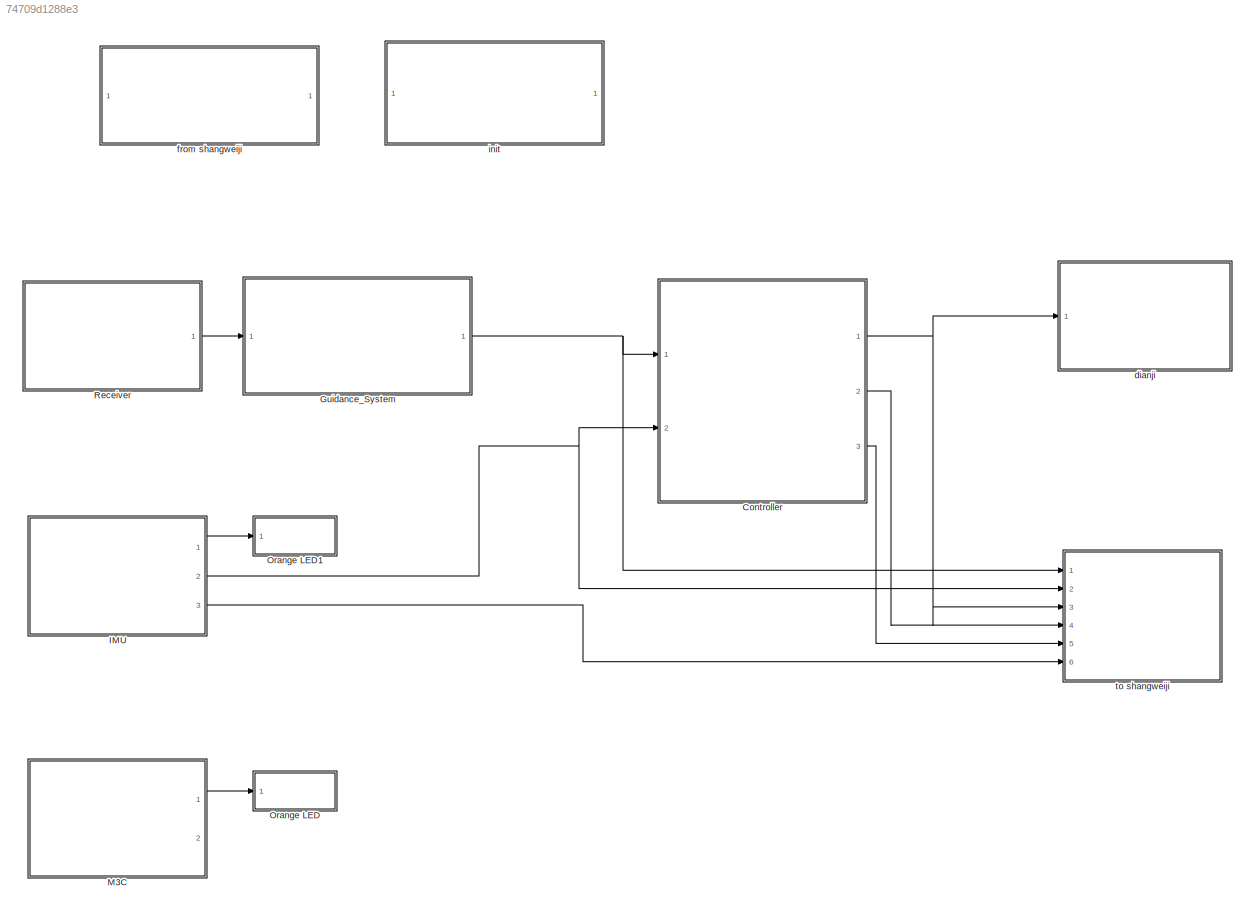
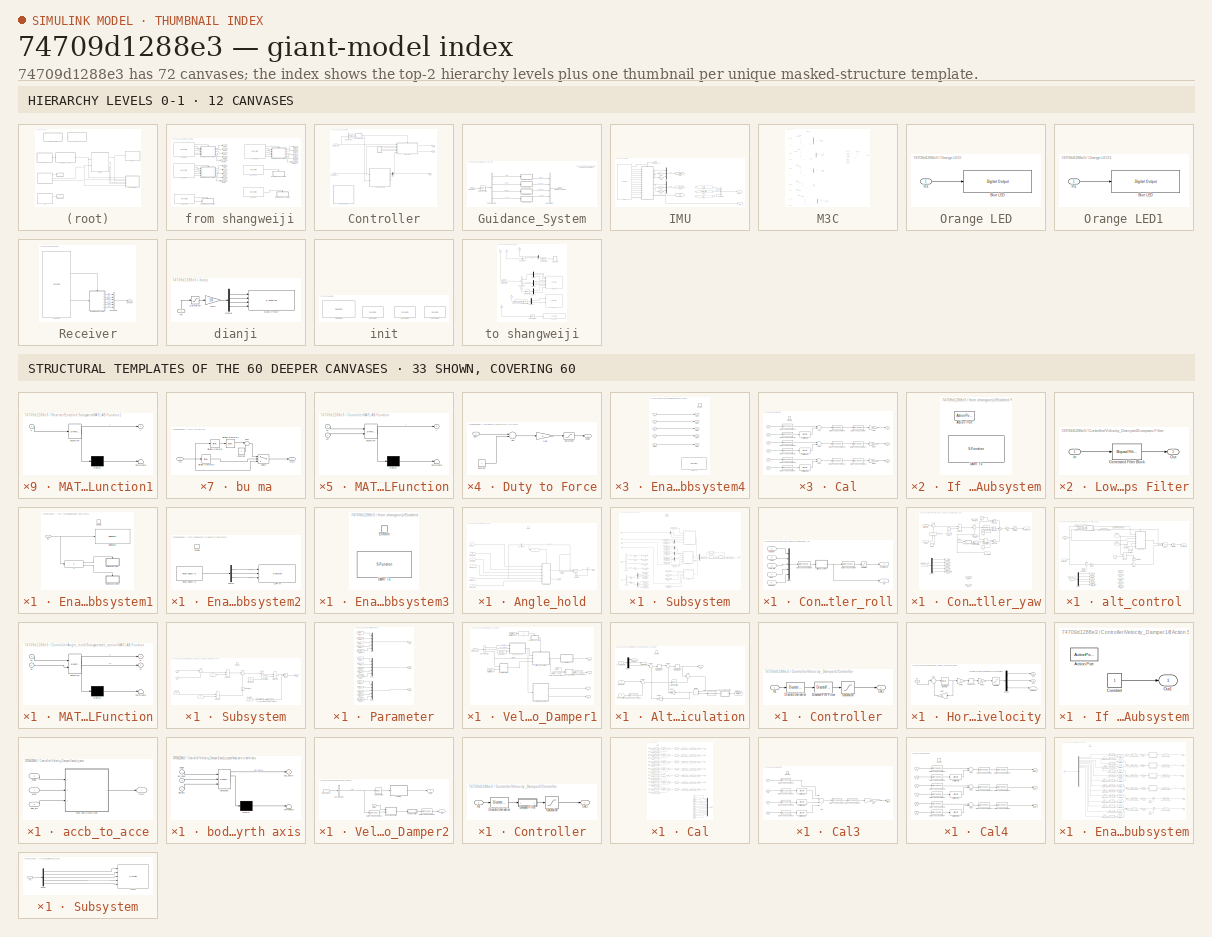
[diagram: thumbnail index - top-2 hierarchy levels (12 canvases) + 33 structural-template representatives of the remaining 60 canvases]
MODEL slx_74709d1288e3
KIND model
CONFIG PreLoadFcn = waijung.modelPreload; % Required for working with Waijung Blockset. Do not remove.
BLOCK [SubSystem]  from shangweiji
  Ports = []
  RequestExecContextInheritance = off
BLOCK [SubSystem]  from shangweiji/Enabled Subsystem1
  Ports = [1, 0, 1]
  RequestExecContextInheritance = off
  TreatAsAtomicUnit = on
BLOCK [Reference]  from shangweiji/Enabled Subsystem1/Digital Output  REF=stm32f4_io_lib/Digital Output
  Ports = [1]
  SourceBlock = stm32f4_io_lib/Digital Output
  SourceType = stm32f4_digital_output
  bitbandingstr = #define fromshangweijiEnabledSubsystem1DigitalOutput_C2 Peripheral_BB(GPIOC->ODR, 2)  /* Output pin */
  blockid = fromshangweijiEnabledSubsystem1DigitalOutput
  cinputportlabel = In1, In2
  coutputportlabel = 0
  enablecustomportlabel = off
  globalinit = off
  pinstr = GPIO_Pin_2
  port = C
  porttype = Push Pull
  porttypestr = PP
  sampletime = 1
  sampletimestr = 1
  speed = 100
  use_bitband = on
  use_pin0 = off
  use_pin1 = off
  use_pin10 = off
  use_pin11 = off
  use_pin12 = off
  use_pin13 = off
  use_pin14 = off
  use_pin15 = off
  use_pin2 = on
  use_pin3 = off
  use_pin4 = off
  use_pin5 = off
  use_pin6 = off
  use_pin7 = off
  use_pin8 = off
  use_pin9 = off
  usedpinarray = [0  0  1  0  0  0  0  0  0  0  0  0  0  0  0  0]
BLOCK [EnablePort]  from shangweiji/Enabled Subsystem1/Enable
  Ports = []
BLOCK [If]  from shangweiji/Enabled Subsystem1/If
  Ports = [1, 2]
BLOCK [SubSystem]  from shangweiji/Enabled Subsystem1/If Action Subsystem
  Ports = [0, 0, 0, 0, 0, 0, 0, 1]
  RequestExecContextInheritance = off
  TreatAsAtomicUnit = on
BLOCK [ActionPort]  from shangweiji/Enabled Subsystem1/If Action Subsystem/Action Port
  ActionType = then
BLOCK [S-Function]  from shangweiji/Enabled Subsystem1/If Action Subsystem/UART Tx
  EnableBusSupport = off
  FunctionName = stm32f4_usart
  Parameters = configuration,uartmodule,transfer,baudrate,inputtype,outputtype,confstr,binheaderarray,binterminatorarray,asciiheader,asciiterminator,bindatalength,packetmode,varname,sampletime,sampletimestr,blockid  <repeated x27 — deduplicated; at blocks: UART Tx, UART Rx, UART Rx1, UART Rx2, UART Rx3, UART Rx4, UART Rx5, angle, Height, Magnetism, accel, omega, UART Setup, UART Setup1, UART Setup2, UART Tx1, +1 more>
  Ports = []
  Priority = 1
BLOCK [SubSystem]  from shangweiji/Enabled Subsystem1/If Action Subsystem1
  Ports = [0, 0, 0, 0, 0, 0, 0, 1]
  RequestExecContextInheritance = off
  TreatAsAtomicUnit = on
BLOCK [ActionPort]  from shangweiji/Enabled Subsystem1/If Action Subsystem1/Action Port
  ActionType = else
BLOCK [S-Function]  from shangweiji/Enabled Subsystem1/If Action Subsystem1/UART Tx
  EnableBusSupport = off
  FunctionName = stm32f4_usart
  Ports = []
  Priority = 1
BLOCK [Inport]  from shangweiji/Enabled Subsystem1/In1
  IconDisplay = Port number
  OutDataTypeStr = uint32
BLOCK [SubSystem]  from shangweiji/Enabled Subsystem2
  Ports = [0, 0, 1]
  RequestExecContextInheritance = off
  TreatAsAtomicUnit = on
BLOCK [Demux]  from shangweiji/Enabled Subsystem2/Demux
  DisplayOption = bar
  Outputs = 3
  Ports = [1, 3]
BLOCK [EnablePort]  from shangweiji/Enabled Subsystem2/Enable
  Ports = []
BLOCK [Reference]  from shangweiji/Enabled Subsystem2/Read Unique ID  REF=stm32f4_device_config_lib/Read Unique ID
  Ports = [0, 1]
  SourceBlock = stm32f4_device_config_lib/Read Unique ID
  SourceType = stm32f4_uidread
  blockid = fromshangweijiEnabledSubsystem2ReadUniqueID
  sampletime = inf
  sampletimestr = 1
BLOCK [S-Function]  from shangweiji/Enabled Subsystem2/UART Tx
  EnableBusSupport = off
  FunctionName = stm32f4_usart
  Ports = [3]
  Priority = 1
BLOCK [SubSystem]  from shangweiji/Enabled Subsystem3
  Ports = [0, 0, 1]
  RequestExecContextInheritance = off
  TreatAsAtomicUnit = on
BLOCK [EnablePort]  from shangweiji/Enabled Subsystem3/Enable
  Ports = []
BLOCK [S-Function]  from shangweiji/Enabled Subsystem3/UART Tx
  EnableBusSupport = off
  FunctionName = stm32f4_usart
  Ports = []
  Priority = 1
BLOCK [SubSystem]  from shangweiji/Enabled Subsystem4
  Ports = [5, 5, 1]
  RequestExecContextInheritance = off
  TreatAsAtomicUnit = on
BLOCK [EnablePort]  from shangweiji/Enabled Subsystem4/Enable
  Ports = []
BLOCK [Outport]  from shangweiji/Enabled Subsystem4/Out1
  IconDisplay = Port number
BLOCK [Outport]  from shangweiji/Enabled Subsystem4/Out2
  IconDisplay = Port number
  Port = 2
BLOCK [Outport]  from shangweiji/Enabled Subsystem4/Out3
  IconDisplay = Port number
  Port = 3
BLOCK [Outport]  from shangweiji/Enabled Subsystem4/Out4
  IconDisplay = Port number
  Port = 4
BLOCK [Outport]  from shangweiji/Enabled Subsystem4/Out5
  IconDisplay = Port number
  Port = 5
BLOCK [Inport]  from shangweiji/Enabled Subsystem4/P
  IconDisplay = Port number
BLOCK [S-Function]  from shangweiji/Enabled Subsystem4/UART Tx
  EnableBusSupport = off
  FunctionName = stm32f4_usart
  Ports = []
  Priority = 1
BLOCK [Inport]  from shangweiji/Enabled Subsystem4/nD
  IconDisplay = Port number
  Port = 4
BLOCK [Inport]  from shangweiji/Enabled Subsystem4/nI
  IconDisplay = Port number
  Port = 3
BLOCK [Inport]  from shangweiji/Enabled Subsystem4/nP
  IconDisplay = Port number
  Port = 2
BLOCK [Inport]  from shangweiji/Enabled Subsystem4/status
  IconDisplay = Port number
  Port = 5
BLOCK [SubSystem]  from shangweiji/Enabled Subsystem5
  Ports = [5, 5, 1]
  RequestExecContextInheritance = off
  TreatAsAtomicUnit = on
BLOCK [EnablePort]  from shangweiji/Enabled Subsystem5/Enable
  Ports = []
BLOCK [Outport]  from shangweiji/Enabled Subsystem5/Out1
  IconDisplay = Port number
BLOCK [Outport]  from shangweiji/Enabled Subsystem5/Out2
  IconDisplay = Port number
  Port = 2
BLOCK [Outport]  from shangweiji/Enabled Subsystem5/Out3
  IconDisplay = Port number
  Port = 3
BLOCK [Outport]  from shangweiji/Enabled Subsystem5/Out4
  IconDisplay = Port number
  Port = 4
BLOCK [Outport]  from shangweiji/Enabled Subsystem5/Out5
  IconDisplay = Port number
  Port = 5
BLOCK [Inport]  from shangweiji/Enabled Subsystem5/P
  IconDisplay = Port number
BLOCK [S-Function]  from shangweiji/Enabled Subsystem5/UART Tx
  EnableBusSupport = off
  FunctionName = stm32f4_usart
  Ports = []
  Priority = 1
BLOCK [Inport]  from shangweiji/Enabled Subsystem5/nD
  IconDisplay = Port number
  Port = 4
BLOCK [Inport]  from shangweiji/Enabled Subsystem5/nI
  IconDisplay = Port number
  Port = 3
BLOCK [Inport]  from shangweiji/Enabled Subsystem5/nP
  IconDisplay = Port number
  Port = 2
BLOCK [Inport]  from shangweiji/Enabled Subsystem5/status
  IconDisplay = Port number
  Port = 5
BLOCK [SubSystem]  from shangweiji/Enabled Subsystem6
  Ports = [5, 5, 1]
  RequestExecContextInheritance = off
  TreatAsAtomicUnit = on
BLOCK [EnablePort]  from shangweiji/Enabled Subsystem6/Enable
  Ports = []
BLOCK [Outport]  from shangweiji/Enabled Subsystem6/Out1
  IconDisplay = Port number
BLOCK [Outport]  from shangweiji/Enabled Subsystem6/Out2
  IconDisplay = Port number
  Port = 2
BLOCK [Outport]  from shangweiji/Enabled Subsystem6/Out3
  IconDisplay = Port number
  Port = 3
BLOCK [Outport]  from shangweiji/Enabled Subsystem6/Out4
  IconDisplay = Port number
  Port = 4
BLOCK [Outport]  from shangweiji/Enabled Subsystem6/Out5
  IconDisplay = Port number
  Port = 5
BLOCK [Inport]  from shangweiji/Enabled Subsystem6/P
  IconDisplay = Port number
BLOCK [S-Function]  from shangweiji/Enabled Subsystem6/UART Tx
  EnableBusSupport = off
  FunctionName = stm32f4_usart
  Ports = []
  Priority = 1
BLOCK [Inport]  from shangweiji/Enabled Subsystem6/nD
  IconDisplay = Port number
  Port = 4
BLOCK [Inport]  from shangweiji/Enabled Subsystem6/nI
  IconDisplay = Port number
  Port = 3
BLOCK [Inport]  from shangweiji/Enabled Subsystem6/nP
  IconDisplay = Port number
  Port = 2
BLOCK [Inport]  from shangweiji/Enabled Subsystem6/status
  IconDisplay = Port number
  Port = 5
BLOCK [Goto]  from shangweiji/Goto
  GotoTag = roll_P
  TagVisibility = global
BLOCK [Goto]  from shangweiji/Goto1
  GotoTag = roll_nP
  TagVisibility = global
BLOCK [Goto]  from shangweiji/Goto10
  GotoTag = alt_P
  TagVisibility = global
BLOCK [Goto]  from shangweiji/Goto11
  GotoTag = alt_nP
  TagVisibility = global
BLOCK [Goto]  from shangweiji/Goto12
  GotoTag = alt_nI
  TagVisibility = global
BLOCK [Goto]  from shangweiji/Goto13
  GotoTag = alt_nD
  TagVisibility = global
BLOCK [Goto]  from shangweiji/Goto14
  GotoTag = alt_status
  TagVisibility = global
BLOCK [Goto]  from shangweiji/Goto2
  GotoTag = roll_nI
  TagVisibility = global
BLOCK [Goto]  from shangweiji/Goto3
  GotoTag = roll_nD
  TagVisibility = global
BLOCK [Goto]  from shangweiji/Goto4
  GotoTag = roll_status
  TagVisibility = global
BLOCK [Goto]  from shangweiji/Goto5
  GotoTag = yaw_P
  TagVisibility = global
BLOCK [Goto]  from shangweiji/Goto6
  GotoTag = yaw_nP
  TagVisibility = global
BLOCK [Goto]  from shangweiji/Goto7
  GotoTag = yaw_nI
  TagVisibility = global
BLOCK [Goto]  from shangweiji/Goto8
  GotoTag = yaw_nD
  TagVisibility = global
BLOCK [Goto]  from shangweiji/Goto9
  GotoTag = yaw_status
  TagVisibility = global
BLOCK [S-Function]  from shangweiji/UART Rx
  EnableBusSupport = off
  FunctionName = stm32f4_usart
  Ports = [0, 1]
  Priority = 1
BLOCK [S-Function]  from shangweiji/UART Rx1
  EnableBusSupport = off
  FunctionName = stm32f4_usart
  Ports = [0, 2]
  Priority = 1
BLOCK [S-Function]  from shangweiji/UART Rx2
  EnableBusSupport = off
  FunctionName = stm32f4_usart
  Ports = [0, 1]
  Priority = 1
BLOCK [S-Function]  from shangweiji/UART Rx3
  EnableBusSupport = off
  FunctionName = stm32f4_usart
  Ports = [0, 6]
  Priority = 1
BLOCK [S-Function]  from shangweiji/UART Rx4
  EnableBusSupport = off
  FunctionName = stm32f4_usart
  Ports = [0, 6]
  Priority = 1
BLOCK [S-Function]  from shangweiji/UART Rx5
  EnableBusSupport = off
  FunctionName = stm32f4_usart
  Ports = [0, 6]
  Priority = 1
BLOCK [SubSystem] Controller
  Ports = [2, 3]
  RTWFcnNameOpts = Use subsystem name
  RTWFileNameOpts = Use subsystem name
  RTWSystemCode = Reusable function
  RequestExecContextInheritance = off
  SystemSampleTime = 0.005
BLOCK [SubSystem] Controller/Angle_hold
  Ports = [6, 2, 1]
  RTWFcnNameOpts = Use subsystem name
  RTWSystemCode = Reusable function
  RequestExecContextInheritance = off
BLOCK [BusSelector] Controller/Angle_hold/Bus Selector
  OutputSignals = thrust/CH3
  Ports = [1, 1]
BLOCK [Constant] Controller/Angle_hold/Constant1
  OutDataTypeStr = single
  Value = [1;1;1;1]
BLOCK [EnablePort] Controller/Angle_hold/Enable
  Ports = []
BLOCK [Gain] Controller/Angle_hold/Gain
  Gain = [1;1;1;1]
  Multiplication = Matrix(K*u)
  OutDataTypeStr = Inherit: Inherit via internal rule
  ParamDataTypeStr = Inherit: Inherit via internal rule
  SaturateOnIntegerOverflow = off
BLOCK [Inport] Controller/Angle_hold/Guidance_in
  IconDisplay = Port number
BLOCK [If] Controller/Angle_hold/If
  IfExpression = u1 > 0.2
  Ports = [1, 2]
BLOCK [Outport] Controller/Angle_hold/Out1
  IconDisplay = Port number
BLOCK [Outport] Controller/Angle_hold/Out2
  IconDisplay = Port number
  Port = 2
BLOCK [Inport] Controller/Angle_hold/Signal_back
  IconDisplay = Port number
  Port = 2
BLOCK [SubSystem] Controller/Angle_hold/Subsystem
  Ports = [6, 2, 0, 0, 0, 0, 0, 1]
  RequestExecContextInheritance = off
BLOCK [ActionPort] Controller/Angle_hold/Subsystem/Action Port
  ActionType = then
BLOCK [BusSelector] Controller/Angle_hold/Subsystem/Bus Selector
  OutputSignals = roll/CH1,pitch/CH2,thrust/CH3,yaw/CH4
  Ports = [1, 4]
BLOCK [BusSelector] Controller/Angle_hold/Subsystem/Bus Selector1
  OutputSignals = Angle,Angle_rate
  Ports = [1, 2]
BLOCK [SubSystem] Controller/Angle_hold/Subsystem/Controller_roll
  Ports = [5, 2]
  RequestExecContextInheritance = off
BLOCK [Inport] Controller/Angle_hold/Subsystem/Controller_roll/Angle
  IconDisplay = Port number
  Port = 2
BLOCK [Inport] Controller/Angle_hold/Subsystem/Controller_roll/Angle_rate
  IconDisplay = Port number
  Port = 3
BLOCK [Outport] Controller/Angle_hold/Subsystem/Controller_roll/ControlSignal
  IconDisplay = Port number
BLOCK [DataTypeConversion] Controller/Angle_hold/Subsystem/Controller_roll/Data Type Conversion
  OutDataTypeStr = single
  RndMeth = Floor
  SaturateOnIntegerOverflow = off
BLOCK [DataTypeConversion] Controller/Angle_hold/Subsystem/Controller_roll/Data Type Conversion8
  OutDataTypeStr = double
  RndMeth = Floor
  SaturateOnIntegerOverflow = off
BLOCK [Inport] Controller/Angle_hold/Subsystem/Controller_roll/Instruction
  IconDisplay = Port number
BLOCK [Mux] Controller/Angle_hold/Subsystem/Controller_roll/Mux1
  DisplayOption = bar
  Inputs = 5
  Ports = [5, 1]
BLOCK [Saturate] Controller/Angle_hold/Subsystem/Controller_roll/Saturation
  InputPortMap = u0
  LowerLimit = -0.8
  Ports = [1, 1]
  UpperLimit = 0.8
BLOCK [SubSystem] Controller/Angle_hold/Subsystem/Controller_roll/attitude_control
  ErrorFcn = Stateflow.Translate.translate
  PermitHierarchicalResolution = ExplicitOnly
  Ports = [1, 1]
  RequestExecContextInheritance = off
  SFBlockType = MATLAB Function
  TreatAsAtomicUnit = on
BLOCK [Demux] Controller/Angle_hold/Subsystem/Controller_roll/attitude_control/ Demux 
  Outputs = 1
  Ports = [1, 1]
BLOCK [S-Function] Controller/Angle_hold/Subsystem/Controller_roll/attitude_control/ SFunction 
  EnableBusSupport = on
  FunctionName = sf_sfun
  PortCounts = [1 2]
  Ports = [1, 2]
  Tag = Stateflow S-Function huamo 11
BLOCK [Terminator] Controller/Angle_hold/Subsystem/Controller_roll/attitude_control/ Terminator 
BLOCK [Inport] Controller/Angle_hold/Subsystem/Controller_roll/attitude_control/in
  IconDisplay = Port number
BLOCK [Outport] Controller/Angle_hold/Subsystem/Controller_roll/attitude_control/out
  IconDisplay = Port number
BLOCK [Inport] Controller/Angle_hold/Subsystem/Controller_roll/parameter
  IconDisplay = Port number
  Port = 5
BLOCK [Outport] Controller/Angle_hold/Subsystem/Controller_roll/sig
  IconDisplay = Port number
  Port = 2
BLOCK [Inport] Controller/Angle_hold/Subsystem/Controller_roll/thrust
  IconDisplay = Port number
  Port = 4
BLOCK [SubSystem] Controller/Angle_hold/Subsystem/Controller_yaw
  Ports = [5, 1]
  RequestExecContextInheritance = off
BLOCK [Inport] Controller/Angle_hold/Subsystem/Controller_yaw/Angle
  IconDisplay = Port number
  Port = 2
BLOCK [Inport] Controller/Angle_hold/Subsystem/Controller_yaw/AngularRate
  IconDisplay = Port number
  Port = 3
BLOCK [Outport] Controller/Angle_hold/Subsystem/Controller_yaw/ControlSignal
  IconDisplay = Port number
BLOCK [DataTypeConversion] Controller/Angle_hold/Subsystem/Controller_yaw/Data Type Conversion
  OutDataTypeStr = single
  RndMeth = Floor
  SaturateOnIntegerOverflow = off
BLOCK [Demux] Controller/Angle_hold/Subsystem/Controller_yaw/Demux
  DisplayOption = bar
  Outputs = 5
  Ports = [1, 5]
BLOCK [Reference] Controller/Angle_hold/Subsystem/Controller_yaw/Discrete Derivative  REF=simulink/Discrete/Discrete Derivative
  DoSatur = off
  ICPrevScaledInput = 0.01
  InputProcessing = Inherited
  LockScale = off
  OutDataType = fixdt(1, 16)
  OutDataTypeStr = Inherit: Inherit via internal rule
  OutMax = []
  OutMin = []
  OutScaling = 2^-10
  OutputDataTypeScalingMode = Inherit via internal rule
  Ports = [1, 1]
  RndMeth = Floor
  SourceBlock = simulink/Discrete/Discrete Derivative
  SourceType = Discrete Derivative
  gainval = 1.0
BLOCK [DiscreteIntegrator] Controller/Angle_hold/Subsystem/Controller_yaw/Discrete-Time Integrator1
  ExternalReset = level
  ICPrevOutput = DiscIntNeverNeededParam
  ICPrevScaledInput = DiscIntNeverNeededParam
  LimitOutput = on
  LowerSaturationLimit = -2
  Ports = [2, 1]
  SampleTime = -1
  UpperSaturationLimit = 2
BLOCK [From] Controller/Angle_hold/Subsystem/Controller_yaw/From
  Commented = on
  GotoTag = status_yaw
BLOCK [From] Controller/Angle_hold/Subsystem/Controller_yaw/From1
  Commented = on
  GotoTag = P_yaw
BLOCK [From] Controller/Angle_hold/Subsystem/Controller_yaw/From2
  Commented = on
  GotoTag = nP_yaw
BLOCK [From] Controller/Angle_hold/Subsystem/Controller_yaw/From5
  Commented = on
  GotoTag = nD_yaw
BLOCK [From] Controller/Angle_hold/Subsystem/Controller_yaw/From6
  Commented = on
  GotoTag = nI_yaw
BLOCK [Gain] Controller/Angle_hold/Subsystem/Controller_yaw/Gain
  Gain = 2.00576E-2
  Multiplication = Matrix(u*K)
  OutDataTypeStr = single
  ParamDataTypeStr = Inherit: Inherit via internal rule
  SaturateOnIntegerOverflow = off
BLOCK [Goto] Controller/Angle_hold/Subsystem/Controller_yaw/Goto
  GotoTag = P_yaw
BLOCK [Goto] Controller/Angle_hold/Subsystem/Controller_yaw/Goto1
  GotoTag = nP_yaw
BLOCK [Goto] Controller/Angle_hold/Subsystem/Controller_yaw/Goto2
  GotoTag = nI_yaw
BLOCK [Goto] Controller/Angle_hold/Subsystem/Controller_yaw/Goto3
  GotoTag = nD_yaw
BLOCK [Goto] Controller/Angle_hold/Subsystem/Controller_yaw/Goto4
  GotoTag = status_yaw
BLOCK [Inport] Controller/Angle_hold/Subsystem/Controller_yaw/Instruction
  IconDisplay = Port number
BLOCK [SubSystem] Controller/Angle_hold/Subsystem/Controller_yaw/MATLAB Function
  ErrorFcn = Stateflow.Translate.translate
  PermitHierarchicalResolution = ExplicitOnly
  Ports = [2, 1]
  RequestExecContextInheritance = off
  SFBlockType = MATLAB Function
  TreatAsAtomicUnit = on
BLOCK [Demux] Controller/Angle_hold/Subsystem/Controller_yaw/MATLAB Function/ Demux 
  Outputs = 1
  Ports = [1, 1]
BLOCK [S-Function] Controller/Angle_hold/Subsystem/Controller_yaw/MATLAB Function/ SFunction 
  EnableBusSupport = on
  FunctionName = sf_sfun
  PortCounts = [2 2]
  Ports = [2, 2]
  Tag = Stateflow S-Function huamo 6
BLOCK [Terminator] Controller/Angle_hold/Subsystem/Controller_yaw/MATLAB Function/ Terminator 
BLOCK [Inport] Controller/Angle_hold/Subsystem/Controller_yaw/MATLAB Function/u1
  IconDisplay = Port number
BLOCK [Inport] Controller/Angle_hold/Subsystem/Controller_yaw/MATLAB Function/u2
  IconDisplay = Port number
  Port = 2
BLOCK [Outport] Controller/Angle_hold/Subsystem/Controller_yaw/MATLAB Function/y
  IconDisplay = Port number
BLOCK [Constant] Controller/Angle_hold/Subsystem/Controller_yaw/P
  OutDataTypeStr = single
  Value = 2
BLOCK [Product] Controller/Angle_hold/Subsystem/Controller_yaw/Product1
  InputSameDT = off
  OutDataTypeStr = Inherit: Inherit via internal rule
  Ports = [2, 1]
  RndMeth = Floor
  SaturateOnIntegerOverflow = off
BLOCK [Product] Controller/Angle_hold/Subsystem/Controller_yaw/Product3
  InputSameDT = off
  OutDataTypeStr = Inherit: Inherit via internal rule
  Ports = [2, 1]
  RndMeth = Floor
  SaturateOnIntegerOverflow = off
BLOCK [Product] Controller/Angle_hold/Subsystem/Controller_yaw/Product4
  InputSameDT = off
  OutDataTypeStr = Inherit: Inherit via internal rule
  Ports = [2, 1]
  RndMeth = Floor
  SaturateOnIntegerOverflow = off
BLOCK [Product] Controller/Angle_hold/Subsystem/Controller_yaw/Product5
  InputSameDT = off
  OutDataTypeStr = Inherit: Inherit via internal rule
  Ports = [2, 1]
  RndMeth = Floor
  SaturateOnIntegerOverflow = off
BLOCK [Product] Controller/Angle_hold/Subsystem/Controller_yaw/Product6
  InputSameDT = off
  OutDataTypeStr = Inherit: Inherit via internal rule
  Ports = [2, 1]
  RndMeth = Floor
  SaturateOnIntegerOverflow = off
BLOCK [Saturate] Controller/Angle_hold/Subsystem/Controller_yaw/Saturation
  InputPortMap = u0
  LowerLimit = -0.2
  Ports = [1, 1]
  UpperLimit = 0.2
BLOCK [Sum] Controller/Angle_hold/Subsystem/Controller_yaw/Sum
  IconShape = round
  InputSameDT = off
  Inputs = |+-
  OutDataTypeStr = Inherit: Inherit via internal rule
  Ports = [2, 1]
  SaturateOnIntegerOverflow = off
BLOCK [Sum] Controller/Angle_hold/Subsystem/Controller_yaw/Sum1
  IconShape = round
  InputSameDT = off
  Inputs = |+-
  OutDataTypeStr = double
  Ports = [2, 1]
  SaturateOnIntegerOverflow = off
BLOCK [Sum] Controller/Angle_hold/Subsystem/Controller_yaw/Sum2
  IconShape = round
  InputSameDT = off
  Inputs = +++
  OutDataTypeStr = Inherit: Inherit via internal rule
  Ports = [3, 1]
  SaturateOnIntegerOverflow = off
BLOCK [Constant] Controller/Angle_hold/Subsystem/Controller_yaw/nD
  OutDataTypeStr = single
  Value = 0.2
BLOCK [Constant] Controller/Angle_hold/Subsystem/Controller_yaw/nI
  OutDataTypeStr = single
  Value = 0
BLOCK [Constant] Controller/Angle_hold/Subsystem/Controller_yaw/nP
  OutDataTypeStr = single
  Value = 10
BLOCK [Inport] Controller/Angle_hold/Subsystem/Controller_yaw/parameter_yaw
  IconDisplay = Port number
  Port = 4
BLOCK [Constant] Controller/Angle_hold/Subsystem/Controller_yaw/status
  OutDataTypeStr = single
BLOCK [Inport] Controller/Angle_hold/Subsystem/Controller_yaw/thrust
  IconDisplay = Port number
  Port = 5
BLOCK [DataTypeConversion] Controller/Angle_hold/Subsystem/Data Type Conversion
  OutDataTypeStr = double
  RndMeth = Floor
  SaturateOnIntegerOverflow = off
BLOCK [DataTypeConversion] Controller/Angle_hold/Subsystem/Data Type Conversion1
  OutDataTypeStr = single
  RndMeth = Floor
  SaturateOnIntegerOverflow = off
BLOCK [Demux] Controller/Angle_hold/Subsystem/Demux
  DisplayOption = bar
  Outputs = 2
  Ports = [1, 2]
BLOCK [Demux] Controller/Angle_hold/Subsystem/Demux1
  DisplayOption = bar
  Outputs = 3
  Ports = [1, 3]
BLOCK [Demux] Controller/Angle_hold/Subsystem/Demux3
  DisplayOption = bar
  Outputs = 3
  Ports = [1, 3]
BLOCK [From] Controller/Angle_hold/Subsystem/From
  GotoTag = CH1_SIGNAL
BLOCK [From] Controller/Angle_hold/Subsystem/From1
  GotoTag = Omega_Yaw
BLOCK [From] Controller/Angle_hold/Subsystem/From10
  GotoTag = Angle_Row
BLOCK [From] Controller/Angle_hold/Subsystem/From11
  GotoTag = Omega_Yaw
BLOCK [From] Controller/Angle_hold/Subsystem/From13
  GotoTag = CH2_SIGNAL
BLOCK [From] Controller/Angle_hold/Subsystem/From14
  GotoTag = Angle_Pitch
BLOCK [From] Controller/Angle_hold/Subsystem/From15
  GotoTag = Omega_Pitch
BLOCK [From] Controller/Angle_hold/Subsystem/From2
  GotoTag = CH4_SIGNAL
BLOCK [From] Controller/Angle_hold/Subsystem/From3
  GotoTag = Angle_Yaw
BLOCK [From] Controller/Angle_hold/Subsystem/From4
  GotoTag = Angle_Row
BLOCK [From] Controller/Angle_hold/Subsystem/From5
  GotoTag = Omega_Row
BLOCK [From] Controller/Angle_hold/Subsystem/From6
  GotoTag = CH3_SIGNAL
BLOCK [From] Controller/Angle_hold/Subsystem/From7
  GotoTag = CH3_SIGNAL
BLOCK [From] Controller/Angle_hold/Subsystem/From8
  GotoTag = CH3_SIGNAL
BLOCK [From] Controller/Angle_hold/Subsystem/From9
  GotoTag = Angle_Pitch
BLOCK [Gain] Controller/Angle_hold/Subsystem/Gain2
  Gain = 1/57.3
  OutDataTypeStr = Inherit: Inherit via internal rule
  ParamDataTypeStr = Inherit: Inherit via internal rule
  SaturateOnIntegerOverflow = off
BLOCK [Gain] Controller/Angle_hold/Subsystem/Gain3
  Gain = 1/57.3
  OutDataTypeStr = Inherit: Inherit via internal rule
  ParamDataTypeStr = Inherit: Inherit via internal rule
  SaturateOnIntegerOverflow = off
BLOCK [Gain] Controller/Angle_hold/Subsystem/Gain4
  Gain = 1/57.3
  OutDataTypeStr = Inherit: Inherit via internal rule
  ParamDataTypeStr = Inherit: Inherit via internal rule
  SaturateOnIntegerOverflow = off
BLOCK [Gain] Controller/Angle_hold/Subsystem/Gain5
  Gain = 1/57.3
  OutDataTypeStr = Inherit: Inherit via internal rule
  ParamDataTypeStr = Inherit: Inherit via internal rule
  SaturateOnIntegerOverflow = off
BLOCK [Gain] Controller/Angle_hold/Subsystem/Gain6
  Gain = 1/57.3
  OutDataTypeStr = Inherit: Inherit via internal rule
  ParamDataTypeStr = Inherit: Inherit via internal rule
  SaturateOnIntegerOverflow = off
BLOCK [Goto] Controller/Angle_hold/Subsystem/Goto1
  GotoTag = CH2_SIGNAL
BLOCK [Goto] Controller/Angle_hold/Subsystem/Goto12
  GotoTag = Angle_Yaw
BLOCK [Goto] Controller/Angle_hold/Subsystem/Goto2
  GotoTag = CH1_SIGNAL
BLOCK [Goto] Controller/Angle_hold/Subsystem/Goto3
  GotoTag = CH4_SIGNAL
BLOCK [Goto] Controller/Angle_hold/Subsystem/Goto4
  GotoTag = CH3_SIGNAL
BLOCK [Goto] Controller/Angle_hold/Subsystem/Goto5
  GotoTag = Angle_Row
BLOCK [Goto] Controller/Angle_hold/Subsystem/Goto6
  GotoTag = Angle_Pitch
BLOCK [Goto] Controller/Angle_hold/Subsystem/Goto7
  GotoTag = Omega_Row
BLOCK [Goto] Controller/Angle_hold/Subsystem/Goto8
  GotoTag = Omega_Pitch
BLOCK [Goto] Controller/Angle_hold/Subsystem/Goto9
  GotoTag = Omega_Yaw
BLOCK [Inport] Controller/Angle_hold/Subsystem/In2
  IconDisplay = Port number
BLOCK [Inport] Controller/Angle_hold/Subsystem/In3
  IconDisplay = Port number
  Port = 2
BLOCK [Inport] Controller/Angle_hold/Subsystem/In4
  IconDisplay = Port number
  Port = 3
BLOCK [Inport] Controller/Angle_hold/Subsystem/In5
  IconDisplay = Port number
  Port = 4
BLOCK [Inport] Controller/Angle_hold/Subsystem/In6
  IconDisplay = Port number
  Port = 5
BLOCK [Inport] Controller/Angle_hold/Subsystem/In7
  IconDisplay = Port number
  Port = 6
BLOCK [SubSystem] Controller/Angle_hold/Subsystem/MATLAB Function
  ErrorFcn = Stateflow.Translate.translate
  PermitHierarchicalResolution = ExplicitOnly
  Ports = [1, 1]
  RequestExecContextInheritance = off
  SFBlockType = MATLAB Function
  TreatAsAtomicUnit = on
BLOCK [Demux] Controller/Angle_hold/Subsystem/MATLAB Function/ Demux 
  Outputs = 1
  Ports = [1, 1]
BLOCK [S-Function] Controller/Angle_hold/Subsystem/MATLAB Function/ SFunction 
  EnableBusSupport = on
  FunctionName = sf_sfun
  PortCounts = [1 2]
  Ports = [1, 2]
  Tag = Stateflow S-Function huamo 3
BLOCK [Terminator] Controller/Angle_hold/Subsystem/MATLAB Function/ Terminator 
BLOCK [Inport] Controller/Angle_hold/Subsystem/MATLAB Function/in
  IconDisplay = Port number
BLOCK [Outport] Controller/Angle_hold/Subsystem/MATLAB Function/out
  IconDisplay = Port number
BLOCK [SubSystem] Controller/Angle_hold/Subsystem/MATLAB Function1
  ErrorFcn = Stateflow.Translate.translate
  PermitHierarchicalResolution = ExplicitOnly
  Ports = [1, 1]
  RequestExecContextInheritance = off
  SFBlockType = MATLAB Function
  TreatAsAtomicUnit = on
BLOCK [Demux] Controller/Angle_hold/Subsystem/MATLAB Function1/ Demux 
  Outputs = 1
  Ports = [1, 1]
BLOCK [S-Function] Controller/Angle_hold/Subsystem/MATLAB Function1/ SFunction 
  EnableBusSupport = on
  FunctionName = sf_sfun
  PortCounts = [1 2]
  Ports = [1, 2]
  Tag = Stateflow S-Function huamo 5
BLOCK [Terminator] Controller/Angle_hold/Subsystem/MATLAB Function1/ Terminator 
BLOCK [Inport] Controller/Angle_hold/Subsystem/MATLAB Function1/in
  IconDisplay = Port number
BLOCK [Outport] Controller/Angle_hold/Subsystem/MATLAB Function1/out
  IconDisplay = Port number
BLOCK [SubSystem] Controller/Angle_hold/Subsystem/MATLAB Function2
  ErrorFcn = Stateflow.Translate.translate
  PermitHierarchicalResolution = ExplicitOnly
  Ports = [1, 1]
  RequestExecContextInheritance = off
  SFBlockType = MATLAB Function
  TreatAsAtomicUnit = on
BLOCK [Demux] Controller/Angle_hold/Subsystem/MATLAB Function2/ Demux 
  Outputs = 1
  Ports = [1, 1]
BLOCK [S-Function] Controller/Angle_hold/Subsystem/MATLAB Function2/ SFunction 
  EnableBusSupport = on
  FunctionName = sf_sfun
  PortCounts = [1 2]
  Ports = [1, 2]
  Tag = Stateflow S-Function huamo 9
BLOCK [Terminator] Controller/Angle_hold/Subsystem/MATLAB Function2/ Terminator 
BLOCK [Inport] Controller/Angle_hold/Subsystem/MATLAB Function2/in
  IconDisplay = Port number
BLOCK [Outport] Controller/Angle_hold/Subsystem/MATLAB Function2/out
  IconDisplay = Port number
BLOCK [Mux] Controller/Angle_hold/Subsystem/Mux
  DisplayOption = bar
  Inputs = 2
  Ports = [2, 1]
BLOCK [Mux] Controller/Angle_hold/Subsystem/Mux1
  DisplayOption = bar
  Inputs = 2
  Ports = [2, 1]
BLOCK [Mux] Controller/Angle_hold/Subsystem/Mux2
  DisplayOption = bar
  Inputs = 3
  Ports = [3, 1]
BLOCK [Mux] Controller/Angle_hold/Subsystem/Mux3
  DisplayOption = bar
  Inputs = 3
  Ports = [3, 1]
BLOCK [Mux] Controller/Angle_hold/Subsystem/Mux4
  DisplayOption = bar
  Inputs = 2
  Ports = [2, 1]
BLOCK [Outport] Controller/Angle_hold/Subsystem/Out1
  IconDisplay = Port number
BLOCK [Outport] Controller/Angle_hold/Subsystem/Out2
  IconDisplay = Port number
  Port = 2
BLOCK [Saturate] Controller/Angle_hold/Subsystem/Saturation
  InputPortMap = u0
  LowerLimit = 8.0569e+03
  Ports = [1, 1]
  UpperLimit = 5.1564e+05
BLOCK [Sum] Controller/Angle_hold/Subsystem/Sum1
  IconShape = round
  InputSameDT = off
  Inputs = ++|
  OutDataTypeStr = Inherit: Inherit via internal rule
  Ports = [2, 1]
  SaturateOnIntegerOverflow = off
BLOCK [SubSystem] Controller/Angle_hold/Subsystem/alt_control
  Ports = [5, 1]
  RequestExecContextInheritance = off
BLOCK [Constant] Controller/Angle_hold/Subsystem/alt_control/Constant1
  OutDataTypeStr = single
  Value = 0.129
BLOCK [Constant] Controller/Angle_hold/Subsystem/alt_control/Constant2
  OutDataTypeStr = single
  Value = 1.2
BLOCK [Constant] Controller/Angle_hold/Subsystem/alt_control/Constant3
  OutDataTypeStr = single
  Value = 3.5
BLOCK [Outport] Controller/Angle_hold/Subsystem/alt_control/ControlSignal
  IconDisplay = Port number
BLOCK [Constant] Controller/Angle_hold/Subsystem/alt_control/D
  OutDataTypeStr = single
  Value = 0.6
BLOCK [DataTypeConversion] Controller/Angle_hold/Subsystem/alt_control/Data Type Conversion
  OutDataTypeStr = single
  RndMeth = Floor
  SaturateOnIntegerOverflow = off
BLOCK [DataTypeConversion] Controller/Angle_hold/Subsystem/alt_control/Data Type Conversion1
  OutDataTypeStr = single
  RndMeth = Floor
  SaturateOnIntegerOverflow = off
BLOCK [DataTypeConversion] Controller/Angle_hold/Subsystem/alt_control/Data Type Conversion2
  OutDataTypeStr = double
  RndMeth = Floor
  SaturateOnIntegerOverflow = off
BLOCK [DataTypeConversion] Controller/Angle_hold/Subsystem/alt_control/Data Type Conversion3
  OutDataTypeStr = double
  RndMeth = Floor
  SaturateOnIntegerOverflow = off
BLOCK [Demux] Controller/Angle_hold/Subsystem/alt_control/Demux
  DisplayOption = bar
  Outputs = 5
  Ports = [1, 5]
BLOCK [From] Controller/Angle_hold/Subsystem/alt_control/From
  Commented = on
  GotoTag = status_alt
BLOCK [From] Controller/Angle_hold/Subsystem/alt_control/From1
  Commented = on
  GotoTag = P_alt
BLOCK [From] Controller/Angle_hold/Subsystem/alt_control/From2
  Commented = on
  GotoTag = nP_alt
BLOCK [From] Controller/Angle_hold/Subsystem/alt_control/From3
  Commented = on
  GotoTag = nD_alt
BLOCK [From] Controller/Angle_hold/Subsystem/alt_control/From4
  Commented = on
  GotoTag = nI_alt
BLOCK [Gain] Controller/Angle_hold/Subsystem/alt_control/Gain7
  Gain = 16
  OutDataTypeStr = Inherit: Inherit via internal rule
  ParamDataTypeStr = Inherit: Inherit via internal rule
  SaturateOnIntegerOverflow = off
BLOCK [Goto] Controller/Angle_hold/Subsystem/alt_control/Goto
  GotoTag = P_alt
BLOCK [Goto] Controller/Angle_hold/Subsystem/alt_control/Goto1
  GotoTag = nP_alt
BLOCK [Goto] Controller/Angle_hold/Subsystem/alt_control/Goto2
  GotoTag = nI_alt
BLOCK [Goto] Controller/Angle_hold/Subsystem/alt_control/Goto3
  GotoTag = nD_alt
BLOCK [Goto] Controller/Angle_hold/Subsystem/alt_control/Goto4
  GotoTag = status_alt
BLOCK [Inport] Controller/Angle_hold/Subsystem/alt_control/Instruction
  IconDisplay = Port number
BLOCK [SubSystem] Controller/Angle_hold/Subsystem/alt_control/MATLAB Function
  ErrorFcn = Stateflow.Translate.translate
  PermitHierarchicalResolution = ExplicitOnly
  Ports = [2, 2]
  RequestExecContextInheritance = off
  SFBlockType = MATLAB Function
  TreatAsAtomicUnit = on
BLOCK [Demux] Controller/Angle_hold/Subsystem/alt_control/MATLAB Function/ Demux 
  Outputs = 1
  Ports = [1, 1]
BLOCK [S-Function] Controller/Angle_hold/Subsystem/alt_control/MATLAB Function/ SFunction 
  EnableBusSupport = on
  FunctionName = sf_sfun
  PortCounts = [2 3]
  Ports = [2, 3]
  Tag = Stateflow S-Function huamo 7
BLOCK [Terminator] Controller/Angle_hold/Subsystem/alt_control/MATLAB Function/ Terminator 
BLOCK [Inport] Controller/Angle_hold/Subsystem/alt_control/MATLAB Function/u1
  IconDisplay = Port number
BLOCK [Inport] Controller/Angle_hold/Subsystem/alt_control/MATLAB Function/u2
  IconDisplay = Port number
  Port = 2
BLOCK [Outport] Controller/Angle_hold/Subsystem/alt_control/MATLAB Function/y1
  IconDisplay = Port number
BLOCK [Outport] Controller/Angle_hold/Subsystem/alt_control/MATLAB Function/y2
  IconDisplay = Port number
  Port = 2
BLOCK [Product] Controller/Angle_hold/Subsystem/alt_control/Product2
  InputSameDT = off
  OutDataTypeStr = Inherit: Inherit via internal rule
  Ports = [2, 1]
  RndMeth = Floor
  SaturateOnIntegerOverflow = off
BLOCK [Saturate] Controller/Angle_hold/Subsystem/alt_control/Saturation
  InputPortMap = u0
  LowerLimit = 0.272
  Ports = [1, 1]
  UpperLimit = 10
BLOCK [Saturate] Controller/Angle_hold/Subsystem/alt_control/Saturation1
  InputPortMap = u0
  LowerLimit = -1
  Ports = [1, 1]
  UpperLimit = 1
BLOCK [SubSystem] Controller/Angle_hold/Subsystem/alt_control/Subsystem
  Ports = [6, 1, 1]
  RequestExecContextInheritance = off
BLOCK [Constant] Controller/Angle_hold/Subsystem/alt_control/Subsystem/Constant
  OutDataTypeStr = single
  Value = 10
BLOCK [Constant] Controller/Angle_hold/Subsystem/alt_control/Subsystem/Constant1
  OutDataTypeStr = single
  Value = 0.43
BLOCK [Inport] Controller/Angle_hold/Subsystem/alt_control/Subsystem/D
  IconDisplay = Port number
  Port = 5
BLOCK [DataTypeConversion] Controller/Angle_hold/Subsystem/alt_control/Subsystem/Data Type Conversion1
  OutDataTypeStr = single
  RndMeth = Floor
  SaturateOnIntegerOverflow = off
BLOCK [Product] Controller/Angle_hold/Subsystem/alt_control/Subsystem/Divide
  InputSameDT = off
  Inputs = */
  OutDataTypeStr = single
  Ports = [2, 1]
  RndMeth = Floor
  SaturateOnIntegerOverflow = off
BLOCK [EnablePort] Controller/Angle_hold/Subsystem/alt_control/Subsystem/Enable
  Ports = []
BLOCK [Fcn] Controller/Angle_hold/Subsystem/alt_control/Subsystem/Fcn
  Expr = cos(u(1))*cos(u(2))
BLOCK [Inport] Controller/Angle_hold/Subsystem/alt_control/Subsystem/In1
  IconDisplay = Port number
BLOCK [Outport] Controller/Angle_hold/Subsystem/alt_control/Subsystem/Out1
  IconDisplay = Port number
BLOCK [Inport] Controller/Angle_hold/Subsystem/alt_control/Subsystem/P
  IconDisplay = Port number
  Port = 6
BLOCK [Product] Controller/Angle_hold/Subsystem/alt_control/Subsystem/Product1
  InputSameDT = off
  OutDataTypeStr = Inherit: Inherit via internal rule
  Ports = [2, 1]
  RndMeth = Floor
  SaturateOnIntegerOverflow = off
BLOCK [Product] Controller/Angle_hold/Subsystem/alt_control/Subsystem/Product2
  InputSameDT = off
  OutDataTypeStr = Inherit: Inherit via internal rule
  Ports = [2, 1]
  RndMeth = Floor
  SaturateOnIntegerOverflow = off
BLOCK [Product] Controller/Angle_hold/Subsystem/alt_control/Subsystem/Product4
  InputSameDT = off
  OutDataTypeStr = Inherit: Inherit via internal rule
  Ports = [2, 1]
  RndMeth = Floor
  SaturateOnIntegerOverflow = off
BLOCK [Saturate] Controller/Angle_hold/Subsystem/alt_control/Subsystem/Saturation1
  InputPortMap = u0
  LowerLimit = -1.5
  Ports = [1, 1]
  UpperLimit = 1.5
BLOCK [Sum] Controller/Angle_hold/Subsystem/alt_control/Subsystem/Sum
  IconShape = round
  InputSameDT = off
  Inputs = |+-
  OutDataTypeStr = Inherit: Inherit via internal rule
  Ports = [2, 1]
  SaturateOnIntegerOverflow = off
BLOCK [Sum] Controller/Angle_hold/Subsystem/alt_control/Subsystem/Sum1
  IconShape = round
  InputSameDT = off
  Inputs = |+-
  OutDataTypeStr = double
  Ports = [2, 1]
  SaturateOnIntegerOverflow = off
BLOCK [Sum] Controller/Angle_hold/Subsystem/alt_control/Subsystem/Sum2
  IconShape = round
  InputSameDT = off
  Inputs = |++
  OutDataTypeStr = Inherit: Inherit via internal rule
  Ports = [2, 1]
  SaturateOnIntegerOverflow = off
BLOCK [Inport] Controller/Angle_hold/Subsystem/alt_control/Subsystem/alt
  IconDisplay = Port number
  Port = 3
BLOCK [Inport] Controller/Angle_hold/Subsystem/alt_control/Subsystem/alt_Rate
  IconDisplay = Port number
  Port = 2
BLOCK [Inport] Controller/Angle_hold/Subsystem/alt_control/Subsystem/roll_pitch
  IconDisplay = Port number
  Port = 4
BLOCK [Sum] Controller/Angle_hold/Subsystem/alt_control/Sum1
  IconShape = round
  InputSameDT = off
  Inputs = -+|
  OutDataTypeStr = single
  Ports = [2, 1]
  SaturateOnIntegerOverflow = off
BLOCK [Sum] Controller/Angle_hold/Subsystem/alt_control/Sum4
  IconShape = round
  InputSameDT = off
  Inputs = |+-
  OutDataTypeStr = Inherit: Inherit via internal rule
  Ports = [2, 1]
  SaturateOnIntegerOverflow = off
BLOCK [Switch] Controller/Angle_hold/Subsystem/alt_control/Switch
  Criteria = u2 > Threshold
  InputSameDT = off
  SaturateOnIntegerOverflow = off
BLOCK [Inport] Controller/Angle_hold/Subsystem/alt_control/alt
  IconDisplay = Port number
  Port = 2
BLOCK [Inport] Controller/Angle_hold/Subsystem/alt_control/alt_Rate
  IconDisplay = Port number
  Port = 3
BLOCK [Inport] Controller/Angle_hold/Subsystem/alt_control/parameter_yaw
  IconDisplay = Port number
  Port = 4
BLOCK [Inport] Controller/Angle_hold/Subsystem/alt_control/roll_pitch
  IconDisplay = Port number
  Port = 5
BLOCK [Sum] Controller/Angle_hold/Sum
  IconShape = round
  InputSameDT = off
  Inputs = |++
  OutDataTypeStr = Inherit: Inherit via internal rule
  Ports = [2, 1]
  SaturateOnIntegerOverflow = off
BLOCK [Switch] Controller/Angle_hold/Switch
  Criteria = u2 > Threshold
  InputSameDT = off
  SaturateOnIntegerOverflow = off
  Threshold = 0.2
BLOCK [Inport] Controller/Angle_hold/alt_back
  IconDisplay = Port number
  Port = 6
BLOCK [Inport] Controller/Angle_hold/parameter_alt
  IconDisplay = Port number
  Port = 5
BLOCK [Inport] Controller/Angle_hold/parameter_roll
  IconDisplay = Port number
  Port = 3
BLOCK [Inport] Controller/Angle_hold/parameter_yaw
  IconDisplay = Port number
  Port = 4
BLOCK [BusSelector] Controller/Bus Selector
  OutputSignals = thrust/CH3,yaw/CH4
  Ports = [1, 2]
BLOCK [Inport] Controller/Guidance_in
  IconDisplay = Port number
BLOCK [SubSystem] Controller/MATLAB Function
  ErrorFcn = Stateflow.Translate.translate
  PermitHierarchicalResolution = ExplicitOnly
  Ports = [2, 1]
  RequestExecContextInheritance = off
  SFBlockType = MATLAB Function
  TreatAsAtomicUnit = on
BLOCK [Demux] Controller/MATLAB Function/ Demux 
  Outputs = 1
  Ports = [1, 1]
BLOCK [S-Function] Controller/MATLAB Function/ SFunction 
  EnableBusSupport = on
  FunctionName = sf_sfun
  PortCounts = [2 2]
  Ports = [2, 2]
  Tag = Stateflow S-Function huamo 10
BLOCK [Terminator] Controller/MATLAB Function/ Terminator 
BLOCK [Inport] Controller/MATLAB Function/u1
  IconDisplay = Port number
BLOCK [Inport] Controller/MATLAB Function/u2
  IconDisplay = Port number
  Port = 2
BLOCK [Outport] Controller/MATLAB Function/y
  IconDisplay = Port number
BLOCK [Mux] Controller/Mux
  DisplayOption = bar
  Inputs = 2
  Ports = [2, 1]
BLOCK [Outport] Controller/Out1
  IconDisplay = Port number
  Port = 2
BLOCK [Outport] Controller/Out2
  IconDisplay = Port number
BLOCK [Outport] Controller/Out3
  IconDisplay = Port number
  Port = 3
BLOCK [SubSystem] Controller/Parameter
  Ports = [0, 3]
  RequestExecContextInheritance = off
BLOCK [From] Controller/Parameter/From
  GotoTag = roll_P
  TagVisibility = global
BLOCK [From] Controller/Parameter/From1
  GotoTag = roll_nP
  TagVisibility = global
BLOCK [From] Controller/Parameter/From10
  GotoTag = alt_P
  TagVisibility = global
BLOCK [From] Controller/Parameter/From11
  GotoTag = alt_nP
  TagVisibility = global
BLOCK [From] Controller/Parameter/From12
  GotoTag = alt_nD
  TagVisibility = global
BLOCK [From] Controller/Parameter/From13
  GotoTag = alt_nI
  TagVisibility = global
BLOCK [From] Controller/Parameter/From14
  GotoTag = alt_status
  TagVisibility = global
BLOCK [From] Controller/Parameter/From2
  GotoTag = roll_nD
  TagVisibility = global
BLOCK [From] Controller/Parameter/From3
  GotoTag = roll_nI
  TagVisibility = global
BLOCK [From] Controller/Parameter/From4
  GotoTag = roll_status
  TagVisibility = global
BLOCK [From] Controller/Parameter/From5
  GotoTag = yaw_P
  TagVisibility = global
BLOCK [From] Controller/Parameter/From6
  GotoTag = yaw_nP
  TagVisibility = global
BLOCK [From] Controller/Parameter/From7
  GotoTag = yaw_nD
  TagVisibility = global
BLOCK [From] Controller/Parameter/From8
  GotoTag = yaw_nI
  TagVisibility = global
BLOCK [From] Controller/Parameter/From9
  GotoTag = yaw_status
  TagVisibility = global
BLOCK [Mux] Controller/Parameter/Mux
  DisplayOption = bar
  Inputs = 5
  Ports = [5, 1]
BLOCK [Mux] Controller/Parameter/Mux1
  DisplayOption = bar
  Inputs = 5
  Ports = [5, 1]
BLOCK [Mux] Controller/Parameter/Mux2
  DisplayOption = bar
  Inputs = 5
  Ports = [5, 1]
BLOCK [Outport] Controller/Parameter/Out1
  IconDisplay = Port number
BLOCK [Outport] Controller/Parameter/Out2
  IconDisplay = Port number
  Port = 2
BLOCK [Outport] Controller/Parameter/Out3
  IconDisplay = Port number
  Port = 3
BLOCK [Inport] Controller/Signal_back
  IconDisplay = Port number
  Port = 2
BLOCK [SubSystem] Controller/Velocity_Damper1
  Commented = on
  Ports = [2, 4]
  RequestExecContextInheritance = off
  TreatAsAtomicUnit = on
BLOCK [Outport] Controller/Velocity_Damper1/Alt
  IconDisplay = Port number
BLOCK [Outport] Controller/Velocity_Damper1/Alt_rate
  IconDisplay = Port number
  Port = 2
BLOCK [SubSystem] Controller/Velocity_Damper1/Altitude_calculation
  Ports = [3, 1, 1]
  RequestExecContextInheritance = off
BLOCK [Inport] Controller/Velocity_Damper1/Altitude_calculation/Accelerometer
  IconDisplay = Port number
BLOCK [Inport] Controller/Velocity_Damper1/Altitude_calculation/Barometer
  IconDisplay = Port number
  Port = 2
BLOCK [Inport] Controller/Velocity_Damper1/Altitude_calculation/Basic_altitude
  IconDisplay = Port number
  Port = 3
BLOCK [DataTypeConversion] Controller/Velocity_Damper1/Altitude_calculation/Data Type Conversion
  OutDataTypeStr = single
  RndMeth = Floor
  SaturateOnIntegerOverflow = off
BLOCK [DataTypeConversion] Controller/Velocity_Damper1/Altitude_calculation/Data Type Conversion1
  OutDataTypeStr = single
  RndMeth = Floor
  SaturateOnIntegerOverflow = off
BLOCK [Demux] Controller/Velocity_Damper1/Altitude_calculation/Demux
  DisplayOption = bar
  Outputs = 3
  Ports = [1, 3]
BLOCK [DigitalClock] Controller/Velocity_Damper1/Altitude_calculation/Digital Clock
  SampleTime = -1
BLOCK [DiscreteIntegrator] Controller/Velocity_Damper1/Altitude_calculation/Discrete-Time Integrator
  ICPrevOutput = DiscIntNeverNeededParam
  ICPrevScaledInput = DiscIntNeverNeededParam
  Ports = [1, 1]
  SampleTime = -1
  gainval = 1
BLOCK [DiscreteIntegrator] Controller/Velocity_Damper1/Altitude_calculation/Discrete-Time Integrator1
  ICPrevOutput = DiscIntNeverNeededParam
  ICPrevScaledInput = DiscIntNeverNeededParam
  Ports = [1, 1]
  SampleTime = -1
BLOCK [Product] Controller/Velocity_Damper1/Altitude_calculation/Divide
  InputSameDT = off
  Inputs = **
  OutDataTypeStr = Inherit: Inherit via internal rule
  Ports = [2, 1]
  RndMeth = Floor
  SaturateOnIntegerOverflow = off
BLOCK [EnablePort] Controller/Velocity_Damper1/Altitude_calculation/Enable
  Ports = []
BLOCK [Gain] Controller/Velocity_Damper1/Altitude_calculation/Gain2
  Gain = 0.45
  OutDataTypeStr = Inherit: Inherit via internal rule
  ParamDataTypeStr = Inherit: Inherit via internal rule
  SaturateOnIntegerOverflow = off
BLOCK [Gain] Controller/Velocity_Damper1/Altitude_calculation/Gain3
  Gain = 0.65
  OutDataTypeStr = Inherit: Inherit via internal rule
  ParamDataTypeStr = Inherit: Inherit via internal rule
  SaturateOnIntegerOverflow = off
BLOCK [SubSystem] Controller/Velocity_Damper1/Altitude_calculation/MATLAB Function
  ErrorFcn = Stateflow.Translate.translate
  PermitHierarchicalResolution = ExplicitOnly
  Ports = [1, 1]
  RequestExecContextInheritance = off
  SFBlockType = MATLAB Function
  TreatAsAtomicUnit = on
BLOCK [Demux] Controller/Velocity_Damper1/Altitude_calculation/MATLAB Function/ Demux 
  Outputs = 1
  Ports = [1, 1]
BLOCK [S-Function] Controller/Velocity_Damper1/Altitude_calculation/MATLAB Function/ SFunction 
  EnableBusSupport = on
  FunctionName = sf_sfun
  PortCounts = [1 2]
  Ports = [1, 2]
  Tag = Stateflow S-Function huamo 12
BLOCK [Terminator] Controller/Velocity_Damper1/Altitude_calculation/MATLAB Function/ Terminator 
BLOCK [Inport] Controller/Velocity_Damper1/Altitude_calculation/MATLAB Function/u
  IconDisplay = Port number
BLOCK [Outport] Controller/Velocity_Damper1/Altitude_calculation/MATLAB Function/y
  IconDisplay = Port number
BLOCK [Outport] Controller/Velocity_Damper1/Altitude_calculation/Out1
  IconDisplay = Port number
BLOCK [RateTransition] Controller/Velocity_Damper1/Altitude_calculation/Rate Transition
BLOCK [Sum] Controller/Velocity_Damper1/Altitude_calculation/Sum1
  IconShape = round
  InputSameDT = off
  Inputs = |+-
  OutDataTypeStr = Inherit: Inherit via internal rule
  Ports = [2, 1]
  SaturateOnIntegerOverflow = off
BLOCK [Sum] Controller/Velocity_Damper1/Altitude_calculation/Sum2
  IconShape = round
  InputSameDT = off
  Inputs = |+-
  OutDataTypeStr = Inherit: Inherit via internal rule
  Ports = [2, 1]
  SaturateOnIntegerOverflow = off
BLOCK [Sum] Controller/Velocity_Damper1/Altitude_calculation/Sum3
  IconShape = round
  InputSameDT = off
  Inputs = |+-
  OutDataTypeStr = Inherit: Inherit via internal rule
  Ports = [2, 1]
  SaturateOnIntegerOverflow = off
BLOCK [Sum] Controller/Velocity_Damper1/Altitude_calculation/Sum4
  IconShape = round
  InputSameDT = off
  Inputs = |+-
  OutDataTypeStr = Inherit: Inherit via internal rule
  Ports = [2, 1]
  SaturateOnIntegerOverflow = off
BLOCK [Terminator] Controller/Velocity_Damper1/Altitude_calculation/Terminator
BLOCK [Terminator] Controller/Velocity_Damper1/Altitude_calculation/Terminator1
BLOCK [BusSelector] Controller/Velocity_Damper1/Bus Selector1
  OutputSignals = angle,acceleration,altitude
  Ports = [1, 3]
BLOCK [Constant] Controller/Velocity_Damper1/Constant
  Value = [0 0 9.9]
BLOCK [SubSystem] Controller/Velocity_Damper1/Controller
  Ports = [1, 1]
  RequestExecContextInheritance = off
BLOCK [Reference] Controller/Velocity_Damper1/Controller/Discrete Derivative  REF=simulink/Discrete/Discrete Derivative
  DoSatur = off
  ICPrevScaledInput = 0.0
  InputProcessing = Inherited
  LockScale = off
  OutDataType = fixdt(1, 16)
  OutDataTypeStr = Inherit: Inherit via internal rule
  OutMax = []
  OutMin = []
  OutScaling = 2^-10
  OutputDataTypeScalingMode = Inherit via internal rule
  Ports = [1, 1]
  RndMeth = Floor
  SourceBlock = simulink/Discrete/Discrete Derivative
  SourceType = Discrete Derivative
  gainval = 1.0
BLOCK [DiscreteFir] Controller/Velocity_Damper1/Controller/Discrete FIR Filter
  Ports = [1, 1]
  SampleTime = 0.05
BLOCK [Inport] Controller/Velocity_Damper1/Controller/In1
  IconDisplay = Port number
BLOCK [Outport] Controller/Velocity_Damper1/Controller/Out1
  IconDisplay = Port number
BLOCK [Saturate] Controller/Velocity_Damper1/Controller/Saturation
  InputPortMap = u0
  LowerLimit = -2
  Ports = [1, 1]
  UpperLimit = 2
BLOCK [DataTypeConversion] Controller/Velocity_Damper1/Data Type Conversion1
  OutDataTypeStr = single
  RndMeth = Floor
  SaturateOnIntegerOverflow = off
BLOCK [DataTypeConversion] Controller/Velocity_Damper1/Data Type Conversion3
  OutDataTypeStr = double
  RndMeth = Floor
  SaturateOnIntegerOverflow = off
BLOCK [DigitalClock] Controller/Velocity_Damper1/Digital Clock
  SampleTime = -1
BLOCK [DigitalClock] Controller/Velocity_Damper1/Digital Clock1
  SampleTime = -1
BLOCK [SubSystem] Controller/Velocity_Damper1/Get_initial_altitude
  ErrorFcn = Stateflow.Translate.translate
  PermitHierarchicalResolution = ExplicitOnly
  Ports = [2, 1]
  RequestExecContextInheritance = off
  SFBlockType = MATLAB Function
  TreatAsAtomicUnit = on
BLOCK [Demux] Controller/Velocity_Damper1/Get_initial_altitude/ Demux 
  Outputs = 1
  Ports = [1, 1]
BLOCK [S-Function] Controller/Velocity_Damper1/Get_initial_altitude/ SFunction 
  EnableBusSupport = on
  FunctionName = sf_sfun
  PortCounts = [2 2]
  Ports = [2, 2]
  Tag = Stateflow S-Function huamo 14
BLOCK [Terminator] Controller/Velocity_Damper1/Get_initial_altitude/ Terminator 
BLOCK [Inport] Controller/Velocity_Damper1/Get_initial_altitude/h
  IconDisplay = Port number
BLOCK [Inport] Controller/Velocity_Damper1/Get_initial_altitude/t
  IconDisplay = Port number
  Port = 2
BLOCK [Outport] Controller/Velocity_Damper1/Get_initial_altitude/y
  IconDisplay = Port number
BLOCK [SubSystem] Controller/Velocity_Damper1/Horizontal_velocity
  Ports = [1, 2]
  RequestExecContextInheritance = off
BLOCK [DeadZone] Controller/Velocity_Damper1/Horizontal_velocity/Dead Zone
  LowerValue = -0.15
  UpperValue = 0.15
BLOCK [Demux] Controller/Velocity_Damper1/Horizontal_velocity/Demux
  DisplayOption = bar
  Outputs = 3
  Ports = [1, 3]
BLOCK [DiscreteIntegrator] Controller/Velocity_Damper1/Horizontal_velocity/Discrete-Time Integrator
  ICPrevOutput = DiscIntNeverNeededParam
  ICPrevScaledInput = DiscIntNeverNeededParam
  Ports = [1, 1]
  SampleTime = -1
BLOCK [Gain] Controller/Velocity_Damper1/Horizontal_velocity/Gain
  Gain = 0.5
  OutDataTypeStr = Inherit: Inherit via internal rule
  ParamDataTypeStr = Inherit: Inherit via internal rule
  SaturateOnIntegerOverflow = off
BLOCK [Gain] Controller/Velocity_Damper1/Horizontal_velocity/Gain2
  Gain = 20
  OutDataTypeStr = Inherit: Inherit via internal rule
  ParamDataTypeStr = Inherit: Inherit via internal rule
  SaturateOnIntegerOverflow = off
BLOCK [Gain] Controller/Velocity_Damper1/Horizontal_velocity/Gain4
  Gain = -1
  OutDataTypeStr = Inherit: Inherit via internal rule
  ParamDataTypeStr = Inherit: Inherit via internal rule
  SaturateOnIntegerOverflow = off
BLOCK [Inport] Controller/Velocity_Damper1/Horizontal_velocity/In1
  IconDisplay = Port number
BLOCK [Outport] Controller/Velocity_Damper1/Horizontal_velocity/Out1
  IconDisplay = Port number
BLOCK [Outport] Controller/Velocity_Damper1/Horizontal_velocity/Out2
  IconDisplay = Port number
  Port = 2
BLOCK [Saturate] Controller/Velocity_Damper1/Horizontal_velocity/Saturation
  InputPortMap = u0
  LowerLimit = -20
  Ports = [1, 1]
  UpperLimit = 20
BLOCK [Sum] Controller/Velocity_Damper1/Horizontal_velocity/Sum
  IconShape = round
  InputSameDT = off
  Inputs = |+-
  OutDataTypeStr = Inherit: Inherit via internal rule
  Ports = [2, 1]
  SaturateOnIntegerOverflow = off
BLOCK [Terminator] Controller/Velocity_Damper1/Horizontal_velocity/Terminator
BLOCK [If] Controller/Velocity_Damper1/If
  IfExpression = u1 > 2
  Ports = [1, 1]
  ShowElse = off
BLOCK [SubSystem] Controller/Velocity_Damper1/If Action Subsystem
  Ports = [0, 1, 0, 0, 0, 0, 0, 1]
  RequestExecContextInheritance = off
  TreatAsAtomicUnit = on
BLOCK [ActionPort] Controller/Velocity_Damper1/If Action Subsystem/Action Port
  ActionType = then
BLOCK [Constant] Controller/Velocity_Damper1/If Action Subsystem/Constant
BLOCK [Outport] Controller/Velocity_Damper1/If Action Subsystem/Out1
  IconDisplay = Port number
  InitialOutput = 0
BLOCK [SubSystem] Controller/Velocity_Damper1/MATLAB Function
  ErrorFcn = Stateflow.Translate.translate
  PermitHierarchicalResolution = ExplicitOnly
  Ports = [2, 1]
  RequestExecContextInheritance = off
  SFBlockType = MATLAB Function
  TreatAsAtomicUnit = on
BLOCK [Demux] Controller/Velocity_Damper1/MATLAB Function/ Demux 
  Outputs = 1
  Ports = [1, 1]
BLOCK [S-Function] Controller/Velocity_Damper1/MATLAB Function/ SFunction 
  EnableBusSupport = on
  FunctionName = sf_sfun
  PortCounts = [2 2]
  Ports = [2, 2]
  Tag = Stateflow S-Function huamo 15
BLOCK [Terminator] Controller/Velocity_Damper1/MATLAB Function/ Terminator 
BLOCK [Inport] Controller/Velocity_Damper1/MATLAB Function/u1
  IconDisplay = Port number
BLOCK [Inport] Controller/Velocity_Damper1/MATLAB Function/u2
  IconDisplay = Port number
  Port = 2
BLOCK [Outport] Controller/Velocity_Damper1/MATLAB Function/y
  IconDisplay = Port number
BLOCK [Outport] Controller/Velocity_Damper1/M_x
  IconDisplay = Port number
  Port = 4
BLOCK [Outport] Controller/Velocity_Damper1/M_y
  IconDisplay = Port number
  Port = 3
BLOCK [Inport] Controller/Velocity_Damper1/Signal_back
  IconDisplay = Port number
BLOCK [SubSystem] Controller/Velocity_Damper1/accb_to_acce
  Ports = [3, 1]
  RequestExecContextInheritance = off
  TreatAsAtomicUnit = on
BLOCK [Outport] Controller/Velocity_Damper1/accb_to_acce/Out1
  IconDisplay = Port number
BLOCK [Inport] Controller/Velocity_Damper1/accb_to_acce/accel
  IconDisplay = Port number
  Port = 2
BLOCK [Inport] Controller/Velocity_Damper1/accb_to_acce/angle
  IconDisplay = Port number
BLOCK [Inport] Controller/Velocity_Damper1/accb_to_acce/bias_acc
  IconDisplay = Port number
  Port = 3
BLOCK [SubSystem] Controller/Velocity_Damper1/accb_to_acce/body axis to earth axis
  ErrorFcn = Stateflow.Translate.translate
  PermitHierarchicalResolution = ExplicitOnly
  Ports = [3, 1]
  RequestExecContextInheritance = off
  SFBlockType = MATLAB Function
  TreatAsAtomicUnit = on
BLOCK [Demux] Controller/Velocity_Damper1/accb_to_acce/body axis to earth axis/ Demux 
  Outputs = 1
  Ports = [1, 1]
BLOCK [S-Function] Controller/Velocity_Damper1/accb_to_acce/body axis to earth axis/ SFunction 
  EnableBusSupport = on
  FunctionName = sf_sfun
  PortCounts = [3 2]
  Ports = [3, 2]
  Tag = Stateflow S-Function huamo 16
BLOCK [Terminator] Controller/Velocity_Damper1/accb_to_acce/body axis to earth axis/ Terminator 
BLOCK [Inport] Controller/Velocity_Damper1/accb_to_acce/body axis to earth axis/acc_body
  IconDisplay = Port number
  Port = 2
BLOCK [Outport] Controller/Velocity_Damper1/accb_to_acce/body axis to earth axis/acc_earth
  IconDisplay = Port number
BLOCK [Inport] Controller/Velocity_Damper1/accb_to_acce/body axis to earth axis/angle
  IconDisplay = Port number
BLOCK [Inport] Controller/Velocity_Damper1/accb_to_acce/body axis to earth axis/bia_acc
  IconDisplay = Port number
  Port = 3
BLOCK [Inport] Controller/Velocity_Damper1/status
  IconDisplay = Port number
  Port = 2
BLOCK [SubSystem] Controller/Velocity_Damper2
  Ports = [2, 2]
  RequestExecContextInheritance = off
  TreatAsAtomicUnit = on
BLOCK [Outport] Controller/Velocity_Damper2/Alt
  IconDisplay = Port number
BLOCK [Outport] Controller/Velocity_Damper2/Alt_rate
  IconDisplay = Port number
  Port = 2
BLOCK [BusSelector] Controller/Velocity_Damper2/Bus Selector1
  OutputSignals = alt
  Ports = [1, 1]
BLOCK [SubSystem] Controller/Velocity_Damper2/Controller
  Ports = [1, 1]
  RequestExecContextInheritance = off
BLOCK [Reference] Controller/Velocity_Damper2/Controller/Discrete Derivative  REF=simulink/Discrete/Discrete Derivative
  DoSatur = off
  ICPrevScaledInput = 0.0
  InputProcessing = Inherited
  LockScale = off
  OutDataType = fixdt(1, 16)
  OutDataTypeStr = Inherit: Inherit via internal rule
  OutMax = []
  OutMin = []
  OutScaling = 2^-10
  OutputDataTypeScalingMode = Inherit via internal rule
  Ports = [1, 1]
  RndMeth = Floor
  SourceBlock = simulink/Discrete/Discrete Derivative
  SourceType = Discrete Derivative
  gainval = 1.0
BLOCK [Inport] Controller/Velocity_Damper2/Controller/In1
  IconDisplay = Port number
BLOCK [SubSystem] Controller/Velocity_Damper2/Controller/Lowpass Filter
  CopyFcn = fdesignblkfcn(gcbh, {'CopyFcn'});
  DialogController = fdesignblkfcn
  InitFcn = fdesignblkfcn(gcbh, {'InitFcn'});
  Ports = [1, 1]
  RequestExecContextInheritance = off
  UserDataPersistent = on
BLOCK [Reference] Controller/Velocity_Damper2/Controller/Lowpass Filter/Generated Filter Block  REF=dsparch4/Biquad Filter
  BiQuadCoeffs = [0.31598662750883372 0.36803820725630498 0.31598662750883377 1 -1.8265775363780477 0.840471451002894]
  CoeffSource = Specify via dialog
  FilterSource = Specify via dialog
  IC = 0
  ICden = 0
  ICnum = 0
  IIRFiltStruct = Direct form II
  InputProcessing = Columns as channels (frame based)
  LockScale = off
  Ports = [1, 1]
  ScaleValueMode = Specify via input port (g)
  ScaleValues = [0.013893755370815749;1]
  SourceBlock = dsparch4/Biquad Filter
  SourceType = Biquad Filter
  Tag = BlockMethodSubSystem
  UserDataPersistent = on
  a0Flag = Warning
  accumFracLength = 30
  accumMode = Same as product output
  accumWordLength = 32
  allowOverrides = on
  denAccumFracLength = 30
  denProdOutputFracLength = 30
  dfiltObjectName = dfilt.df2tsos([1 0.3 0.4],[1 0.1 0.2])
  firstCoeffFracLength = 15
  firstCoeffMode = Same word length as input
  firstCoeffWordLength = 16
  memoryFracLength = 15
  memoryMode = Same as accumulator
  memoryWordLength = 16
  multiplicandFracLength = 30
  multiplicandMode = Same as output
  multiplicandWordLength = 32
  optimizeScaleValues = off
  outputFracLength = 15
  outputMode = Same as accumulator
  outputWordLength = 16
  overflowMode = off
  prodOutputFracLength = 30
  prodOutputMode = Same as input
  prodOutputWordLength = 32
  roundingMode = Floor
  scaleValueFracLength = 14
  secondCoeffFracLength = 15
  secondCoeffMode = Same as numerator
  secondCoeffWordLength = 16
  secondMemoryFracLength = 15
  stageInputFracLength = 15
  stageInputMode = Same as input
  stageInputWordLength = 16
  stageOutputFracLength = 15
  stageOutputMode = Same as section input
  stageOutputWordLength = 16
BLOCK [Inport] Controller/Velocity_Damper2/Controller/Lowpass Filter/In
  IconDisplay = Port number
BLOCK [Outport] Controller/Velocity_Damper2/Controller/Lowpass Filter/Out
  IconDisplay = Port number
BLOCK [Outport] Controller/Velocity_Damper2/Controller/Out1
  IconDisplay = Port number
BLOCK [Saturate] Controller/Velocity_Damper2/Controller/Saturation
  InputPortMap = u0
  LowerLimit = -2
  Ports = [1, 1]
  UpperLimit = 2
BLOCK [DataTypeConversion] Controller/Velocity_Damper2/Data Type Conversion1
  OutDataTypeStr = single
  RndMeth = Floor
  SaturateOnIntegerOverflow = off
BLOCK [DataTypeConversion] Controller/Velocity_Damper2/Data Type Conversion3
  OutDataTypeStr = double
  RndMeth = Floor
  SaturateOnIntegerOverflow = off
BLOCK [SubSystem] Controller/Velocity_Damper2/Lowpass Filter
  CopyFcn = fdesignblkfcn(gcbh, {'CopyFcn'});
  DialogController = fdesignblkfcn
  InitFcn = fdesignblkfcn(gcbh, {'InitFcn'});
  Ports = [1, 1]
  RequestExecContextInheritance = off
  UserDataPersistent = on
BLOCK [Reference] Controller/Velocity_Damper2/Lowpass Filter/Generated Filter Block  REF=dsparch4/Biquad Filter
  BiQuadCoeffs = [0.31598662750883372 0.36803820725630498 0.31598662750883377 1 -1.8265775363780477 0.840471451002894]
  CoeffSource = Specify via dialog
  FilterSource = Specify via dialog
  IC = 0
  ICden = 0
  ICnum = 0
  IIRFiltStruct = Direct form II
  InputProcessing = Columns as channels (frame based)
  LockScale = off
  Ports = [1, 1]
  ScaleValueMode = Specify via input port (g)
  ScaleValues = [0.013893755370815749;1]
  SourceBlock = dsparch4/Biquad Filter
  SourceType = Biquad Filter
  Tag = BlockMethodSubSystem
  UserDataPersistent = on
  a0Flag = Warning
  accumFracLength = 30
  accumMode = Same as product output
  accumWordLength = 32
  allowOverrides = on
  denAccumFracLength = 30
  denProdOutputFracLength = 30
  dfiltObjectName = dfilt.df2tsos([1 0.3 0.4],[1 0.1 0.2])
  firstCoeffFracLength = 15
  firstCoeffMode = Same word length as input
  firstCoeffWordLength = 16
  memoryFracLength = 15
  memoryMode = Same as accumulator
  memoryWordLength = 16
  multiplicandFracLength = 30
  multiplicandMode = Same as output
  multiplicandWordLength = 32
  optimizeScaleValues = off
  outputFracLength = 15
  outputMode = Same as accumulator
  outputWordLength = 16
  overflowMode = off
  prodOutputFracLength = 30
  prodOutputMode = Same as input
  prodOutputWordLength = 32
  roundingMode = Floor
  scaleValueFracLength = 14
  secondCoeffFracLength = 15
  secondCoeffMode = Same as numerator
  secondCoeffWordLength = 16
  secondMemoryFracLength = 15
  stageInputFracLength = 15
  stageInputMode = Same as input
  stageInputWordLength = 16
  stageOutputFracLength = 15
  stageOutputMode = Same as section input
  stageOutputWordLength = 16
BLOCK [Inport] Controller/Velocity_Damper2/Lowpass Filter/In
  IconDisplay = Port number
BLOCK [Outport] Controller/Velocity_Damper2/Lowpass Filter/Out
  IconDisplay = Port number
BLOCK [SubSystem] Controller/Velocity_Damper2/MATLAB Function
  ErrorFcn = Stateflow.Translate.translate
  PermitHierarchicalResolution = ExplicitOnly
  Ports = [2, 1]
  RequestExecContextInheritance = off
  SFBlockType = MATLAB Function
  TreatAsAtomicUnit = on
BLOCK [Demux] Controller/Velocity_Damper2/MATLAB Function/ Demux 
  Outputs = 1
  Ports = [1, 1]
BLOCK [S-Function] Controller/Velocity_Damper2/MATLAB Function/ SFunction 
  EnableBusSupport = on
  FunctionName = sf_sfun
  PortCounts = [2 2]
  Ports = [2, 2]
  Tag = Stateflow S-Function huamo 24
BLOCK [Terminator] Controller/Velocity_Damper2/MATLAB Function/ Terminator 
BLOCK [Inport] Controller/Velocity_Damper2/MATLAB Function/u1
  IconDisplay = Port number
BLOCK [Inport] Controller/Velocity_Damper2/MATLAB Function/u2
  IconDisplay = Port number
  Port = 2
BLOCK [Outport] Controller/Velocity_Damper2/MATLAB Function/y
  IconDisplay = Port number
BLOCK [RateTransition] Controller/Velocity_Damper2/Rate Transition
BLOCK [Inport] Controller/Velocity_Damper2/Signal_back
  IconDisplay = Port number
BLOCK [Inport] Controller/Velocity_Damper2/status
  IconDisplay = Port number
  Port = 2
BLOCK [SubSystem] Guidance_System
  Ports = [1, 1]
  RTWFcnNameOpts = Use subsystem name
  RTWFileNameOpts = Use subsystem name
  RTWSystemCode = Reusable function
  RequestExecContextInheritance = off
  SystemSampleTime = 0.005
  TreatAsAtomicUnit = on
BLOCK [BusCreator] Guidance_System/Bus Creator
  DisplayOption = bar
  Ports = [4, 1]
BLOCK [BusSelector] Guidance_System/Bus Selector1
  OutputSignals = roll,pitch,thrust,yaw
  Ports = [1, 4]
BLOCK [SubSystem] Guidance_System/Duty to Force
  Ports = [1, 1]
  RequestExecContextInheritance = off
BLOCK [Sum] Guidance_System/Duty to Force/Add
  AccumDataTypeStr = Inherit: Same as first input
  InputSameDT = off
  Inputs = +-
  OutDataTypeStr = Inherit: Inherit via internal rule
  Ports = [2, 1]
  SaturateOnIntegerOverflow = off
BLOCK [Constant] Guidance_System/Duty to Force/Constant
  OutDataTypeStr = single
BLOCK [Inport] Guidance_System/Duty to Force/Duty
  IconDisplay = Port number
BLOCK [Gain] Guidance_System/Duty to Force/Gain
  ParamDataTypeStr = Inherit: Inherit via internal rule
  SaturateOnIntegerOverflow = off
BLOCK [Saturate] Guidance_System/Duty to Force/Saturation
  InputPortMap = u0
  LowerLimit = 0
  Ports = [1, 1]
  UpperLimit = 1
BLOCK [Outport] Guidance_System/Duty to Force/angle
  IconDisplay = Port number
BLOCK [SubSystem] Guidance_System/Duty to angle1
  Ports = [1, 1]
  RequestExecContextInheritance = off
BLOCK [Sum] Guidance_System/Duty to angle1/Add
  AccumDataTypeStr = Inherit: Same as first input
  InputSameDT = off
  Inputs = +-
  OutDataTypeStr = Inherit: Inherit via internal rule
  Ports = [2, 1]
  SaturateOnIntegerOverflow = off
BLOCK [Constant] Guidance_System/Duty to angle1/Constant
  OutDataTypeStr = single
  Value = 1.5
BLOCK [Inport] Guidance_System/Duty to angle1/Duty
  IconDisplay = Port number
BLOCK [Gain] Guidance_System/Duty to angle1/Gain
  Gain = -358
  ParamDataTypeStr = Inherit: Inherit via internal rule
  SaturateOnIntegerOverflow = off
BLOCK [Saturate] Guidance_System/Duty to angle1/Saturation
  InputPortMap = u0
  LowerLimit = -180
  Ports = [1, 1]
  UpperLimit = 180
BLOCK [Outport] Guidance_System/Duty to angle1/angle
  IconDisplay = Port number
BLOCK [SubSystem] Guidance_System/Duty to angle2
  Ports = [1, 1]
  RequestExecContextInheritance = off
BLOCK [Sum] Guidance_System/Duty to angle2/Add
  AccumDataTypeStr = Inherit: Same as first input
  InputSameDT = off
  Inputs = +-
  OutDataTypeStr = Inherit: Inherit via internal rule
  Ports = [2, 1]
  SaturateOnIntegerOverflow = off
BLOCK [Constant] Guidance_System/Duty to angle2/Constant
  OutDataTypeStr = single
  Value = 1.5
BLOCK [Inport] Guidance_System/Duty to angle2/Duty
  IconDisplay = Port number
BLOCK [Gain] Guidance_System/Duty to angle2/Gain
  Gain = -40
  ParamDataTypeStr = Inherit: Inherit via internal rule
  SaturateOnIntegerOverflow = off
BLOCK [Saturate] Guidance_System/Duty to angle2/Saturation
  InputPortMap = u0
  LowerLimit = -25
  Ports = [1, 1]
  UpperLimit = 25
BLOCK [Outport] Guidance_System/Duty to angle2/angle
  IconDisplay = Port number
BLOCK [SubSystem] Guidance_System/Duty to angle3
  Ports = [1, 1]
  RequestExecContextInheritance = off
BLOCK [Sum] Guidance_System/Duty to angle3/Add
  AccumDataTypeStr = Inherit: Same as first input
  InputSameDT = off
  Inputs = +-
  OutDataTypeStr = Inherit: Inherit via internal rule
  Ports = [2, 1]
  SaturateOnIntegerOverflow = off
BLOCK [Constant] Guidance_System/Duty to angle3/Constant
  OutDataTypeStr = single
  Value = 1.5
BLOCK [Inport] Guidance_System/Duty to angle3/Duty
  IconDisplay = Port number
BLOCK [Gain] Guidance_System/Duty to angle3/Gain
  Gain = 40
  ParamDataTypeStr = Inherit: Inherit via internal rule
  SaturateOnIntegerOverflow = off
BLOCK [Saturate] Guidance_System/Duty to angle3/Saturation
  InputPortMap = u0
  LowerLimit = -25
  Ports = [1, 1]
  UpperLimit = 25
BLOCK [Outport] Guidance_System/Duty to angle3/angle
  IconDisplay = Port number
BLOCK [Outport] Guidance_System/Guidance output*
  IconDisplay = Port number
BLOCK [RateTransition] Guidance_System/Rate Transition
BLOCK [Inport] Guidance_System/Receiver
  IconDisplay = Port number
  OutDataTypeStr = single
BLOCK [SubSystem] IMU
  Ports = [0, 3]
  RTWFcnNameOpts = Use subsystem name
  RTWFileNameOpts = Use subsystem name
  RTWSystemCode = Reusable function
  RequestExecContextInheritance = off
  SystemSampleTime = 0.005
  TreatAsAtomicUnit = on
BLOCK [Outport] IMU/ANGLE ENABLE
  IconDisplay = Port number
BLOCK [BusCreator] IMU/Bus Creator
  DisplayOption = bar
  Inputs = 3
  Ports = [3, 1]
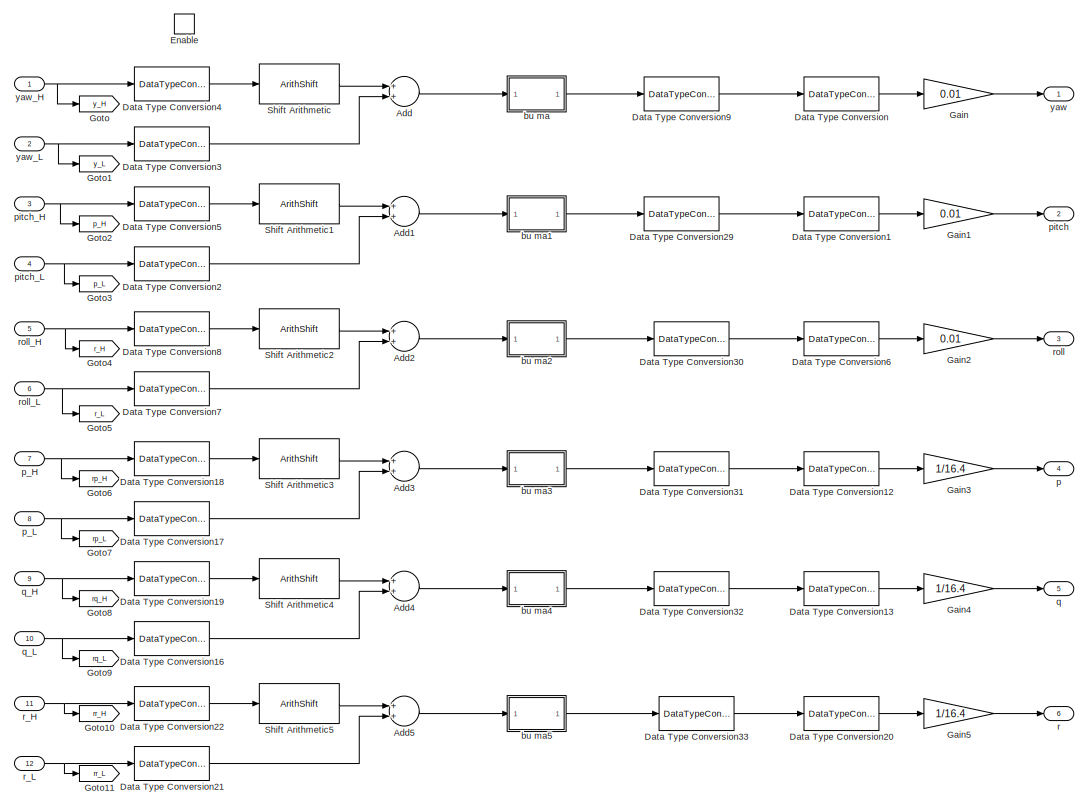
[diagram: IMU/Cal - part 1/2, full width, top band]
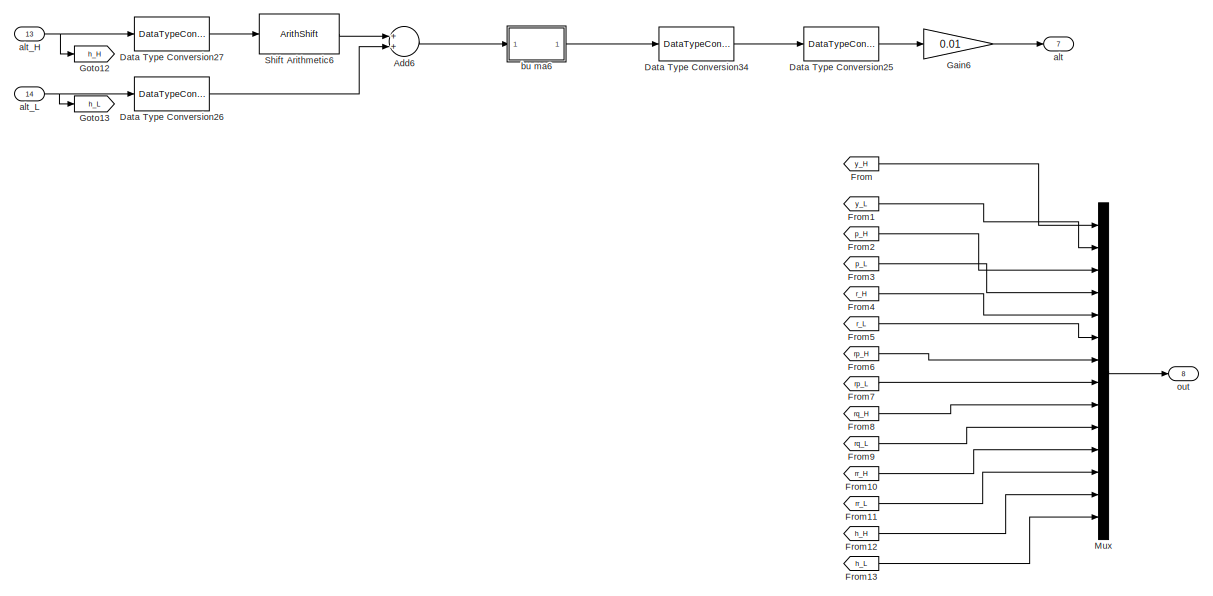
[diagram: IMU/Cal - part 2/2, full width, bottom band]
BLOCK [SubSystem] IMU/Cal
  Ports = [14, 8, 1]
  RequestExecContextInheritance = off
  TreatAsAtomicUnit = on
BLOCK [Sum] IMU/Cal/Add
  AccumDataTypeStr = uint16
  InputSameDT = off
  OutDataTypeStr = Inherit: Inherit via internal rule
  Ports = [2, 1]
  SaturateOnIntegerOverflow = off
BLOCK [Sum] IMU/Cal/Add1
  AccumDataTypeStr = uint16
  InputSameDT = off
  OutDataTypeStr = Inherit: Inherit via internal rule
  Ports = [2, 1]
  SaturateOnIntegerOverflow = off
BLOCK [Sum] IMU/Cal/Add2
  AccumDataTypeStr = uint16
  InputSameDT = off
  OutDataTypeStr = Inherit: Inherit via internal rule
  Ports = [2, 1]
  SaturateOnIntegerOverflow = off
BLOCK [Sum] IMU/Cal/Add3
  AccumDataTypeStr = uint16
  InputSameDT = off
  OutDataTypeStr = Inherit: Inherit via internal rule
  Ports = [2, 1]
  SaturateOnIntegerOverflow = off
BLOCK [Sum] IMU/Cal/Add4
  AccumDataTypeStr = uint16
  InputSameDT = off
  OutDataTypeStr = Inherit: Inherit via internal rule
  Ports = [2, 1]
  SaturateOnIntegerOverflow = off
BLOCK [Sum] IMU/Cal/Add5
  AccumDataTypeStr = uint16
  InputSameDT = off
  OutDataTypeStr = Inherit: Inherit via internal rule
  Ports = [2, 1]
  SaturateOnIntegerOverflow = off
BLOCK [Sum] IMU/Cal/Add6
  AccumDataTypeStr = uint16
  InputSameDT = off
  OutDataTypeStr = Inherit: Inherit via internal rule
  Ports = [2, 1]
  SaturateOnIntegerOverflow = off
BLOCK [DataTypeConversion] IMU/Cal/Data Type Conversion
  OutDataTypeStr = single
  RndMeth = Floor
  SaturateOnIntegerOverflow = off
BLOCK [DataTypeConversion] IMU/Cal/Data Type Conversion1
  OutDataTypeStr = single
  RndMeth = Floor
  SaturateOnIntegerOverflow = off
BLOCK [DataTypeConversion] IMU/Cal/Data Type Conversion12
  OutDataTypeStr = single
  RndMeth = Floor
  SaturateOnIntegerOverflow = off
BLOCK [DataTypeConversion] IMU/Cal/Data Type Conversion13
  OutDataTypeStr = single
  RndMeth = Floor
  SaturateOnIntegerOverflow = off
BLOCK [DataTypeConversion] IMU/Cal/Data Type Conversion16
  OutDataTypeStr = uint16
  RndMeth = Floor
  SaturateOnIntegerOverflow = off
BLOCK [DataTypeConversion] IMU/Cal/Data Type Conversion17
  OutDataTypeStr = uint16
  RndMeth = Floor
  SaturateOnIntegerOverflow = off
BLOCK [DataTypeConversion] IMU/Cal/Data Type Conversion18
  OutDataTypeStr = uint16
  RndMeth = Floor
  SaturateOnIntegerOverflow = off
BLOCK [DataTypeConversion] IMU/Cal/Data Type Conversion19
  OutDataTypeStr = uint16
  RndMeth = Floor
  SaturateOnIntegerOverflow = off
BLOCK [DataTypeConversion] IMU/Cal/Data Type Conversion2
  OutDataTypeStr = uint16
  RndMeth = Floor
  SaturateOnIntegerOverflow = off
BLOCK [DataTypeConversion] IMU/Cal/Data Type Conversion20
  OutDataTypeStr = single
  RndMeth = Floor
  SaturateOnIntegerOverflow = off
BLOCK [DataTypeConversion] IMU/Cal/Data Type Conversion21
  OutDataTypeStr = uint16
  RndMeth = Floor
  SaturateOnIntegerOverflow = off
BLOCK [DataTypeConversion] IMU/Cal/Data Type Conversion22
  OutDataTypeStr = uint16
  RndMeth = Floor
  SaturateOnIntegerOverflow = off
BLOCK [DataTypeConversion] IMU/Cal/Data Type Conversion25
  OutDataTypeStr = single
  RndMeth = Floor
  SaturateOnIntegerOverflow = off
BLOCK [DataTypeConversion] IMU/Cal/Data Type Conversion26
  OutDataTypeStr = uint16
  RndMeth = Floor
  SaturateOnIntegerOverflow = off
BLOCK [DataTypeConversion] IMU/Cal/Data Type Conversion27
  OutDataTypeStr = uint16
  RndMeth = Floor
  SaturateOnIntegerOverflow = off
BLOCK [DataTypeConversion] IMU/Cal/Data Type Conversion29
  OutDataTypeStr = int16
  RndMeth = Floor
  SaturateOnIntegerOverflow = off
BLOCK [DataTypeConversion] IMU/Cal/Data Type Conversion3
  OutDataTypeStr = uint16
  RndMeth = Floor
  SaturateOnIntegerOverflow = off
BLOCK [DataTypeConversion] IMU/Cal/Data Type Conversion30
  OutDataTypeStr = int16
  RndMeth = Floor
  SaturateOnIntegerOverflow = off
BLOCK [DataTypeConversion] IMU/Cal/Data Type Conversion31
  OutDataTypeStr = int16
  RndMeth = Floor
  SaturateOnIntegerOverflow = off
BLOCK [DataTypeConversion] IMU/Cal/Data Type Conversion32
  OutDataTypeStr = int16
  RndMeth = Floor
  SaturateOnIntegerOverflow = off
BLOCK [DataTypeConversion] IMU/Cal/Data Type Conversion33
  OutDataTypeStr = int16
  RndMeth = Floor
  SaturateOnIntegerOverflow = off
BLOCK [DataTypeConversion] IMU/Cal/Data Type Conversion34
  OutDataTypeStr = int16
  RndMeth = Floor
  SaturateOnIntegerOverflow = off
BLOCK [DataTypeConversion] IMU/Cal/Data Type Conversion4
  OutDataTypeStr = uint16
  RndMeth = Floor
  SaturateOnIntegerOverflow = off
BLOCK [DataTypeConversion] IMU/Cal/Data Type Conversion5
  OutDataTypeStr = uint16
  RndMeth = Floor
  SaturateOnIntegerOverflow = off
BLOCK [DataTypeConversion] IMU/Cal/Data Type Conversion6
  OutDataTypeStr = single
  RndMeth = Floor
  SaturateOnIntegerOverflow = off
BLOCK [DataTypeConversion] IMU/Cal/Data Type Conversion7
  OutDataTypeStr = uint16
  RndMeth = Floor
  SaturateOnIntegerOverflow = off
BLOCK [DataTypeConversion] IMU/Cal/Data Type Conversion8
  OutDataTypeStr = uint16
  RndMeth = Floor
  SaturateOnIntegerOverflow = off
BLOCK [DataTypeConversion] IMU/Cal/Data Type Conversion9
  OutDataTypeStr = int16
  RndMeth = Floor
  SaturateOnIntegerOverflow = off
BLOCK [EnablePort] IMU/Cal/Enable
  Ports = []
BLOCK [From] IMU/Cal/From
  GotoTag = y_H
BLOCK [From] IMU/Cal/From1
  GotoTag = y_L
BLOCK [From] IMU/Cal/From10
  GotoTag = rr_H
BLOCK [From] IMU/Cal/From11
  GotoTag = rr_L
BLOCK [From] IMU/Cal/From12
  GotoTag = h_H
BLOCK [From] IMU/Cal/From13
  GotoTag = h_L
BLOCK [From] IMU/Cal/From2
  GotoTag = p_H
BLOCK [From] IMU/Cal/From3
  GotoTag = p_L
BLOCK [From] IMU/Cal/From4
  GotoTag = r_H
BLOCK [From] IMU/Cal/From5
  GotoTag = r_L
BLOCK [From] IMU/Cal/From6
  GotoTag = rp_H
BLOCK [From] IMU/Cal/From7
  GotoTag = rp_L
BLOCK [From] IMU/Cal/From8
  GotoTag = rq_H
BLOCK [From] IMU/Cal/From9
  GotoTag = rq_L
BLOCK [Gain] IMU/Cal/Gain
  Gain = 0.01
  OutDataTypeStr = Inherit: Inherit via internal rule
  ParamDataTypeStr = Inherit: Inherit via internal rule
  SaturateOnIntegerOverflow = off
BLOCK [Gain] IMU/Cal/Gain1
  Gain = 0.01
  OutDataTypeStr = Inherit: Inherit via internal rule
  ParamDataTypeStr = Inherit: Inherit via internal rule
  SaturateOnIntegerOverflow = off
BLOCK [Gain] IMU/Cal/Gain2
  Gain = 0.01
  OutDataTypeStr = Inherit: Inherit via internal rule
  ParamDataTypeStr = Inherit: Inherit via internal rule
  SaturateOnIntegerOverflow = off
BLOCK [Gain] IMU/Cal/Gain3
  Gain = 1/16.4
  OutDataTypeStr = Inherit: Inherit via internal rule
  ParamDataTypeStr = Inherit: Inherit via internal rule
  SaturateOnIntegerOverflow = off
BLOCK [Gain] IMU/Cal/Gain4
  Gain = 1/16.4
  OutDataTypeStr = Inherit: Inherit via internal rule
  ParamDataTypeStr = Inherit: Inherit via internal rule
  SaturateOnIntegerOverflow = off
BLOCK [Gain] IMU/Cal/Gain5
  Gain = 1/16.4
  OutDataTypeStr = Inherit: Inherit via internal rule
  ParamDataTypeStr = Inherit: Inherit via internal rule
  SaturateOnIntegerOverflow = off
BLOCK [Gain] IMU/Cal/Gain6
  Gain = 0.01
  OutDataTypeStr = Inherit: Inherit via internal rule
  ParamDataTypeStr = Inherit: Inherit via internal rule
  SaturateOnIntegerOverflow = off
BLOCK [Goto] IMU/Cal/Goto
  GotoTag = y_H
BLOCK [Goto] IMU/Cal/Goto1
  GotoTag = y_L
BLOCK [Goto] IMU/Cal/Goto10
  GotoTag = rr_H
BLOCK [Goto] IMU/Cal/Goto11
  GotoTag = rr_L
BLOCK [Goto] IMU/Cal/Goto12
  GotoTag = h_H
BLOCK [Goto] IMU/Cal/Goto13
  GotoTag = h_L
BLOCK [Goto] IMU/Cal/Goto2
  GotoTag = p_H
BLOCK [Goto] IMU/Cal/Goto3
  GotoTag = p_L
BLOCK [Goto] IMU/Cal/Goto4
  GotoTag = r_H
BLOCK [Goto] IMU/Cal/Goto5
  GotoTag = r_L
BLOCK [Goto] IMU/Cal/Goto6
  GotoTag = rp_H
BLOCK [Goto] IMU/Cal/Goto7
  GotoTag = rp_L
BLOCK [Goto] IMU/Cal/Goto8
  GotoTag = rq_H
BLOCK [Goto] IMU/Cal/Goto9
  GotoTag = rq_L
BLOCK [Mux] IMU/Cal/Mux
  DisplayOption = bar
  Inputs = 14
  Ports = [14, 1]
BLOCK [ArithShift] IMU/Cal/Shift Arithmetic
  BitShiftNumber = -8
  InputPortMap = u0
  Ports = [1, 1]
BLOCK [ArithShift] IMU/Cal/Shift Arithmetic1
  BitShiftNumber = -8
  InputPortMap = u0
  Ports = [1, 1]
BLOCK [ArithShift] IMU/Cal/Shift Arithmetic2
  BitShiftNumber = -8
  InputPortMap = u0
  Ports = [1, 1]
BLOCK [ArithShift] IMU/Cal/Shift Arithmetic3
  BitShiftNumber = -8
  InputPortMap = u0
  Ports = [1, 1]
BLOCK [ArithShift] IMU/Cal/Shift Arithmetic4
  BitShiftNumber = -8
  InputPortMap = u0
  Ports = [1, 1]
BLOCK [ArithShift] IMU/Cal/Shift Arithmetic5
  BitShiftNumber = -8
  InputPortMap = u0
  Ports = [1, 1]
BLOCK [ArithShift] IMU/Cal/Shift Arithmetic6
  BitShiftNumber = -8
  InputPortMap = u0
  Ports = [1, 1]
BLOCK [Outport] IMU/Cal/alt
  IconDisplay = Port number
  Port = 7
BLOCK [Inport] IMU/Cal/alt_H
  IconDisplay = Port number
  Port = 13
BLOCK [Inport] IMU/Cal/alt_L
  IconDisplay = Port number
  Port = 14
BLOCK [SubSystem] IMU/Cal/bu ma
  Ports = [1, 1]
  RequestExecContextInheritance = off
BLOCK [Reference] IMU/Cal/bu ma/Bitwise Operator  REF=simulink/Logic and Bit
Operations/Bitwise
Operator
  BitMask = bin2dec('11011001')
  BitMaskRealWorld = Stored Integer
  NumInputPorts = 1
  Ports = [1, 1]
  SourceBlock = simulink/Logic and Bit\nOperations/Bitwise\nOperator
  SourceType = Bitwise Operator
  UseBitMask = off
  logicop = NOT
BLOCK [Reference] IMU/Cal/bu ma/Bitwise Operator1  REF=simulink/Logic and Bit
Operations/Bitwise
Operator
  BitMask = bin2dec('1000000000000000')
  BitMaskRealWorld = Stored Integer
  NumInputPorts = 1
  Ports = [1, 1]
  SourceBlock = simulink/Logic and Bit\nOperations/Bitwise\nOperator
  SourceType = Bitwise Operator
  UseBitMask = on
  logicop = OR
BLOCK [Reference] IMU/Cal/bu ma/Bitwise Operator2  REF=simulink/Logic and Bit
Operations/Bitwise
Operator
  BitMask = bin2dec('1000000000000000')
  BitMaskRealWorld = Stored Integer
  NumInputPorts = 1
  Ports = [1, 1]
  SourceBlock = simulink/Logic and Bit\nOperations/Bitwise\nOperator
  SourceType = Bitwise Operator
  UseBitMask = on
  logicop = AND
BLOCK [Constant] IMU/Cal/bu ma/Constant
  OutDataTypeStr = int16
BLOCK [Inport] IMU/Cal/bu ma/In1
  IconDisplay = Port number
BLOCK [Outport] IMU/Cal/bu ma/Out1
  IconDisplay = Port number
BLOCK [Sum] IMU/Cal/bu ma/Sum
  IconShape = round
  InputSameDT = off
  Inputs = |++
  OutDataTypeStr = Inherit: Inherit via internal rule
  Ports = [2, 1]
  SaturateOnIntegerOverflow = off
BLOCK [Switch] IMU/Cal/bu ma/Switch
  Criteria = u2 > Threshold
  InputSameDT = off
  SaturateOnIntegerOverflow = off
BLOCK [SubSystem] IMU/Cal/bu ma1
  Ports = [1, 1]
  RequestExecContextInheritance = off
BLOCK [Reference] IMU/Cal/bu ma1/Bitwise Operator  REF=simulink/Logic and Bit
Operations/Bitwise
Operator
  BitMask = bin2dec('11011001')
  BitMaskRealWorld = Stored Integer
  NumInputPorts = 1
  Ports = [1, 1]
  SourceBlock = simulink/Logic and Bit\nOperations/Bitwise\nOperator
  SourceType = Bitwise Operator
  UseBitMask = off
  logicop = NOT
BLOCK [Reference] IMU/Cal/bu ma1/Bitwise Operator1  REF=simulink/Logic and Bit
Operations/Bitwise
Operator
  BitMask = bin2dec('1000000000000000')
  BitMaskRealWorld = Stored Integer
  NumInputPorts = 1
  Ports = [1, 1]
  SourceBlock = simulink/Logic and Bit\nOperations/Bitwise\nOperator
  SourceType = Bitwise Operator
  UseBitMask = on
  logicop = OR
BLOCK [Reference] IMU/Cal/bu ma1/Bitwise Operator2  REF=simulink/Logic and Bit
Operations/Bitwise
Operator
  BitMask = bin2dec('1000000000000000')
  BitMaskRealWorld = Stored Integer
  NumInputPorts = 1
  Ports = [1, 1]
  SourceBlock = simulink/Logic and Bit\nOperations/Bitwise\nOperator
  SourceType = Bitwise Operator
  UseBitMask = on
  logicop = AND
BLOCK [Constant] IMU/Cal/bu ma1/Constant
  OutDataTypeStr = int16
BLOCK [Inport] IMU/Cal/bu ma1/In1
  IconDisplay = Port number
BLOCK [Outport] IMU/Cal/bu ma1/Out1
  IconDisplay = Port number
BLOCK [Sum] IMU/Cal/bu ma1/Sum
  IconShape = round
  InputSameDT = off
  Inputs = |++
  OutDataTypeStr = Inherit: Inherit via internal rule
  Ports = [2, 1]
  SaturateOnIntegerOverflow = off
BLOCK [Switch] IMU/Cal/bu ma1/Switch
  Criteria = u2 > Threshold
  InputSameDT = off
  SaturateOnIntegerOverflow = off
BLOCK [SubSystem] IMU/Cal/bu ma2
  Ports = [1, 1]
  RequestExecContextInheritance = off
BLOCK [Reference] IMU/Cal/bu ma2/Bitwise Operator  REF=simulink/Logic and Bit
Operations/Bitwise
Operator
  BitMask = bin2dec('11011001')
  BitMaskRealWorld = Stored Integer
  NumInputPorts = 1
  Ports = [1, 1]
  SourceBlock = simulink/Logic and Bit\nOperations/Bitwise\nOperator
  SourceType = Bitwise Operator
  UseBitMask = off
  logicop = NOT
BLOCK [Reference] IMU/Cal/bu ma2/Bitwise Operator1  REF=simulink/Logic and Bit
Operations/Bitwise
Operator
  BitMask = bin2dec('1000000000000000')
  BitMaskRealWorld = Stored Integer
  NumInputPorts = 1
  Ports = [1, 1]
  SourceBlock = simulink/Logic and Bit\nOperations/Bitwise\nOperator
  SourceType = Bitwise Operator
  UseBitMask = on
  logicop = OR
BLOCK [Reference] IMU/Cal/bu ma2/Bitwise Operator2  REF=simulink/Logic and Bit
Operations/Bitwise
Operator
  BitMask = bin2dec('1000000000000000')
  BitMaskRealWorld = Stored Integer
  NumInputPorts = 1
  Ports = [1, 1]
  SourceBlock = simulink/Logic and Bit\nOperations/Bitwise\nOperator
  SourceType = Bitwise Operator
  UseBitMask = on
  logicop = AND
BLOCK [Constant] IMU/Cal/bu ma2/Constant
  OutDataTypeStr = int16
BLOCK [Inport] IMU/Cal/bu ma2/In1
  IconDisplay = Port number
BLOCK [Outport] IMU/Cal/bu ma2/Out1
  IconDisplay = Port number
BLOCK [Sum] IMU/Cal/bu ma2/Sum
  IconShape = round
  InputSameDT = off
  Inputs = |++
  OutDataTypeStr = Inherit: Inherit via internal rule
  Ports = [2, 1]
  SaturateOnIntegerOverflow = off
BLOCK [Switch] IMU/Cal/bu ma2/Switch
  Criteria = u2 > Threshold
  InputSameDT = off
  SaturateOnIntegerOverflow = off
BLOCK [SubSystem] IMU/Cal/bu ma3
  Ports = [1, 1]
  RequestExecContextInheritance = off
BLOCK [Reference] IMU/Cal/bu ma3/Bitwise Operator  REF=simulink/Logic and Bit
Operations/Bitwise
Operator
  BitMask = bin2dec('11011001')
  BitMaskRealWorld = Stored Integer
  NumInputPorts = 1
  Ports = [1, 1]
  SourceBlock = simulink/Logic and Bit\nOperations/Bitwise\nOperator
  SourceType = Bitwise Operator
  UseBitMask = off
  logicop = NOT
BLOCK [Reference] IMU/Cal/bu ma3/Bitwise Operator1  REF=simulink/Logic and Bit
Operations/Bitwise
Operator
  BitMask = bin2dec('1000000000000000')
  BitMaskRealWorld = Stored Integer
  NumInputPorts = 1
  Ports = [1, 1]
  SourceBlock = simulink/Logic and Bit\nOperations/Bitwise\nOperator
  SourceType = Bitwise Operator
  UseBitMask = on
  logicop = OR
BLOCK [Reference] IMU/Cal/bu ma3/Bitwise Operator2  REF=simulink/Logic and Bit
Operations/Bitwise
Operator
  BitMask = bin2dec('1000000000000000')
  BitMaskRealWorld = Stored Integer
  NumInputPorts = 1
  Ports = [1, 1]
  SourceBlock = simulink/Logic and Bit\nOperations/Bitwise\nOperator
  SourceType = Bitwise Operator
  UseBitMask = on
  logicop = AND
BLOCK [Constant] IMU/Cal/bu ma3/Constant
  OutDataTypeStr = int16
BLOCK [Inport] IMU/Cal/bu ma3/In1
  IconDisplay = Port number
BLOCK [Outport] IMU/Cal/bu ma3/Out1
  IconDisplay = Port number
BLOCK [Sum] IMU/Cal/bu ma3/Sum
  IconShape = round
  InputSameDT = off
  Inputs = |++
  OutDataTypeStr = Inherit: Inherit via internal rule
  Ports = [2, 1]
  SaturateOnIntegerOverflow = off
BLOCK [Switch] IMU/Cal/bu ma3/Switch
  Criteria = u2 > Threshold
  InputSameDT = off
  SaturateOnIntegerOverflow = off
BLOCK [SubSystem] IMU/Cal/bu ma4
  Ports = [1, 1]
  RequestExecContextInheritance = off
BLOCK [Reference] IMU/Cal/bu ma4/Bitwise Operator  REF=simulink/Logic and Bit
Operations/Bitwise
Operator
  BitMask = bin2dec('11011001')
  BitMaskRealWorld = Stored Integer
  NumInputPorts = 1
  Ports = [1, 1]
  SourceBlock = simulink/Logic and Bit\nOperations/Bitwise\nOperator
  SourceType = Bitwise Operator
  UseBitMask = off
  logicop = NOT
BLOCK [Reference] IMU/Cal/bu ma4/Bitwise Operator1  REF=simulink/Logic and Bit
Operations/Bitwise
Operator
  BitMask = bin2dec('1000000000000000')
  BitMaskRealWorld = Stored Integer
  NumInputPorts = 1
  Ports = [1, 1]
  SourceBlock = simulink/Logic and Bit\nOperations/Bitwise\nOperator
  SourceType = Bitwise Operator
  UseBitMask = on
  logicop = OR
BLOCK [Reference] IMU/Cal/bu ma4/Bitwise Operator2  REF=simulink/Logic and Bit
Operations/Bitwise
Operator
  BitMask = bin2dec('1000000000000000')
  BitMaskRealWorld = Stored Integer
  NumInputPorts = 1
  Ports = [1, 1]
  SourceBlock = simulink/Logic and Bit\nOperations/Bitwise\nOperator
  SourceType = Bitwise Operator
  UseBitMask = on
  logicop = AND
BLOCK [Constant] IMU/Cal/bu ma4/Constant
  OutDataTypeStr = int16
BLOCK [Inport] IMU/Cal/bu ma4/In1
  IconDisplay = Port number
BLOCK [Outport] IMU/Cal/bu ma4/Out1
  IconDisplay = Port number
BLOCK [Sum] IMU/Cal/bu ma4/Sum
  IconShape = round
  InputSameDT = off
  Inputs = |++
  OutDataTypeStr = Inherit: Inherit via internal rule
  Ports = [2, 1]
  SaturateOnIntegerOverflow = off
BLOCK [Switch] IMU/Cal/bu ma4/Switch
  Criteria = u2 > Threshold
  InputSameDT = off
  SaturateOnIntegerOverflow = off
BLOCK [SubSystem] IMU/Cal/bu ma5
  Ports = [1, 1]
  RequestExecContextInheritance = off
BLOCK [Reference] IMU/Cal/bu ma5/Bitwise Operator  REF=simulink/Logic and Bit
Operations/Bitwise
Operator
  BitMask = bin2dec('11011001')
  BitMaskRealWorld = Stored Integer
  NumInputPorts = 1
  Ports = [1, 1]
  SourceBlock = simulink/Logic and Bit\nOperations/Bitwise\nOperator
  SourceType = Bitwise Operator
  UseBitMask = off
  logicop = NOT
BLOCK [Reference] IMU/Cal/bu ma5/Bitwise Operator1  REF=simulink/Logic and Bit
Operations/Bitwise
Operator
  BitMask = bin2dec('1000000000000000')
  BitMaskRealWorld = Stored Integer
  NumInputPorts = 1
  Ports = [1, 1]
  SourceBlock = simulink/Logic and Bit\nOperations/Bitwise\nOperator
  SourceType = Bitwise Operator
  UseBitMask = on
  logicop = OR
BLOCK [Reference] IMU/Cal/bu ma5/Bitwise Operator2  REF=simulink/Logic and Bit
Operations/Bitwise
Operator
  BitMask = bin2dec('1000000000000000')
  BitMaskRealWorld = Stored Integer
  NumInputPorts = 1
  Ports = [1, 1]
  SourceBlock = simulink/Logic and Bit\nOperations/Bitwise\nOperator
  SourceType = Bitwise Operator
  UseBitMask = on
  logicop = AND
BLOCK [Constant] IMU/Cal/bu ma5/Constant
  OutDataTypeStr = int16
BLOCK [Inport] IMU/Cal/bu ma5/In1
  IconDisplay = Port number
BLOCK [Outport] IMU/Cal/bu ma5/Out1
  IconDisplay = Port number
BLOCK [Sum] IMU/Cal/bu ma5/Sum
  IconShape = round
  InputSameDT = off
  Inputs = |++
  OutDataTypeStr = Inherit: Inherit via internal rule
  Ports = [2, 1]
  SaturateOnIntegerOverflow = off
BLOCK [Switch] IMU/Cal/bu ma5/Switch
  Criteria = u2 > Threshold
  InputSameDT = off
  SaturateOnIntegerOverflow = off
BLOCK [SubSystem] IMU/Cal/bu ma6
  Ports = [1, 1]
  RequestExecContextInheritance = off
BLOCK [Reference] IMU/Cal/bu ma6/Bitwise Operator  REF=simulink/Logic and Bit
Operations/Bitwise
Operator
  BitMask = bin2dec('11011001')
  BitMaskRealWorld = Stored Integer
  NumInputPorts = 1
  Ports = [1, 1]
  SourceBlock = simulink/Logic and Bit\nOperations/Bitwise\nOperator
  SourceType = Bitwise Operator
  UseBitMask = off
  logicop = NOT
BLOCK [Reference] IMU/Cal/bu ma6/Bitwise Operator1  REF=simulink/Logic and Bit
Operations/Bitwise
Operator
  BitMask = bin2dec('1000000000000000')
  BitMaskRealWorld = Stored Integer
  NumInputPorts = 1
  Ports = [1, 1]
  SourceBlock = simulink/Logic and Bit\nOperations/Bitwise\nOperator
  SourceType = Bitwise Operator
  UseBitMask = on
  logicop = OR
BLOCK [Reference] IMU/Cal/bu ma6/Bitwise Operator2  REF=simulink/Logic and Bit
Operations/Bitwise
Operator
  BitMask = bin2dec('1000000000000000')
  BitMaskRealWorld = Stored Integer
  NumInputPorts = 1
  Ports = [1, 1]
  SourceBlock = simulink/Logic and Bit\nOperations/Bitwise\nOperator
  SourceType = Bitwise Operator
  UseBitMask = on
  logicop = AND
BLOCK [Constant] IMU/Cal/bu ma6/Constant
  OutDataTypeStr = int16
BLOCK [Inport] IMU/Cal/bu ma6/In1
  IconDisplay = Port number
BLOCK [Outport] IMU/Cal/bu ma6/Out1
  IconDisplay = Port number
BLOCK [Sum] IMU/Cal/bu ma6/Sum
  IconShape = round
  InputSameDT = off
  Inputs = |++
  OutDataTypeStr = Inherit: Inherit via internal rule
  Ports = [2, 1]
  SaturateOnIntegerOverflow = off
BLOCK [Switch] IMU/Cal/bu ma6/Switch
  Criteria = u2 > Threshold
  InputSameDT = off
  SaturateOnIntegerOverflow = off
BLOCK [Outport] IMU/Cal/out
  IconDisplay = Port number
  Port = 8
BLOCK [Outport] IMU/Cal/p
  IconDisplay = Port number
  Port = 4
BLOCK [Inport] IMU/Cal/p_H
  IconDisplay = Port number
  Port = 7
BLOCK [Inport] IMU/Cal/p_L
  IconDisplay = Port number
  Port = 8
BLOCK [Outport] IMU/Cal/pitch
  IconDisplay = Port number
  Port = 2
BLOCK [Inport] IMU/Cal/pitch_H
  IconDisplay = Port number
  Port = 3
BLOCK [Inport] IMU/Cal/pitch_L
  IconDisplay = Port number
  Port = 4
BLOCK [Outport] IMU/Cal/q
  IconDisplay = Port number
  Port = 5
BLOCK [Inport] IMU/Cal/q_H
  IconDisplay = Port number
  Port = 9
BLOCK [Inport] IMU/Cal/q_L
  IconDisplay = Port number
  Port = 10
BLOCK [Outport] IMU/Cal/r
  IconDisplay = Port number
  Port = 6
BLOCK [Inport] IMU/Cal/r_H
  IconDisplay = Port number
  Port = 11
BLOCK [Inport] IMU/Cal/r_L
  IconDisplay = Port number
  Port = 12
BLOCK [Outport] IMU/Cal/roll
  IconDisplay = Port number
  Port = 3
BLOCK [Inport] IMU/Cal/roll_H
  IconDisplay = Port number
  Port = 5
BLOCK [Inport] IMU/Cal/roll_L
  IconDisplay = Port number
  Port = 6
BLOCK [Outport] IMU/Cal/yaw
  IconDisplay = Port number
BLOCK [Inport] IMU/Cal/yaw_H
  IconDisplay = Port number
BLOCK [Inport] IMU/Cal/yaw_L
  IconDisplay = Port number
  Port = 2
BLOCK [From] IMU/From
  GotoTag = alt
  IconDisplay = Tag and signal name
BLOCK [From] IMU/From1
  GotoTag = Angle_rate
  IconDisplay = Tag and signal name
BLOCK [From] IMU/From3
  GotoTag = Angle
  IconDisplay = Tag and signal name
BLOCK [Gain] IMU/Gain1
  Gain = -1
  OutDataTypeStr = Inherit: Inherit via internal rule
  ParamDataTypeStr = Inherit: Inherit via internal rule
  SaturateOnIntegerOverflow = off
BLOCK [Gain] IMU/Gain2
  Gain = -1
  OutDataTypeStr = Inherit: Inherit via internal rule
  ParamDataTypeStr = Inherit: Inherit via internal rule
  SaturateOnIntegerOverflow = off
BLOCK [Gain] IMU/Gain3
  Gain = -1
  OutDataTypeStr = Inherit: Inherit via internal rule
  ParamDataTypeStr = Inherit: Inherit via internal rule
  SaturateOnIntegerOverflow = off
BLOCK [Gain] IMU/Gain4
  Gain = -1
  OutDataTypeStr = Inherit: Inherit via internal rule
  ParamDataTypeStr = Inherit: Inherit via internal rule
  SaturateOnIntegerOverflow = off
BLOCK [Goto] IMU/Goto1
  GotoTag = Angle_rate
BLOCK [Goto] IMU/Goto2
  GotoTag = alt
BLOCK [Goto] IMU/Goto3
  GotoTag = Angle
BLOCK [Outport] IMU/IMU
  IconDisplay = Port number
  Port = 3
BLOCK [Outport] IMU/IMU BUS
  IconDisplay = Port number
  Port = 2
BLOCK [Mux] IMU/Mux
  DisplayOption = bar
  Inputs = 3
  Ports = [3, 1]
BLOCK [Mux] IMU/Mux1
  DisplayOption = bar
  Inputs = 3
  Ports = [3, 1]
BLOCK [S-Function] IMU/angle
  EnableBusSupport = off
  FunctionName = stm32f4_usart
  Ports = [0, 15]
  Priority = 1
BLOCK [SubSystem] M3C
  Commented = on
  Ports = [0, 2]
  RTWFcnNameOpts = Use subsystem name
  RTWFileNameOpts = Use subsystem name
  RTWSystemCode = Reusable function
  RequestExecContextInheritance = off
  SystemSampleTime = 0.005
  TreatAsAtomicUnit = on
BLOCK [Outport] M3C/ANGLE ENABLE
  IconDisplay = Port number
BLOCK [BusCreator] M3C/Bus Creator
  DisplayOption = bar
  Inputs = 5
  Ports = [5, 1]
BLOCK [SubSystem] M3C/Cal
  Ports = [6, 3, 1]
  RequestExecContextInheritance = off
  TreatAsAtomicUnit = on
BLOCK [Outport] M3C/Cal/AX
  IconDisplay = Port number
BLOCK [Outport] M3C/Cal/AY
  IconDisplay = Port number
  Port = 2
BLOCK [Outport] M3C/Cal/AZ
  IconDisplay = Port number
  Port = 3
BLOCK [Sum] M3C/Cal/Add
  AccumDataTypeStr = uint16
  InputSameDT = off
  OutDataTypeStr = Inherit: Inherit via internal rule
  Ports = [2, 1]
  SaturateOnIntegerOverflow = off
BLOCK [Sum] M3C/Cal/Add1
  AccumDataTypeStr = uint16
  InputSameDT = off
  OutDataTypeStr = Inherit: Inherit via internal rule
  Ports = [2, 1]
  SaturateOnIntegerOverflow = off
BLOCK [Sum] M3C/Cal/Add2
  AccumDataTypeStr = uint16
  InputSameDT = off
  OutDataTypeStr = Inherit: Inherit via internal rule
  Ports = [2, 1]
  SaturateOnIntegerOverflow = off
BLOCK [DataTypeConversion] M3C/Cal/Data Type Conversion
  OutDataTypeStr = single
  RndMeth = Floor
  SaturateOnIntegerOverflow = off
BLOCK [DataTypeConversion] M3C/Cal/Data Type Conversion1
  OutDataTypeStr = single
  RndMeth = Floor
  SaturateOnIntegerOverflow = off
BLOCK [DataTypeConversion] M3C/Cal/Data Type Conversion10
  OutDataTypeStr = int16
  RndMeth = Floor
  SaturateOnIntegerOverflow = off
BLOCK [DataTypeConversion] M3C/Cal/Data Type Conversion11
  OutDataTypeStr = int16
  RndMeth = Floor
  SaturateOnIntegerOverflow = off
BLOCK [DataTypeConversion] M3C/Cal/Data Type Conversion2
  OutDataTypeStr = uint16
  RndMeth = Floor
  SaturateOnIntegerOverflow = off
BLOCK [DataTypeConversion] M3C/Cal/Data Type Conversion3
  OutDataTypeStr = uint16
  RndMeth = Floor
  SaturateOnIntegerOverflow = off
BLOCK [DataTypeConversion] M3C/Cal/Data Type Conversion4
  OutDataTypeStr = uint16
  RndMeth = Floor
  SaturateOnIntegerOverflow = off
BLOCK [DataTypeConversion] M3C/Cal/Data Type Conversion5
  OutDataTypeStr = uint16
  RndMeth = Floor
  SaturateOnIntegerOverflow = off
BLOCK [DataTypeConversion] M3C/Cal/Data Type Conversion6
  OutDataTypeStr = single
  RndMeth = Floor
  SaturateOnIntegerOverflow = off
BLOCK [DataTypeConversion] M3C/Cal/Data Type Conversion7
  OutDataTypeStr = uint16
  RndMeth = Floor
  SaturateOnIntegerOverflow = off
BLOCK [DataTypeConversion] M3C/Cal/Data Type Conversion8
  OutDataTypeStr = uint16
  RndMeth = Floor
  SaturateOnIntegerOverflow = off
BLOCK [DataTypeConversion] M3C/Cal/Data Type Conversion9
  OutDataTypeStr = int16
  RndMeth = Floor
  SaturateOnIntegerOverflow = off
BLOCK [EnablePort] M3C/Cal/Enable
  Ports = []
BLOCK [Gain] M3C/Cal/Gain
  Gain = 0.01
  OutDataTypeStr = Inherit: Inherit via internal rule
  ParamDataTypeStr = Inherit: Inherit via internal rule
  SaturateOnIntegerOverflow = off
BLOCK [Gain] M3C/Cal/Gain1
  Gain = 0.01
  OutDataTypeStr = Inherit: Inherit via internal rule
  ParamDataTypeStr = Inherit: Inherit via internal rule
  SaturateOnIntegerOverflow = off
BLOCK [Gain] M3C/Cal/Gain2
  Gain = 0.01
  OutDataTypeStr = Inherit: Inherit via internal rule
  ParamDataTypeStr = Inherit: Inherit via internal rule
  SaturateOnIntegerOverflow = off
BLOCK [ArithShift] M3C/Cal/Shift Arithmetic
  BitShiftNumber = -8
  InputPortMap = u0
  Ports = [1, 1]
BLOCK [ArithShift] M3C/Cal/Shift Arithmetic1
  BitShiftNumber = -8
  InputPortMap = u0
  Ports = [1, 1]
BLOCK [ArithShift] M3C/Cal/Shift Arithmetic2
  BitShiftNumber = -8
  InputPortMap = u0
  Ports = [1, 1]
BLOCK [Inport] M3C/Cal/X_H
  IconDisplay = Port number
  Port = 2
BLOCK [Inport] M3C/Cal/X_L
  IconDisplay = Port number
BLOCK [Inport] M3C/Cal/Y_H
  IconDisplay = Port number
  Port = 4
BLOCK [Inport] M3C/Cal/Y_L
  IconDisplay = Port number
  Port = 3
BLOCK [Inport] M3C/Cal/Z_H
  IconDisplay = Port number
  Port = 6
BLOCK [Inport] M3C/Cal/Z_L
  IconDisplay = Port number
  Port = 5
BLOCK [SubSystem] M3C/Cal1
  Ports = [6, 3, 1]
  RequestExecContextInheritance = off
  TreatAsAtomicUnit = on
BLOCK [Outport] M3C/Cal1/AX
  IconDisplay = Port number
BLOCK [Outport] M3C/Cal1/AY
  IconDisplay = Port number
  Port = 2
BLOCK [Outport] M3C/Cal1/AZ
  IconDisplay = Port number
  Port = 3
BLOCK [Sum] M3C/Cal1/Add
  AccumDataTypeStr = uint16
  InputSameDT = off
  OutDataTypeStr = Inherit: Inherit via internal rule
  Ports = [2, 1]
  SaturateOnIntegerOverflow = off
BLOCK [Sum] M3C/Cal1/Add1
  AccumDataTypeStr = uint16
  InputSameDT = off
  OutDataTypeStr = Inherit: Inherit via internal rule
  Ports = [2, 1]
  SaturateOnIntegerOverflow = off
BLOCK [Sum] M3C/Cal1/Add2
  AccumDataTypeStr = uint16
  InputSameDT = off
  OutDataTypeStr = Inherit: Inherit via internal rule
  Ports = [2, 1]
  SaturateOnIntegerOverflow = off
BLOCK [DataTypeConversion] M3C/Cal1/Data Type Conversion
  OutDataTypeStr = single
  RndMeth = Floor
  SaturateOnIntegerOverflow = off
BLOCK [DataTypeConversion] M3C/Cal1/Data Type Conversion1
  OutDataTypeStr = single
  RndMeth = Floor
  SaturateOnIntegerOverflow = off
BLOCK [DataTypeConversion] M3C/Cal1/Data Type Conversion10
  OutDataTypeStr = int16
  RndMeth = Floor
  SaturateOnIntegerOverflow = off
BLOCK [DataTypeConversion] M3C/Cal1/Data Type Conversion11
  OutDataTypeStr = int16
  RndMeth = Floor
  SaturateOnIntegerOverflow = off
BLOCK [DataTypeConversion] M3C/Cal1/Data Type Conversion2
  OutDataTypeStr = uint16
  RndMeth = Floor
  SaturateOnIntegerOverflow = off
BLOCK [DataTypeConversion] M3C/Cal1/Data Type Conversion3
  OutDataTypeStr = uint16
  RndMeth = Floor
  SaturateOnIntegerOverflow = off
BLOCK [DataTypeConversion] M3C/Cal1/Data Type Conversion4
  OutDataTypeStr = uint16
  RndMeth = Floor
  SaturateOnIntegerOverflow = off
BLOCK [DataTypeConversion] M3C/Cal1/Data Type Conversion5
  OutDataTypeStr = uint16
  RndMeth = Floor
  SaturateOnIntegerOverflow = off
BLOCK [DataTypeConversion] M3C/Cal1/Data Type Conversion6
  OutDataTypeStr = single
  RndMeth = Floor
  SaturateOnIntegerOverflow = off
BLOCK [DataTypeConversion] M3C/Cal1/Data Type Conversion7
  OutDataTypeStr = uint16
  RndMeth = Floor
  SaturateOnIntegerOverflow = off
BLOCK [DataTypeConversion] M3C/Cal1/Data Type Conversion8
  OutDataTypeStr = uint16
  RndMeth = Floor
  SaturateOnIntegerOverflow = off
BLOCK [DataTypeConversion] M3C/Cal1/Data Type Conversion9
  OutDataTypeStr = int16
  RndMeth = Floor
  SaturateOnIntegerOverflow = off
BLOCK [EnablePort] M3C/Cal1/Enable
  Ports = []
BLOCK [Gain] M3C/Cal1/Gain
  Gain = 4/16.4
  OutDataTypeStr = Inherit: Inherit via internal rule
  ParamDataTypeStr = Inherit: Inherit via internal rule
  SaturateOnIntegerOverflow = off
BLOCK [Gain] M3C/Cal1/Gain1
  Gain = 4/16.4
  OutDataTypeStr = Inherit: Inherit via internal rule
  ParamDataTypeStr = Inherit: Inherit via internal rule
  SaturateOnIntegerOverflow = off
BLOCK [Gain] M3C/Cal1/Gain2
  Gain = 4/16.4
  OutDataTypeStr = Inherit: Inherit via internal rule
  ParamDataTypeStr = Inherit: Inherit via internal rule
  SaturateOnIntegerOverflow = off
BLOCK [ArithShift] M3C/Cal1/Shift Arithmetic
  BitShiftNumber = -8
  InputPortMap = u0
  Ports = [1, 1]
BLOCK [ArithShift] M3C/Cal1/Shift Arithmetic1
  BitShiftNumber = -8
  InputPortMap = u0
  Ports = [1, 1]
BLOCK [ArithShift] M3C/Cal1/Shift Arithmetic2
  BitShiftNumber = -8
  InputPortMap = u0
  Ports = [1, 1]
BLOCK [Inport] M3C/Cal1/X_H
  IconDisplay = Port number
  Port = 2
BLOCK [Inport] M3C/Cal1/X_L
  IconDisplay = Port number
BLOCK [Inport] M3C/Cal1/Y_H
  IconDisplay = Port number
  Port = 4
BLOCK [Inport] M3C/Cal1/Y_L
  IconDisplay = Port number
  Port = 3
BLOCK [Inport] M3C/Cal1/Z_H
  IconDisplay = Port number
  Port = 6
BLOCK [Inport] M3C/Cal1/Z_L
  IconDisplay = Port number
  Port = 5
BLOCK [SubSystem] M3C/Cal2
  Ports = [6, 3, 1]
  RequestExecContextInheritance = off
  TreatAsAtomicUnit = on
BLOCK [Outport] M3C/Cal2/AX
  IconDisplay = Port number
BLOCK [Outport] M3C/Cal2/AY
  IconDisplay = Port number
  Port = 2
BLOCK [Outport] M3C/Cal2/AZ
  IconDisplay = Port number
  Port = 3
BLOCK [Sum] M3C/Cal2/Add
  InputSameDT = off
  OutDataTypeStr = Inherit: Inherit via internal rule
  Ports = [2, 1]
  SaturateOnIntegerOverflow = off
BLOCK [Sum] M3C/Cal2/Add1
  InputSameDT = off
  OutDataTypeStr = Inherit: Inherit via internal rule
  Ports = [2, 1]
  SaturateOnIntegerOverflow = off
BLOCK [Sum] M3C/Cal2/Add2
  InputSameDT = off
  OutDataTypeStr = Inherit: Inherit via internal rule
  Ports = [2, 1]
  SaturateOnIntegerOverflow = off
BLOCK [DataTypeConversion] M3C/Cal2/Data Type Conversion
  OutDataTypeStr = int16
  RndMeth = Floor
  SaturateOnIntegerOverflow = off
BLOCK [DataTypeConversion] M3C/Cal2/Data Type Conversion1
  OutDataTypeStr = single
  RndMeth = Floor
  SaturateOnIntegerOverflow = off
BLOCK [DataTypeConversion] M3C/Cal2/Data Type Conversion10
  OutDataTypeStr = int16
  RndMeth = Floor
  SaturateOnIntegerOverflow = off
BLOCK [DataTypeConversion] M3C/Cal2/Data Type Conversion11
  OutDataTypeStr = int16
  RndMeth = Floor
  SaturateOnIntegerOverflow = off
BLOCK [DataTypeConversion] M3C/Cal2/Data Type Conversion2
  OutDataTypeStr = uint16
  RndMeth = Floor
  SaturateOnIntegerOverflow = off
BLOCK [DataTypeConversion] M3C/Cal2/Data Type Conversion3
  OutDataTypeStr = uint16
  RndMeth = Floor
  SaturateOnIntegerOverflow = off
BLOCK [DataTypeConversion] M3C/Cal2/Data Type Conversion4
  OutDataTypeStr = uint16
  RndMeth = Floor
  SaturateOnIntegerOverflow = off
BLOCK [DataTypeConversion] M3C/Cal2/Data Type Conversion5
  OutDataTypeStr = uint16
  RndMeth = Floor
  SaturateOnIntegerOverflow = off
BLOCK [DataTypeConversion] M3C/Cal2/Data Type Conversion6
  OutDataTypeStr = single
  RndMeth = Floor
  SaturateOnIntegerOverflow = off
BLOCK [DataTypeConversion] M3C/Cal2/Data Type Conversion7
  OutDataTypeStr = uint16
  RndMeth = Floor
  SaturateOnIntegerOverflow = off
BLOCK [DataTypeConversion] M3C/Cal2/Data Type Conversion8
  OutDataTypeStr = uint16
  RndMeth = Floor
  SaturateOnIntegerOverflow = off
BLOCK [DataTypeConversion] M3C/Cal2/Data Type Conversion9
  OutDataTypeStr = single
  RndMeth = Floor
  SaturateOnIntegerOverflow = off
BLOCK [EnablePort] M3C/Cal2/Enable
  Ports = []
BLOCK [Gain] M3C/Cal2/Gain
  Gain = 1/4096
  OutDataTypeStr = Inherit: Inherit via internal rule
  ParamDataTypeStr = Inherit: Inherit via internal rule
  SaturateOnIntegerOverflow = off
BLOCK [Gain] M3C/Cal2/Gain1
  Gain = 1/4096
  OutDataTypeStr = Inherit: Inherit via internal rule
  ParamDataTypeStr = Inherit: Inherit via internal rule
  SaturateOnIntegerOverflow = off
BLOCK [Gain] M3C/Cal2/Gain2
  Gain = 1/4096
  OutDataTypeStr = Inherit: Inherit via internal rule
  ParamDataTypeStr = Inherit: Inherit via internal rule
  SaturateOnIntegerOverflow = off
BLOCK [ArithShift] M3C/Cal2/Shift Arithmetic
  BitShiftNumber = -8
  InputPortMap = u0
  Ports = [1, 1]
BLOCK [ArithShift] M3C/Cal2/Shift Arithmetic1
  BitShiftNumber = -8
  InputPortMap = u0
  Ports = [1, 1]
BLOCK [ArithShift] M3C/Cal2/Shift Arithmetic2
  BitShiftNumber = -8
  InputPortMap = u0
  Ports = [1, 1]
BLOCK [Inport] M3C/Cal2/X_H
  IconDisplay = Port number
  Port = 2
BLOCK [Inport] M3C/Cal2/X_L
  IconDisplay = Port number
BLOCK [Inport] M3C/Cal2/Y_H
  IconDisplay = Port number
  Port = 4
BLOCK [Inport] M3C/Cal2/Y_L
  IconDisplay = Port number
  Port = 3
BLOCK [Inport] M3C/Cal2/Z_H
  IconDisplay = Port number
  Port = 6
BLOCK [Inport] M3C/Cal2/Z_L
  IconDisplay = Port number
  Port = 5
BLOCK [SubSystem] M3C/Cal3
  Ports = [4, 1, 1]
  RequestExecContextInheritance = off
  TreatAsAtomicUnit = on
BLOCK [Sum] M3C/Cal3/Add
  InputSameDT = off
  Inputs = ++++
  OutDataTypeStr = Inherit: Inherit via internal rule
  Ports = [4, 1]
  SaturateOnIntegerOverflow = off
BLOCK [Outport] M3C/Cal3/Altitude
  IconDisplay = Port number
BLOCK [DataTypeConversion] M3C/Cal3/Data Type Conversion
  OutDataTypeStr = int32
  RndMeth = Floor
  SaturateOnIntegerOverflow = off
BLOCK [DataTypeConversion] M3C/Cal3/Data Type Conversion2
  OutDataTypeStr = uint16
  RndMeth = Floor
  SaturateOnIntegerOverflow = off
BLOCK [DataTypeConversion] M3C/Cal3/Data Type Conversion3
  OutDataTypeStr = uint16
  RndMeth = Floor
  SaturateOnIntegerOverflow = off
BLOCK [DataTypeConversion] M3C/Cal3/Data Type Conversion4
  OutDataTypeStr = uint16
  RndMeth = Floor
  SaturateOnIntegerOverflow = off
BLOCK [DataTypeConversion] M3C/Cal3/Data Type Conversion5
  OutDataTypeStr = uint16
  RndMeth = Floor
  SaturateOnIntegerOverflow = off
BLOCK [DataTypeConversion] M3C/Cal3/Data Type Conversion9
  OutDataTypeStr = single
  RndMeth = Floor
  SaturateOnIntegerOverflow = off
BLOCK [EnablePort] M3C/Cal3/Enable
  Ports = []
BLOCK [Gain] M3C/Cal3/Gain
  Gain = 0.01
  OutDataTypeStr = Inherit: Inherit via internal rule
  ParamDataTypeStr = Inherit: Inherit via internal rule
  SaturateOnIntegerOverflow = off
BLOCK [Inport] M3C/Cal3/H
  IconDisplay = Port number
  Port = 4
BLOCK [Inport] M3C/Cal3/HL
  IconDisplay = Port number
  Port = 3
BLOCK [Inport] M3C/Cal3/L
  IconDisplay = Port number
BLOCK [Inport] M3C/Cal3/LH
  IconDisplay = Port number
  Port = 2
BLOCK [ArithShift] M3C/Cal3/Shift Arithmetic
  BitShiftNumber = -8
  InputPortMap = u0
  Ports = [1, 1]
BLOCK [ArithShift] M3C/Cal3/Shift Arithmetic1
  BitShiftNumber = -8
  InputPortMap = u0
  Ports = [1, 1]
BLOCK [ArithShift] M3C/Cal3/Shift Arithmetic2
  BitShiftNumber = -8
  InputPortMap = u0
  Ports = [1, 1]
BLOCK [SubSystem] M3C/Cal4
  Ports = [6, 3, 1]
  RequestExecContextInheritance = off
  TreatAsAtomicUnit = on
BLOCK [Sum] M3C/Cal4/Add
  InputSameDT = off
  OutDataTypeStr = Inherit: Inherit via internal rule
  Ports = [2, 1]
  SaturateOnIntegerOverflow = off
BLOCK [Sum] M3C/Cal4/Add1
  InputSameDT = off
  OutDataTypeStr = Inherit: Inherit via internal rule
  Ports = [2, 1]
  SaturateOnIntegerOverflow = off
BLOCK [Sum] M3C/Cal4/Add2
  InputSameDT = off
  OutDataTypeStr = Inherit: Inherit via internal rule
  Ports = [2, 1]
  SaturateOnIntegerOverflow = off
BLOCK [DataTypeConversion] M3C/Cal4/Data Type Conversion
  OutDataTypeStr = int16
  RndMeth = Floor
  SaturateOnIntegerOverflow = off
BLOCK [DataTypeConversion] M3C/Cal4/Data Type Conversion1
  OutDataTypeStr = single
  RndMeth = Floor
  SaturateOnIntegerOverflow = off
BLOCK [DataTypeConversion] M3C/Cal4/Data Type Conversion10
  OutDataTypeStr = int16
  RndMeth = Floor
  SaturateOnIntegerOverflow = off
BLOCK [DataTypeConversion] M3C/Cal4/Data Type Conversion11
  OutDataTypeStr = int16
  RndMeth = Floor
  SaturateOnIntegerOverflow = off
BLOCK [DataTypeConversion] M3C/Cal4/Data Type Conversion2
  OutDataTypeStr = uint16
  RndMeth = Floor
  SaturateOnIntegerOverflow = off
BLOCK [DataTypeConversion] M3C/Cal4/Data Type Conversion3
  OutDataTypeStr = uint16
  RndMeth = Floor
  SaturateOnIntegerOverflow = off
BLOCK [DataTypeConversion] M3C/Cal4/Data Type Conversion4
  OutDataTypeStr = uint16
  RndMeth = Floor
  SaturateOnIntegerOverflow = off
BLOCK [DataTypeConversion] M3C/Cal4/Data Type Conversion5
  OutDataTypeStr = uint16
  RndMeth = Floor
  SaturateOnIntegerOverflow = off
BLOCK [DataTypeConversion] M3C/Cal4/Data Type Conversion6
  OutDataTypeStr = single
  RndMeth = Floor
  SaturateOnIntegerOverflow = off
BLOCK [DataTypeConversion] M3C/Cal4/Data Type Conversion7
  OutDataTypeStr = uint16
  RndMeth = Floor
  SaturateOnIntegerOverflow = off
BLOCK [DataTypeConversion] M3C/Cal4/Data Type Conversion8
  OutDataTypeStr = uint16
  RndMeth = Floor
  SaturateOnIntegerOverflow = off
BLOCK [DataTypeConversion] M3C/Cal4/Data Type Conversion9
  OutDataTypeStr = single
  RndMeth = Floor
  SaturateOnIntegerOverflow = off
BLOCK [EnablePort] M3C/Cal4/Enable
  Ports = []
BLOCK [Outport] M3C/Cal4/Mag_X
  IconDisplay = Port number
BLOCK [Outport] M3C/Cal4/Mag_Y
  IconDisplay = Port number
  Port = 2
BLOCK [Outport] M3C/Cal4/Mag_Z
  IconDisplay = Port number
  Port = 3
BLOCK [ArithShift] M3C/Cal4/Shift Arithmetic
  BitShiftNumber = -8
  InputPortMap = u0
  Ports = [1, 1]
BLOCK [ArithShift] M3C/Cal4/Shift Arithmetic1
  BitShiftNumber = -8
  InputPortMap = u0
  Ports = [1, 1]
BLOCK [ArithShift] M3C/Cal4/Shift Arithmetic2
  BitShiftNumber = -8
  InputPortMap = u0
  Ports = [1, 1]
BLOCK [Inport] M3C/Cal4/X_H
  IconDisplay = Port number
  Port = 2
BLOCK [Inport] M3C/Cal4/X_L
  IconDisplay = Port number
BLOCK [Inport] M3C/Cal4/Y_H
  IconDisplay = Port number
  Port = 4
BLOCK [Inport] M3C/Cal4/Y_L
  IconDisplay = Port number
  Port = 3
BLOCK [Inport] M3C/Cal4/Z_H
  IconDisplay = Port number
  Port = 6
BLOCK [Inport] M3C/Cal4/Z_L
  IconDisplay = Port number
  Port = 5
BLOCK [From] M3C/From
  GotoTag = Acceleration
  IconDisplay = Tag and signal name
BLOCK [From] M3C/From1
  GotoTag = Angular_Rate_Uncalibrate
  IconDisplay = Tag and signal name
BLOCK [From] M3C/From2
  GotoTag = Altitude
  IconDisplay = Tag and signal name
  Tag = e
BLOCK [From] M3C/From3
  GotoTag = Angle_Uncalibrate
  IconDisplay = Tag and signal name
BLOCK [From] M3C/From4
  GotoTag = Magnetism
  IconDisplay = Tag and signal name
  Tag = e
BLOCK [Gain] M3C/Gain1
  OutDataTypeStr = Inherit: Inherit via internal rule
  ParamDataTypeStr = Inherit: Inherit via internal rule
  SaturateOnIntegerOverflow = off
BLOCK [Gain] M3C/Gain2
  Gain = -1
  OutDataTypeStr = Inherit: Inherit via internal rule
  ParamDataTypeStr = Inherit: Inherit via internal rule
  SaturateOnIntegerOverflow = off
BLOCK [Goto] M3C/Goto
  GotoTag = Acceleration
BLOCK [Goto] M3C/Goto1
  GotoTag = Altitude
BLOCK [Goto] M3C/Goto2
  GotoTag = Angular_Rate_Uncalibrate
BLOCK [Goto] M3C/Goto3
  GotoTag = Angle_Uncalibrate
BLOCK [Goto] M3C/Goto4
  GotoTag = Magnetism
BLOCK [S-Function] M3C/Height
  EnableBusSupport = off
  FunctionName = stm32f4_usart
  Ports = [0, 9]
  Priority = 1
BLOCK [Outport] M3C/IMU BUS
  IconDisplay = Port number
  Port = 2
BLOCK [S-Function] M3C/Magnetism
  EnableBusSupport = off
  FunctionName = stm32f4_usart
  Ports = [0, 9]
  Priority = 1
BLOCK [Mux] M3C/Mux
  DisplayOption = bar
  Inputs = 3
  Ports = [3, 1]
BLOCK [Mux] M3C/Mux1
  DisplayOption = bar
  Inputs = 3
  Ports = [3, 1]
BLOCK [Mux] M3C/Mux2
  DisplayOption = bar
  Inputs = 3
  Ports = [3, 1]
BLOCK [Mux] M3C/Mux3
  DisplayOption = bar
  Inputs = 3
  Ports = [3, 1]
BLOCK [Terminator] M3C/Terminator1
BLOCK [Terminator] M3C/Terminator10
BLOCK [Terminator] M3C/Terminator11
BLOCK [Terminator] M3C/Terminator12
BLOCK [Terminator] M3C/Terminator2
BLOCK [Terminator] M3C/Terminator3
BLOCK [Terminator] M3C/Terminator4
BLOCK [Terminator] M3C/Terminator5
BLOCK [Terminator] M3C/Terminator6
BLOCK [Terminator] M3C/Terminator7
BLOCK [Terminator] M3C/Terminator8
BLOCK [Terminator] M3C/Terminator9
BLOCK [S-Function] M3C/accel
  EnableBusSupport = off
  FunctionName = stm32f4_usart
  Ports = [0, 9]
  Priority = 1
BLOCK [S-Function] M3C/angle
  EnableBusSupport = off
  FunctionName = stm32f4_usart
  Ports = [0, 9]
  Priority = 1
BLOCK [S-Function] M3C/omega
  EnableBusSupport = off
  FunctionName = stm32f4_usart
  Ports = [0, 9]
  Priority = 1
BLOCK [SubSystem] Orange LED
  Commented = on
  Ports = [1]
  RequestExecContextInheritance = off
BLOCK [Reference] Orange LED/Blue LED  REF=stm32f4_io_lib/Digital Output
  Ports = [1]
  SourceBlock = stm32f4_io_lib/Digital Output
  SourceType = stm32f4_digital_output
  bitbandingstr = #define OrangeLEDBlueLED_C2 Peripheral_BB(GPIOC->ODR, 2)  /* Output pin */
  blockid = OrangeLEDBlueLED
  cinputportlabel = In1, In2
  coutputportlabel = 0
  enablecustomportlabel = off
  globalinit = off
  pinstr = GPIO_Pin_2
  port = C
  porttype = Push Pull
  porttypestr = PP
  sampletime = -1
  sampletimestr = 0.005
  speed = 100
  use_bitband = on
  use_pin0 = off
  use_pin1 = off
  use_pin10 = off
  use_pin11 = off
  use_pin12 = off
  use_pin13 = off
  use_pin14 = off
  use_pin15 = off
  use_pin2 = on
  use_pin3 = off
  use_pin4 = off
  use_pin5 = off
  use_pin6 = off
  use_pin7 = off
  use_pin8 = off
  use_pin9 = off
  usedpinarray = [0  0  1  0  0  0  0  0  0  0  0  0  0  0  0  0]
BLOCK [Inport] Orange LED/In1
  IconDisplay = Port number
BLOCK [SubSystem] Orange LED1
  Ports = [1]
  RequestExecContextInheritance = off
BLOCK [Reference] Orange LED1/Blue LED  REF=stm32f4_io_lib/Digital Output
  Ports = [1]
  SourceBlock = stm32f4_io_lib/Digital Output
  SourceType = stm32f4_digital_output
  bitbandingstr = #define OrangeLED1BlueLED_C2 Peripheral_BB(GPIOC->ODR, 2)  /* Output pin */
  blockid = OrangeLED1BlueLED
  cinputportlabel = In1, In2
  coutputportlabel = 0
  enablecustomportlabel = off
  globalinit = off
  pinstr = GPIO_Pin_2
  port = C
  porttype = Push Pull
  porttypestr = PP
  sampletime = -1
  sampletimestr = 0.005
  speed = 100
  use_bitband = on
  use_pin0 = off
  use_pin1 = off
  use_pin10 = off
  use_pin11 = off
  use_pin12 = off
  use_pin13 = off
  use_pin14 = off
  use_pin15 = off
  use_pin2 = on
  use_pin3 = off
  use_pin4 = off
  use_pin5 = off
  use_pin6 = off
  use_pin7 = off
  use_pin8 = off
  use_pin9 = off
  usedpinarray = [0  0  1  0  0  0  0  0  0  0  0  0  0  0  0  0]
BLOCK [Inport] Orange LED1/In1
  IconDisplay = Port number
BLOCK [SubSystem] Receiver
  Ports = [0, 1]
  RequestExecContextInheritance = off
BLOCK [BusCreator] Receiver/Bus Creator
  DisplayOption = bar
  Inputs = 6
  Ports = [6, 1]
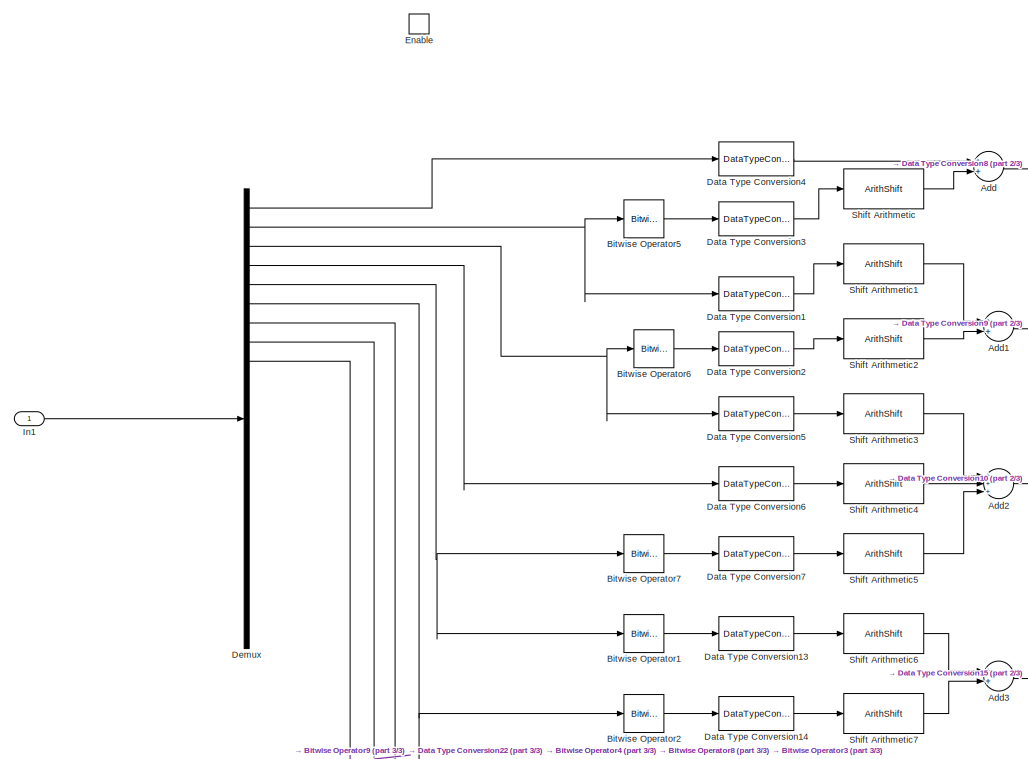
[diagram: Receiver/Enabled Subsystem - part 1/3, middle left region]
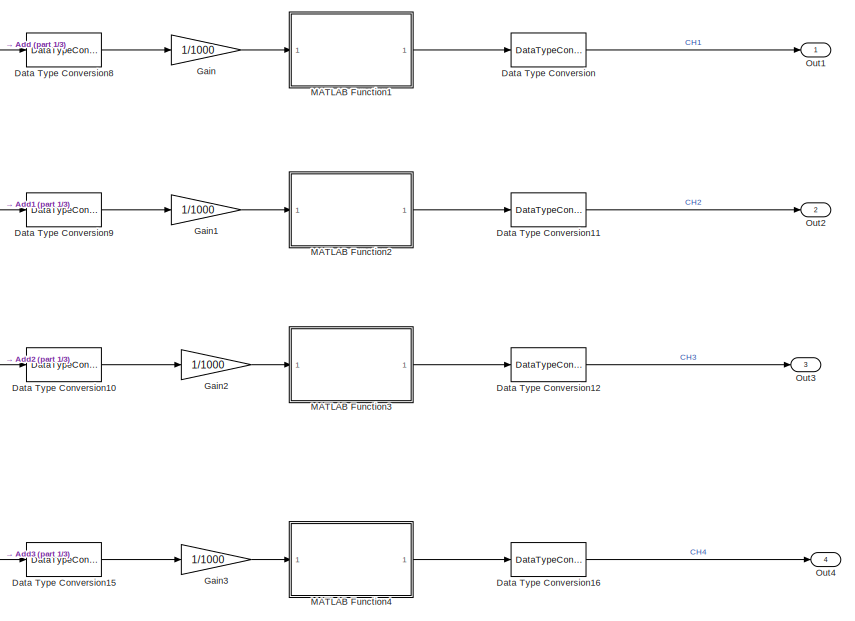
[diagram: Receiver/Enabled Subsystem - part 2/3, middle right region]
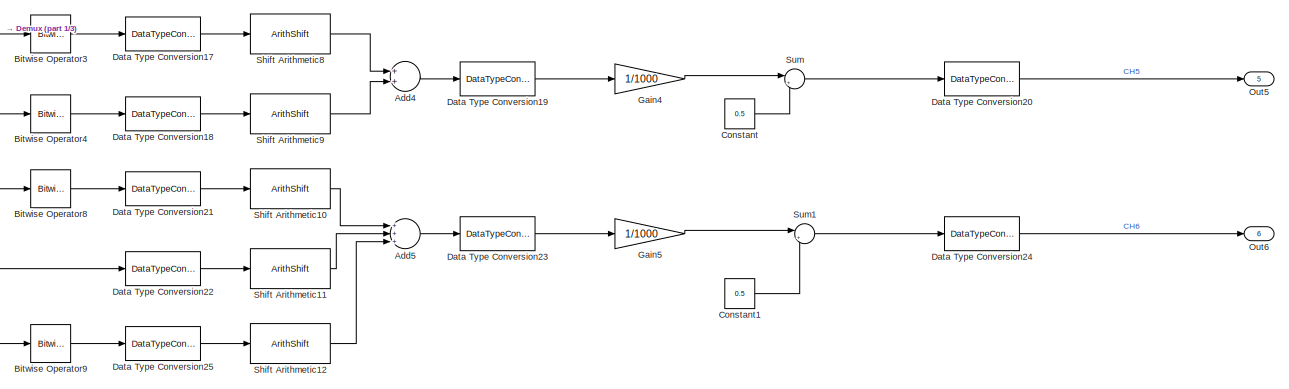
[diagram: Receiver/Enabled Subsystem - part 3/3, bottom center region]
BLOCK [SubSystem] Receiver/Enabled Subsystem
  Ports = [1, 6, 1]
  RequestExecContextInheritance = off
  TreatAsAtomicUnit = on
BLOCK [Sum] Receiver/Enabled Subsystem/Add
  AccumDataTypeStr = uint16
  InputSameDT = off
  OutDataTypeStr = Inherit: Inherit via internal rule
  Ports = [2, 1]
  SaturateOnIntegerOverflow = off
BLOCK [Sum] Receiver/Enabled Subsystem/Add1
  AccumDataTypeStr = uint16
  InputSameDT = off
  OutDataTypeStr = Inherit: Inherit via internal rule
  Ports = [2, 1]
  SaturateOnIntegerOverflow = off
BLOCK [Sum] Receiver/Enabled Subsystem/Add2
  AccumDataTypeStr = uint16
  InputSameDT = off
  Inputs = +++
  OutDataTypeStr = Inherit: Inherit via internal rule
  Ports = [3, 1]
  SaturateOnIntegerOverflow = off
BLOCK [Sum] Receiver/Enabled Subsystem/Add3
  AccumDataTypeStr = uint16
  InputSameDT = off
  OutDataTypeStr = Inherit: Inherit via internal rule
  Ports = [2, 1]
  SaturateOnIntegerOverflow = off
BLOCK [Sum] Receiver/Enabled Subsystem/Add4
  AccumDataTypeStr = uint16
  InputSameDT = off
  OutDataTypeStr = Inherit: Inherit via internal rule
  Ports = [2, 1]
  SaturateOnIntegerOverflow = off
BLOCK [Sum] Receiver/Enabled Subsystem/Add5
  AccumDataTypeStr = uint16
  InputSameDT = off
  Inputs = +++
  OutDataTypeStr = Inherit: Inherit via internal rule
  Ports = [3, 1]
  SaturateOnIntegerOverflow = off
BLOCK [Reference] Receiver/Enabled Subsystem/Bitwise Operator1  REF=simulink/Logic and Bit
Operations/Bitwise
Operator
  BitMask = bin2dec('11111110')
  BitMaskRealWorld = Stored Integer
  NumInputPorts = 1
  Ports = [1, 1]
  SourceBlock = simulink/Logic and Bit\nOperations/Bitwise\nOperator
  SourceType = Bitwise Operator
  UseBitMask = on
  logicop = AND
BLOCK [Reference] Receiver/Enabled Subsystem/Bitwise Operator2  REF=simulink/Logic and Bit
Operations/Bitwise
Operator
  BitMask = bin2dec('00001111')
  BitMaskRealWorld = Stored Integer
  NumInputPorts = 1
  Ports = [1, 1]
  SourceBlock = simulink/Logic and Bit\nOperations/Bitwise\nOperator
  SourceType = Bitwise Operator
  UseBitMask = on
  logicop = AND
BLOCK [Reference] Receiver/Enabled Subsystem/Bitwise Operator3  REF=simulink/Logic and Bit
Operations/Bitwise
Operator
  BitMask = bin2dec('11110000')
  BitMaskRealWorld = Stored Integer
  NumInputPorts = 1
  Ports = [1, 1]
  SourceBlock = simulink/Logic and Bit\nOperations/Bitwise\nOperator
  SourceType = Bitwise Operator
  UseBitMask = on
  logicop = AND
BLOCK [Reference] Receiver/Enabled Subsystem/Bitwise Operator4  REF=simulink/Logic and Bit
Operations/Bitwise
Operator
  BitMask = bin2dec('01111111')
  BitMaskRealWorld = Stored Integer
  NumInputPorts = 1
  Ports = [1, 1]
  SourceBlock = simulink/Logic and Bit\nOperations/Bitwise\nOperator
  SourceType = Bitwise Operator
  UseBitMask = on
  logicop = AND
BLOCK [Reference] Receiver/Enabled Subsystem/Bitwise Operator5  REF=simulink/Logic and Bit
Operations/Bitwise
Operator
  BitMask = bin2dec('00000111')
  BitMaskRealWorld = Stored Integer
  NumInputPorts = 1
  Ports = [1, 1]
  SourceBlock = simulink/Logic and Bit\nOperations/Bitwise\nOperator
  SourceType = Bitwise Operator
  UseBitMask = on
  logicop = AND
BLOCK [Reference] Receiver/Enabled Subsystem/Bitwise Operator6  REF=simulink/Logic and Bit
Operations/Bitwise
Operator
  BitMask = bin2dec('0111111')
  BitMaskRealWorld = Stored Integer
  NumInputPorts = 1
  Ports = [1, 1]
  SourceBlock = simulink/Logic and Bit\nOperations/Bitwise\nOperator
  SourceType = Bitwise Operator
  UseBitMask = on
  logicop = AND
BLOCK [Reference] Receiver/Enabled Subsystem/Bitwise Operator7  REF=simulink/Logic and Bit
Operations/Bitwise
Operator
  BitMask = bin2dec('00000001')
  BitMaskRealWorld = Stored Integer
  NumInputPorts = 1
  Ports = [1, 1]
  SourceBlock = simulink/Logic and Bit\nOperations/Bitwise\nOperator
  SourceType = Bitwise Operator
  UseBitMask = on
  logicop = AND
BLOCK [Reference] Receiver/Enabled Subsystem/Bitwise Operator8  REF=simulink/Logic and Bit
Operations/Bitwise
Operator
  BitMask = bin2dec('10000000')
  BitMaskRealWorld = Stored Integer
  NumInputPorts = 1
  Ports = [1, 1]
  SourceBlock = simulink/Logic and Bit\nOperations/Bitwise\nOperator
  SourceType = Bitwise Operator
  UseBitMask = on
  logicop = AND
BLOCK [Reference] Receiver/Enabled Subsystem/Bitwise Operator9  REF=simulink/Logic and Bit
Operations/Bitwise
Operator
  BitMask = bin2dec('00000011')
  BitMaskRealWorld = Stored Integer
  NumInputPorts = 1
  Ports = [1, 1]
  SourceBlock = simulink/Logic and Bit\nOperations/Bitwise\nOperator
  SourceType = Bitwise Operator
  UseBitMask = on
  logicop = AND
BLOCK [Constant] Receiver/Enabled Subsystem/Constant
  Value = 0.5
BLOCK [Constant] Receiver/Enabled Subsystem/Constant1
  Value = 0.5
BLOCK [DataTypeConversion] Receiver/Enabled Subsystem/Data Type Conversion
  OutDataTypeStr = single
  RndMeth = Floor
  SaturateOnIntegerOverflow = off
BLOCK [DataTypeConversion] Receiver/Enabled Subsystem/Data Type Conversion1
  OutDataTypeStr = uint16
  RndMeth = Floor
  SaturateOnIntegerOverflow = off
BLOCK [DataTypeConversion] Receiver/Enabled Subsystem/Data Type Conversion10
  OutDataTypeStr = double
  RndMeth = Floor
  SaturateOnIntegerOverflow = off
BLOCK [DataTypeConversion] Receiver/Enabled Subsystem/Data Type Conversion11
  OutDataTypeStr = single
  RndMeth = Floor
  SaturateOnIntegerOverflow = off
BLOCK [DataTypeConversion] Receiver/Enabled Subsystem/Data Type Conversion12
  OutDataTypeStr = single
  RndMeth = Floor
  SaturateOnIntegerOverflow = off
BLOCK [DataTypeConversion] Receiver/Enabled Subsystem/Data Type Conversion13
  OutDataTypeStr = uint16
  RndMeth = Floor
  SaturateOnIntegerOverflow = off
BLOCK [DataTypeConversion] Receiver/Enabled Subsystem/Data Type Conversion14
  OutDataTypeStr = uint16
  RndMeth = Floor
  SaturateOnIntegerOverflow = off
BLOCK [DataTypeConversion] Receiver/Enabled Subsystem/Data Type Conversion15
  OutDataTypeStr = double
  RndMeth = Floor
  SaturateOnIntegerOverflow = off
BLOCK [DataTypeConversion] Receiver/Enabled Subsystem/Data Type Conversion16
  OutDataTypeStr = single
  RndMeth = Floor
  SaturateOnIntegerOverflow = off
BLOCK [DataTypeConversion] Receiver/Enabled Subsystem/Data Type Conversion17
  OutDataTypeStr = uint16
  RndMeth = Floor
  SaturateOnIntegerOverflow = off
BLOCK [DataTypeConversion] Receiver/Enabled Subsystem/Data Type Conversion18
  OutDataTypeStr = uint16
  RndMeth = Floor
  SaturateOnIntegerOverflow = off
BLOCK [DataTypeConversion] Receiver/Enabled Subsystem/Data Type Conversion19
  OutDataTypeStr = double
  RndMeth = Floor
  SaturateOnIntegerOverflow = off
BLOCK [DataTypeConversion] Receiver/Enabled Subsystem/Data Type Conversion2
  OutDataTypeStr = uint16
  RndMeth = Floor
  SaturateOnIntegerOverflow = off
BLOCK [DataTypeConversion] Receiver/Enabled Subsystem/Data Type Conversion20
  OutDataTypeStr = single
  RndMeth = Floor
  SaturateOnIntegerOverflow = off
BLOCK [DataTypeConversion] Receiver/Enabled Subsystem/Data Type Conversion21
  OutDataTypeStr = uint16
  RndMeth = Floor
  SaturateOnIntegerOverflow = off
BLOCK [DataTypeConversion] Receiver/Enabled Subsystem/Data Type Conversion22
  OutDataTypeStr = uint16
  RndMeth = Floor
  SaturateOnIntegerOverflow = off
BLOCK [DataTypeConversion] Receiver/Enabled Subsystem/Data Type Conversion23
  OutDataTypeStr = double
  RndMeth = Floor
  SaturateOnIntegerOverflow = off
BLOCK [DataTypeConversion] Receiver/Enabled Subsystem/Data Type Conversion24
  OutDataTypeStr = single
  RndMeth = Floor
  SaturateOnIntegerOverflow = off
BLOCK [DataTypeConversion] Receiver/Enabled Subsystem/Data Type Conversion25
  OutDataTypeStr = uint16
  RndMeth = Floor
  SaturateOnIntegerOverflow = off
BLOCK [DataTypeConversion] Receiver/Enabled Subsystem/Data Type Conversion3
  OutDataTypeStr = uint16
  RndMeth = Floor
  SaturateOnIntegerOverflow = off
BLOCK [DataTypeConversion] Receiver/Enabled Subsystem/Data Type Conversion4
  OutDataTypeStr = uint16
  RndMeth = Floor
  SaturateOnIntegerOverflow = off
BLOCK [DataTypeConversion] Receiver/Enabled Subsystem/Data Type Conversion5
  OutDataTypeStr = uint16
  RndMeth = Floor
  SaturateOnIntegerOverflow = off
BLOCK [DataTypeConversion] Receiver/Enabled Subsystem/Data Type Conversion6
  OutDataTypeStr = uint16
  RndMeth = Floor
  SaturateOnIntegerOverflow = off
BLOCK [DataTypeConversion] Receiver/Enabled Subsystem/Data Type Conversion7
  OutDataTypeStr = uint16
  RndMeth = Floor
  SaturateOnIntegerOverflow = off
BLOCK [DataTypeConversion] Receiver/Enabled Subsystem/Data Type Conversion8
  OutDataTypeStr = double
  RndMeth = Floor
  SaturateOnIntegerOverflow = off
BLOCK [DataTypeConversion] Receiver/Enabled Subsystem/Data Type Conversion9
  OutDataTypeStr = double
  RndMeth = Floor
  SaturateOnIntegerOverflow = off
BLOCK [Demux] Receiver/Enabled Subsystem/Demux
  DisplayOption = bar
  Outputs = 23
  Ports = [1, 23]
BLOCK [EnablePort] Receiver/Enabled Subsystem/Enable
  Ports = []
BLOCK [Gain] Receiver/Enabled Subsystem/Gain
  Gain = 1/1000
  OutDataTypeStr = Inherit: Inherit via internal rule
  ParamDataTypeStr = Inherit: Inherit via internal rule
  SaturateOnIntegerOverflow = off
BLOCK [Gain] Receiver/Enabled Subsystem/Gain1
  Gain = 1/1000
  OutDataTypeStr = Inherit: Inherit via internal rule
  ParamDataTypeStr = Inherit: Inherit via internal rule
  SaturateOnIntegerOverflow = off
BLOCK [Gain] Receiver/Enabled Subsystem/Gain2
  Gain = 1/1000
  OutDataTypeStr = Inherit: Inherit via internal rule
  ParamDataTypeStr = Inherit: Inherit via internal rule
  SaturateOnIntegerOverflow = off
BLOCK [Gain] Receiver/Enabled Subsystem/Gain3
  Gain = 1/1000
  OutDataTypeStr = Inherit: Inherit via internal rule
  ParamDataTypeStr = Inherit: Inherit via internal rule
  SaturateOnIntegerOverflow = off
BLOCK [Gain] Receiver/Enabled Subsystem/Gain4
  Gain = 1/1000
  OutDataTypeStr = Inherit: Inherit via internal rule
  ParamDataTypeStr = Inherit: Inherit via internal rule
  SaturateOnIntegerOverflow = off
BLOCK [Gain] Receiver/Enabled Subsystem/Gain5
  Gain = 1/1000
  OutDataTypeStr = Inherit: Inherit via internal rule
  ParamDataTypeStr = Inherit: Inherit via internal rule
  SaturateOnIntegerOverflow = off
BLOCK [Inport] Receiver/Enabled Subsystem/In1
  IconDisplay = Port number
BLOCK [SubSystem] Receiver/Enabled Subsystem/MATLAB Function1
  ErrorFcn = Stateflow.Translate.translate
  PermitHierarchicalResolution = ExplicitOnly
  Ports = [1, 1]
  RequestExecContextInheritance = off
  SFBlockType = MATLAB Function
  TreatAsAtomicUnit = on
BLOCK [Demux] Receiver/Enabled Subsystem/MATLAB Function1/ Demux 
  Outputs = 1
  Ports = [1, 1]
BLOCK [S-Function] Receiver/Enabled Subsystem/MATLAB Function1/ SFunction 
  EnableBusSupport = on
  FunctionName = sf_sfun
  PortCounts = [1 2]
  Ports = [1, 2]
  Tag = Stateflow S-Function huamo 4
BLOCK [Terminator] Receiver/Enabled Subsystem/MATLAB Function1/ Terminator 
BLOCK [Inport] Receiver/Enabled Subsystem/MATLAB Function1/u
  IconDisplay = Port number
BLOCK [Outport] Receiver/Enabled Subsystem/MATLAB Function1/y
  IconDisplay = Port number
BLOCK [SubSystem] Receiver/Enabled Subsystem/MATLAB Function2
  ErrorFcn = Stateflow.Translate.translate
  PermitHierarchicalResolution = ExplicitOnly
  Ports = [1, 1]
  RequestExecContextInheritance = off
  SFBlockType = MATLAB Function
  TreatAsAtomicUnit = on
BLOCK [Demux] Receiver/Enabled Subsystem/MATLAB Function2/ Demux 
  Outputs = 1
  Ports = [1, 1]
BLOCK [S-Function] Receiver/Enabled Subsystem/MATLAB Function2/ SFunction 
  EnableBusSupport = on
  FunctionName = sf_sfun
  PortCounts = [1 2]
  Ports = [1, 2]
  Tag = Stateflow S-Function huamo 1
BLOCK [Terminator] Receiver/Enabled Subsystem/MATLAB Function2/ Terminator 
BLOCK [Inport] Receiver/Enabled Subsystem/MATLAB Function2/u
  IconDisplay = Port number
BLOCK [Outport] Receiver/Enabled Subsystem/MATLAB Function2/y
  IconDisplay = Port number
BLOCK [SubSystem] Receiver/Enabled Subsystem/MATLAB Function3
  ErrorFcn = Stateflow.Translate.translate
  PermitHierarchicalResolution = ExplicitOnly
  Ports = [1, 1]
  RequestExecContextInheritance = off
  SFBlockType = MATLAB Function
  TreatAsAtomicUnit = on
BLOCK [Demux] Receiver/Enabled Subsystem/MATLAB Function3/ Demux 
  Outputs = 1
  Ports = [1, 1]
BLOCK [S-Function] Receiver/Enabled Subsystem/MATLAB Function3/ SFunction 
  EnableBusSupport = on
  FunctionName = sf_sfun
  PortCounts = [1 2]
  Ports = [1, 2]
  Tag = Stateflow S-Function huamo 8
BLOCK [Terminator] Receiver/Enabled Subsystem/MATLAB Function3/ Terminator 
BLOCK [Inport] Receiver/Enabled Subsystem/MATLAB Function3/u
  IconDisplay = Port number
BLOCK [Outport] Receiver/Enabled Subsystem/MATLAB Function3/y
  IconDisplay = Port number
BLOCK [SubSystem] Receiver/Enabled Subsystem/MATLAB Function4
  ErrorFcn = Stateflow.Translate.translate
  PermitHierarchicalResolution = ExplicitOnly
  Ports = [1, 1]
  RequestExecContextInheritance = off
  SFBlockType = MATLAB Function
  TreatAsAtomicUnit = on
BLOCK [Demux] Receiver/Enabled Subsystem/MATLAB Function4/ Demux 
  Outputs = 1
  Ports = [1, 1]
BLOCK [S-Function] Receiver/Enabled Subsystem/MATLAB Function4/ SFunction 
  EnableBusSupport = on
  FunctionName = sf_sfun
  PortCounts = [1 2]
  Ports = [1, 2]
  Tag = Stateflow S-Function huamo 2
BLOCK [Terminator] Receiver/Enabled Subsystem/MATLAB Function4/ Terminator 
BLOCK [Inport] Receiver/Enabled Subsystem/MATLAB Function4/u
  IconDisplay = Port number
BLOCK [Outport] Receiver/Enabled Subsystem/MATLAB Function4/y
  IconDisplay = Port number
BLOCK [Outport] Receiver/Enabled Subsystem/Out1
  IconDisplay = Port number
BLOCK [Outport] Receiver/Enabled Subsystem/Out2
  IconDisplay = Port number
  Port = 2
BLOCK [Outport] Receiver/Enabled Subsystem/Out3
  IconDisplay = Port number
  Port = 3
BLOCK [Outport] Receiver/Enabled Subsystem/Out4
  IconDisplay = Port number
  Port = 4
BLOCK [Outport] Receiver/Enabled Subsystem/Out5
  IconDisplay = Port number
  Port = 5
BLOCK [Outport] Receiver/Enabled Subsystem/Out6
  IconDisplay = Port number
  Port = 6
BLOCK [ArithShift] Receiver/Enabled Subsystem/Shift Arithmetic
  BitShiftNumber = -8
  InputPortMap = u0
  Ports = [1, 1]
BLOCK [ArithShift] Receiver/Enabled Subsystem/Shift Arithmetic1
  BitShiftNumber = 3
  InputPortMap = u0
  Ports = [1, 1]
BLOCK [ArithShift] Receiver/Enabled Subsystem/Shift Arithmetic10
  BitShiftNumber = 7
  InputPortMap = u0
  Ports = [1, 1]
BLOCK [ArithShift] Receiver/Enabled Subsystem/Shift Arithmetic11
  BitShiftNumber = -1
  InputPortMap = u0
  Ports = [1, 1]
BLOCK [ArithShift] Receiver/Enabled Subsystem/Shift Arithmetic12
  BitShiftNumber = -9
  InputPortMap = u0
  Ports = [1, 1]
BLOCK [ArithShift] Receiver/Enabled Subsystem/Shift Arithmetic2
  BitShiftNumber = -5
  InputPortMap = u0
  Ports = [1, 1]
BLOCK [ArithShift] Receiver/Enabled Subsystem/Shift Arithmetic3
  BitShiftNumber = 6
  InputPortMap = u0
  Ports = [1, 1]
BLOCK [ArithShift] Receiver/Enabled Subsystem/Shift Arithmetic4
  BitShiftNumber = -2
  InputPortMap = u0
  Ports = [1, 1]
BLOCK [ArithShift] Receiver/Enabled Subsystem/Shift Arithmetic5
  BitShiftNumber = -10
  InputPortMap = u0
  Ports = [1, 1]
BLOCK [ArithShift] Receiver/Enabled Subsystem/Shift Arithmetic6
  BitShiftNumber = 1
  InputPortMap = u0
  Ports = [1, 1]
BLOCK [ArithShift] Receiver/Enabled Subsystem/Shift Arithmetic7
  BitShiftNumber = -7
  InputPortMap = u0
  Ports = [1, 1]
BLOCK [ArithShift] Receiver/Enabled Subsystem/Shift Arithmetic8
  BitShiftNumber = 4
  InputPortMap = u0
  Ports = [1, 1]
BLOCK [ArithShift] Receiver/Enabled Subsystem/Shift Arithmetic9
  BitShiftNumber = -4
  InputPortMap = u0
  Ports = [1, 1]
BLOCK [Sum] Receiver/Enabled Subsystem/Sum
  IconShape = round
  InputSameDT = off
  Inputs = |++
  OutDataTypeStr = Inherit: Inherit via internal rule
  Ports = [2, 1]
  SaturateOnIntegerOverflow = off
BLOCK [Sum] Receiver/Enabled Subsystem/Sum1
  IconShape = round
  InputSameDT = off
  Inputs = |++
  OutDataTypeStr = Inherit: Inherit via internal rule
  Ports = [2, 1]
  SaturateOnIntegerOverflow = off
BLOCK [Outport] Receiver/Receiver
  IconDisplay = Port number
BLOCK [S-Function] Receiver/UART Rx3
  EnableBusSupport = off
  FunctionName = stm32f4_usart
  Ports = [0, 2]
  Priority = 1
BLOCK [SubSystem] dianji
  Ports = [1]
  RequestExecContextInheritance = off
BLOCK [S-Function] dianji/Basic PWM7
  EnableBusSupport = off
  FunctionName = stm32f4_basicpwm
  Parameters = timer,pwmperiod,ch1pin,ch2pin,ch3pin,ch4pin,sampletime,sampletimestr,blockid,apb,portstr,pinstr,pinmat,timarr,timprescale,chmat,polaritystr
  Ports = [4]
BLOCK [Demux] dianji/Demux
  DisplayOption = bar
  Ports = [1, 4]
BLOCK [Gain] dianji/Gain
  Gain = 10
  OutDataTypeStr = Inherit: Inherit via internal rule
  ParamDataTypeStr = double
  SaturateOnIntegerOverflow = off
BLOCK [Inport] dianji/In1
  IconDisplay = Port number
BLOCK [Saturate] dianji/Saturation
  InputPortMap = u0
  LowerLimit = 1
  Ports = [1, 1]
  UpperLimit = 1.8
BLOCK [SubSystem] init
  Ports = []
  RequestExecContextInheritance = off
BLOCK [Reference] init/Target Setup  REF=stm32f4_device_config_lib/Target Setup
  Ports = []
  Priority = 100
  SourceBlock = stm32f4_device_config_lib/Target Setup
  SourceType = stm32f4_target_setup
  assemblercontrolstr = --cpu Cortex-M4.fp -g --apcs=interwork  --xref $(INCLUDES)
  blockid = initTargetSetup
  clockconfig = STM32F4DISCOVERY Default (HSEOSC-8MHz/HCLK-168MHz)
  compiler = MDK-ARM
  compilercontrolstr = -c --cpu Cortex-M4.fp -g -O3 --apcs=interwork --split_sections $(INCLUDES)
  editctrlstr = on
  enableautocompiledownload = on
  execprofile = None
  flashlength = 0x00100000
  flashorigin = 0x08000000
  fullchiperase = off
  hclk = 168000000
  heapsize = 0x2000
  hseval = 8000000
  lastprofileruart = 3
  linkercontrolstr = --cpu Cortex-M4.fp --strict --scatter "$(MODELNAME).sct" --summary_stderr --info summarysizes --map --xref --callgraph --symbols --info sizes --info totals --info unused --info veneers  --list ".\$(MODELNAME).map" -o $(MODELNAME).axf
  manualsetsampletime = off
  mcu = STM32F405RG (LQFP64)
  mcustr = STM32F405RG
  previous_compiler = MDK-ARM
  profilerbaud = 500000
  profilerinitstr = 0.001,168000000,168000,500000,0
  profilertxpin = Not used
  profileruart = 3
  programmerinterface = ST-Link
  ramlength = 0x00020000
  ramorigin = 0x20000000
  runafterdownload = on
  sampletime = 0.001
  showmemoryconfiguration = off
  stacksize = 0x2000
  system_stm32f4xx_c_path = <path>\stm32f4_default\hseosc8mhz
  systickreloadvalue = 168000
  useextram = off
BLOCK [S-Function] init/UART Setup
  EnableBusSupport = off
  FunctionName = stm32f4_usart
  Ports = []
  Priority = 1
BLOCK [S-Function] init/UART Setup1
  EnableBusSupport = off
  FunctionName = stm32f4_usart
  Ports = []
  Priority = 1
BLOCK [S-Function] init/UART Setup2
  EnableBusSupport = off
  FunctionName = stm32f4_usart
  Ports = []
  Priority = 1
BLOCK [SubSystem] to shangweiji
  Ports = [6]
  RequestExecContextInheritance = off
BLOCK [BusSelector] to shangweiji/Bus Selector
  Commented = on
  OutputSignals = thrust/CH3
  Ports = [1, 1]
BLOCK [BusSelector] to shangweiji/Bus Selector1
  Commented = on
  OutputSignals = Angle,Angle_rate
  Ports = [1, 2]
BLOCK [DataTypeConversion] to shangweiji/Data Type Conversion
  Commented = on
  OutDataTypeStr = single
  RndMeth = Floor
  SaturateOnIntegerOverflow = off
BLOCK [Demux] to shangweiji/Demux
  Commented = on
  DisplayOption = bar
  Outputs = 3
  Ports = [1, 3]
BLOCK [Demux] to shangweiji/Demux1
  Commented = on
  DisplayOption = bar
  Outputs = 3
  Ports = [1, 3]
BLOCK [Demux] to shangweiji/Demux2
  Commented = on
  DisplayOption = bar
  Outputs = 2
  Ports = [1, 2]
BLOCK [Demux] to shangweiji/Demux3
  Commented = on
  DisplayOption = bar
  Outputs = 2
  Ports = [1, 2]
BLOCK [Inport] to shangweiji/In1
  IconDisplay = Port number
BLOCK [Inport] to shangweiji/In2
  IconDisplay = Port number
  Port = 2
BLOCK [Inport] to shangweiji/In3
  IconDisplay = Port number
  Port = 3
BLOCK [Inport] to shangweiji/In4
  IconDisplay = Port number
  Port = 4
BLOCK [Inport] to shangweiji/In5
  IconDisplay = Port number
  Port = 5
BLOCK [Inport] to shangweiji/In6
  IconDisplay = Port number
  Port = 6
BLOCK [Mux] to shangweiji/Mux
  Commented = on
  DisplayOption = bar
  Inputs = 2
  Ports = [2, 1]
BLOCK [RateTransition] to shangweiji/Rate Transition
  Commented = on
  OutPortSampleTime = 0.4
BLOCK [RateTransition] to shangweiji/Rate Transition1
  Commented = on
  OutPortSampleTime = 0.6
BLOCK [RateTransition] to shangweiji/Rate Transition2
  Commented = on
  OutPortSampleTime = 0.4
BLOCK [RateTransition] to shangweiji/Rate Transition3
  Commented = on
  OutPortSampleTime = 0.4
BLOCK [RateTransition] to shangweiji/Rate Transition4
  OutPortSampleTime = 0.08
BLOCK [SubSystem] to shangweiji/Subsystem
  Commented = on
  Ports = [1]
  RequestExecContextInheritance = off
BLOCK [Demux] to shangweiji/Subsystem/Demux
  DisplayOption = bar
  Outputs = 5
  Ports = [1, 5]
BLOCK [Inport] to shangweiji/Subsystem/In3
  IconDisplay = Port number
BLOCK [S-Function] to shangweiji/Subsystem/UART Tx
  EnableBusSupport = off
  FunctionName = stm32f4_usart
  Ports = [5]
  Priority = 1
BLOCK [S-Function] to shangweiji/UART Tx
  Commented = on
  EnableBusSupport = off
  FunctionName = stm32f4_usart
  Ports = [8]
  Priority = 1
BLOCK [S-Function] to shangweiji/UART Tx1
  Commented = on
  EnableBusSupport = off
  FunctionName = stm32f4_usart
  Ports = [2]
  Priority = 1
BLOCK [S-Function] to shangweiji/UART Tx2
  EnableBusSupport = off
  FunctionName = stm32f4_usart
  Ports = [1]
  Priority = 1
ANNOTATION Controller/Velocity_Damper1/Horizontal_velocity: To get true velocity ,the output of the loop needs to multiply -1
ANNOTATION Guidance_System: CH1,2,4,5 are the signal of angle; CH3 is the signal of thrust;
LINE  from shangweiji/Enabled Subsystem1/If:1 ->  from shangweiji/Enabled Subsystem1/If Action Subsystem:ifaction
LINE  from shangweiji/Enabled Subsystem1/If:2 ->  from shangweiji/Enabled Subsystem1/If Action Subsystem1:ifaction
NET  from shangweiji/Enabled Subsystem1/In1:1 ->  from shangweiji/Enabled Subsystem1/Digital Output:1,  from shangweiji/Enabled Subsystem1/If:1
LINE  from shangweiji/Enabled Subsystem2/Demux:1 ->  from shangweiji/Enabled Subsystem2/UART Tx:1
LINE  from shangweiji/Enabled Subsystem2/Demux:2 ->  from shangweiji/Enabled Subsystem2/UART Tx:2
LINE  from shangweiji/Enabled Subsystem2/Demux:3 ->  from shangweiji/Enabled Subsystem2/UART Tx:3
LINE  from shangweiji/Enabled Subsystem2/Read Unique ID:1 ->  from shangweiji/Enabled Subsystem2/Demux:1
LINE  from shangweiji/Enabled Subsystem4/P:1 ->  from shangweiji/Enabled Subsystem4/Out1:1
LINE  from shangweiji/Enabled Subsystem4/nD:1 ->  from shangweiji/Enabled Subsystem4/Out4:1
LINE  from shangweiji/Enabled Subsystem4/nI:1 ->  from shangweiji/Enabled Subsystem4/Out3:1
LINE  from shangweiji/Enabled Subsystem4/nP:1 ->  from shangweiji/Enabled Subsystem4/Out2:1
LINE  from shangweiji/Enabled Subsystem4/status:1 ->  from shangweiji/Enabled Subsystem4/Out5:1
LINE  from shangweiji/Enabled Subsystem4:1 ->  from shangweiji/Goto:1
LINE  from shangweiji/Enabled Subsystem4:2 ->  from shangweiji/Goto1:1
LINE  from shangweiji/Enabled Subsystem4:3 ->  from shangweiji/Goto2:1
LINE  from shangweiji/Enabled Subsystem4:4 ->  from shangweiji/Goto3:1
LINE  from shangweiji/Enabled Subsystem4:5 ->  from shangweiji/Goto4:1
LINE  from shangweiji/Enabled Subsystem5/P:1 ->  from shangweiji/Enabled Subsystem5/Out1:1
LINE  from shangweiji/Enabled Subsystem5/nD:1 ->  from shangweiji/Enabled Subsystem5/Out4:1
LINE  from shangweiji/Enabled Subsystem5/nI:1 ->  from shangweiji/Enabled Subsystem5/Out3:1
LINE  from shangweiji/Enabled Subsystem5/nP:1 ->  from shangweiji/Enabled Subsystem5/Out2:1
LINE  from shangweiji/Enabled Subsystem5/status:1 ->  from shangweiji/Enabled Subsystem5/Out5:1
LINE  from shangweiji/Enabled Subsystem5:1 ->  from shangweiji/Goto5:1
LINE  from shangweiji/Enabled Subsystem5:2 ->  from shangweiji/Goto6:1
LINE  from shangweiji/Enabled Subsystem5:3 ->  from shangweiji/Goto7:1
LINE  from shangweiji/Enabled Subsystem5:4 ->  from shangweiji/Goto8:1
LINE  from shangweiji/Enabled Subsystem5:5 ->  from shangweiji/Goto9:1
LINE  from shangweiji/Enabled Subsystem6/P:1 ->  from shangweiji/Enabled Subsystem6/Out1:1
LINE  from shangweiji/Enabled Subsystem6/nD:1 ->  from shangweiji/Enabled Subsystem6/Out4:1
LINE  from shangweiji/Enabled Subsystem6/nI:1 ->  from shangweiji/Enabled Subsystem6/Out3:1
LINE  from shangweiji/Enabled Subsystem6/nP:1 ->  from shangweiji/Enabled Subsystem6/Out2:1
LINE  from shangweiji/Enabled Subsystem6/status:1 ->  from shangweiji/Enabled Subsystem6/Out5:1
LINE  from shangweiji/Enabled Subsystem6:1 ->  from shangweiji/Goto10:1
LINE  from shangweiji/Enabled Subsystem6:2 ->  from shangweiji/Goto11:1
LINE  from shangweiji/Enabled Subsystem6:3 ->  from shangweiji/Goto12:1
LINE  from shangweiji/Enabled Subsystem6:4 ->  from shangweiji/Goto13:1
LINE  from shangweiji/Enabled Subsystem6:5 ->  from shangweiji/Goto14:1
LINE  from shangweiji/UART Rx1:1 ->  from shangweiji/Enabled Subsystem1:enable
LINE  from shangweiji/UART Rx1:2 ->  from shangweiji/Enabled Subsystem1:1
LINE  from shangweiji/UART Rx2:1 ->  from shangweiji/Enabled Subsystem3:enable
LINE  from shangweiji/UART Rx3:1 ->  from shangweiji/Enabled Subsystem4:enable
LINE  from shangweiji/UART Rx3:2 ->  from shangweiji/Enabled Subsystem4:1
LINE  from shangweiji/UART Rx3:3 ->  from shangweiji/Enabled Subsystem4:2
LINE  from shangweiji/UART Rx3:4 ->  from shangweiji/Enabled Subsystem4:3
LINE  from shangweiji/UART Rx3:5 ->  from shangweiji/Enabled Subsystem4:4
LINE  from shangweiji/UART Rx3:6 ->  from shangweiji/Enabled Subsystem4:5
LINE  from shangweiji/UART Rx4:1 ->  from shangweiji/Enabled Subsystem5:enable
LINE  from shangweiji/UART Rx4:2 ->  from shangweiji/Enabled Subsystem5:1
LINE  from shangweiji/UART Rx4:3 ->  from shangweiji/Enabled Subsystem5:2
LINE  from shangweiji/UART Rx4:4 ->  from shangweiji/Enabled Subsystem5:3
LINE  from shangweiji/UART Rx4:5 ->  from shangweiji/Enabled Subsystem5:4
LINE  from shangweiji/UART Rx4:6 ->  from shangweiji/Enabled Subsystem5:5
LINE  from shangweiji/UART Rx5:1 ->  from shangweiji/Enabled Subsystem6:enable
LINE  from shangweiji/UART Rx5:2 ->  from shangweiji/Enabled Subsystem6:1
LINE  from shangweiji/UART Rx5:3 ->  from shangweiji/Enabled Subsystem6:2
LINE  from shangweiji/UART Rx5:4 ->  from shangweiji/Enabled Subsystem6:3
LINE  from shangweiji/UART Rx5:5 ->  from shangweiji/Enabled Subsystem6:4
LINE  from shangweiji/UART Rx5:6 ->  from shangweiji/Enabled Subsystem6:5
LINE  from shangweiji/UART Rx:1 ->  from shangweiji/Enabled Subsystem2:enable
NET Controller/Angle_hold/Bus Selector:1 -> Controller/Angle_hold/Gain:1, Controller/Angle_hold/If:1, Controller/Angle_hold/Switch:2
LINE Controller/Angle_hold/Constant1:1 -> Controller/Angle_hold/Sum:2
LINE Controller/Angle_hold/Gain:1 -> Controller/Angle_hold/Switch:3
NET Controller/Angle_hold/Guidance_in:1 -> Controller/Angle_hold/Bus Selector:1, Controller/Angle_hold/Subsystem:5
LINE Controller/Angle_hold/If:1 -> Controller/Angle_hold/Subsystem:ifaction
LINE Controller/Angle_hold/Signal_back:1 -> Controller/Angle_hold/Subsystem:6
LINE Controller/Angle_hold/Subsystem/Bus Selector1:1 -> Controller/Angle_hold/Subsystem/Gain5:1
LINE Controller/Angle_hold/Subsystem/Bus Selector1:2 -> Controller/Angle_hold/Subsystem/Gain6:1
LINE Controller/Angle_hold/Subsystem/Bus Selector:1 -> Controller/Angle_hold/Subsystem/Gain2:1
LINE Controller/Angle_hold/Subsystem/Bus Selector:2 -> Controller/Angle_hold/Subsystem/Gain3:1
LINE Controller/Angle_hold/Subsystem/Bus Selector:3 -> Controller/Angle_hold/Subsystem/Goto4:1
LINE Controller/Angle_hold/Subsystem/Bus Selector:4 -> Controller/Angle_hold/Subsystem/Gain4:1
LINE Controller/Angle_hold/Subsystem/Controller_roll/Angle:1 -> Controller/Angle_hold/Subsystem/Controller_roll/Mux1:2
LINE Controller/Angle_hold/Subsystem/Controller_roll/Angle_rate:1 -> Controller/Angle_hold/Subsystem/Controller_roll/Mux1:3
LINE Controller/Angle_hold/Subsystem/Controller_roll/Data Type Conversion8:1 -> Controller/Angle_hold/Subsystem/Controller_roll/attitude_control:1
LINE Controller/Angle_hold/Subsystem/Controller_roll/Data Type Conversion:1 -> Controller/Angle_hold/Subsystem/Controller_roll/Saturation:1
LINE Controller/Angle_hold/Subsystem/Controller_roll/Instruction:1 -> Controller/Angle_hold/Subsystem/Controller_roll/Mux1:1
LINE Controller/Angle_hold/Subsystem/Controller_roll/Mux1:1 -> Controller/Angle_hold/Subsystem/Controller_roll/Data Type Conversion8:1
LINE Controller/Angle_hold/Subsystem/Controller_roll/Saturation:1 -> Controller/Angle_hold/Subsystem/Controller_roll/ControlSignal:1
NET Controller/Angle_hold/Subsystem/Controller_roll/attitude_control:1 -> Controller/Angle_hold/Subsystem/Controller_roll/Data Type Conversion:1, Controller/Angle_hold/Subsystem/Controller_roll/sig:1
LINE Controller/Angle_hold/Subsystem/Controller_roll/parameter:1 -> Controller/Angle_hold/Subsystem/Controller_roll/Mux1:5
LINE Controller/Angle_hold/Subsystem/Controller_roll/thrust:1 -> Controller/Angle_hold/Subsystem/Controller_roll/Mux1:4
LINE Controller/Angle_hold/Subsystem/Controller_roll:1 -> Controller/Angle_hold/Subsystem/Mux3:2
LINE Controller/Angle_hold/Subsystem/Controller_roll:2 -> Controller/Angle_hold/Subsystem/Out2:1
LINE Controller/Angle_hold/Subsystem/Controller_yaw/Angle:1 -> Controller/Angle_hold/Subsystem/Controller_yaw/Product3:1
LINE Controller/Angle_hold/Subsystem/Controller_yaw/AngularRate:1 -> Controller/Angle_hold/Subsystem/Controller_yaw/Sum1:2
LINE Controller/Angle_hold/Subsystem/Controller_yaw/Data Type Conversion:1 -> Controller/Angle_hold/Subsystem/Controller_yaw/Discrete-Time Integrator1:2
LINE Controller/Angle_hold/Subsystem/Controller_yaw/Demux:1 -> Controller/Angle_hold/Subsystem/Controller_yaw/Goto:1
LINE Controller/Angle_hold/Subsystem/Controller_yaw/Demux:2 -> Controller/Angle_hold/Subsystem/Controller_yaw/Goto1:1
LINE Controller/Angle_hold/Subsystem/Controller_yaw/Demux:3 -> Controller/Angle_hold/Subsystem/Controller_yaw/Goto2:1
LINE Controller/Angle_hold/Subsystem/Controller_yaw/Demux:4 -> Controller/Angle_hold/Subsystem/Controller_yaw/Goto3:1
LINE Controller/Angle_hold/Subsystem/Controller_yaw/Demux:5 -> Controller/Angle_hold/Subsystem/Controller_yaw/Goto4:1
LINE Controller/Angle_hold/Subsystem/Controller_yaw/Discrete Derivative:1 -> Controller/Angle_hold/Subsystem/Controller_yaw/Product5:1
LINE Controller/Angle_hold/Subsystem/Controller_yaw/Discrete-Time Integrator1:1 -> Controller/Angle_hold/Subsystem/Controller_yaw/Product6:1
LINE Controller/Angle_hold/Subsystem/Controller_yaw/Gain:1 -> Controller/Angle_hold/Subsystem/Controller_yaw/Saturation:1
LINE Controller/Angle_hold/Subsystem/Controller_yaw/Instruction:1 -> Controller/Angle_hold/Subsystem/Controller_yaw/Sum:1
LINE Controller/Angle_hold/Subsystem/Controller_yaw/MATLAB Function:1 -> Controller/Angle_hold/Subsystem/Controller_yaw/Data Type Conversion:1
LINE Controller/Angle_hold/Subsystem/Controller_yaw/P:1 -> Controller/Angle_hold/Subsystem/Controller_yaw/Product1:2
LINE Controller/Angle_hold/Subsystem/Controller_yaw/Product1:1 -> Controller/Angle_hold/Subsystem/Controller_yaw/Sum1:1
LINE Controller/Angle_hold/Subsystem/Controller_yaw/Product3:1 -> Controller/Angle_hold/Subsystem/Controller_yaw/Sum:2
LINE Controller/Angle_hold/Subsystem/Controller_yaw/Product4:1 -> Controller/Angle_hold/Subsystem/Controller_yaw/Sum2:1
LINE Controller/Angle_hold/Subsystem/Controller_yaw/Product5:1 -> Controller/Angle_hold/Subsystem/Controller_yaw/Sum2:2
LINE Controller/Angle_hold/Subsystem/Controller_yaw/Product6:1 -> Controller/Angle_hold/Subsystem/Controller_yaw/Sum2:3
LINE Controller/Angle_hold/Subsystem/Controller_yaw/Saturation:1 -> Controller/Angle_hold/Subsystem/Controller_yaw/ControlSignal:1
NET Controller/Angle_hold/Subsystem/Controller_yaw/Sum1:1 -> Controller/Angle_hold/Subsystem/Controller_yaw/Discrete Derivative:1, Controller/Angle_hold/Subsystem/Controller_yaw/Discrete-Time Integrator1:1, Controller/Angle_hold/Subsystem/Controller_yaw/Product4:2
LINE Controller/Angle_hold/Subsystem/Controller_yaw/Sum2:1 -> Controller/Angle_hold/Subsystem/Controller_yaw/Gain:1
LINE Controller/Angle_hold/Subsystem/Controller_yaw/Sum:1 -> Controller/Angle_hold/Subsystem/Controller_yaw/Product1:1
LINE Controller/Angle_hold/Subsystem/Controller_yaw/nD:1 -> Controller/Angle_hold/Subsystem/Controller_yaw/Product5:2
LINE Controller/Angle_hold/Subsystem/Controller_yaw/nI:1 -> Controller/Angle_hold/Subsystem/Controller_yaw/Product6:2
LINE Controller/Angle_hold/Subsystem/Controller_yaw/nP:1 -> Controller/Angle_hold/Subsystem/Controller_yaw/Product4:1
LINE Controller/Angle_hold/Subsystem/Controller_yaw/parameter_yaw:1 -> Controller/Angle_hold/Subsystem/Controller_yaw/Demux:1
LINE Controller/Angle_hold/Subsystem/Controller_yaw/status:1 -> Controller/Angle_hold/Subsystem/Controller_yaw/Product3:2
LINE Controller/Angle_hold/Subsystem/Controller_yaw/thrust:1 -> Controller/Angle_hold/Subsystem/Controller_yaw/MATLAB Function:1
LINE Controller/Angle_hold/Subsystem/Controller_yaw:1 -> Controller/Angle_hold/Subsystem/Mux3:3
LINE Controller/Angle_hold/Subsystem/Data Type Conversion1:1 -> Controller/Angle_hold/Subsystem/Out1:1
NET Controller/Angle_hold/Subsystem/Data Type Conversion:1 -> Controller/Angle_hold/Subsystem/MATLAB Function2:1, Controller/Angle_hold/Subsystem/MATLAB Function:1
LINE Controller/Angle_hold/Subsystem/Demux1:1 -> Controller/Angle_hold/Subsystem/Goto7:1
LINE Controller/Angle_hold/Subsystem/Demux1:2 -> Controller/Angle_hold/Subsystem/Goto8:1
LINE Controller/Angle_hold/Subsystem/Demux1:3 -> Controller/Angle_hold/Subsystem/Goto9:1
LINE Controller/Angle_hold/Subsystem/Demux3:1 -> Controller/Angle_hold/Subsystem/Goto5:1
LINE Controller/Angle_hold/Subsystem/Demux3:2 -> Controller/Angle_hold/Subsystem/Goto6:1
LINE Controller/Angle_hold/Subsystem/Demux3:3 -> Controller/Angle_hold/Subsystem/Goto12:1
LINE Controller/Angle_hold/Subsystem/Demux:1 -> Controller/Angle_hold/Subsystem/alt_control:2
LINE Controller/Angle_hold/Subsystem/Demux:2 -> Controller/Angle_hold/Subsystem/alt_control:3
LINE Controller/Angle_hold/Subsystem/From10:1 -> Controller/Angle_hold/Subsystem/Mux4:1
LINE Controller/Angle_hold/Subsystem/From11:1 -> Controller/Angle_hold/Subsystem/Mux2:3
LINE Controller/Angle_hold/Subsystem/From13:1 -> Controller/Angle_hold/Subsystem/Mux:1
LINE Controller/Angle_hold/Subsystem/From14:1 -> Controller/Angle_hold/Subsystem/Mux1:1
LINE Controller/Angle_hold/Subsystem/From15:1 -> Controller/Angle_hold/Subsystem/Mux2:1
LINE Controller/Angle_hold/Subsystem/From1:1 -> Controller/Angle_hold/Subsystem/Controller_yaw:3
LINE Controller/Angle_hold/Subsystem/From2:1 -> Controller/Angle_hold/Subsystem/Controller_yaw:1
LINE Controller/Angle_hold/Subsystem/From3:1 -> Controller/Angle_hold/Subsystem/Controller_yaw:2
LINE Controller/Angle_hold/Subsystem/From4:1 -> Controller/Angle_hold/Subsystem/Mux1:2
LINE Controller/Angle_hold/Subsystem/From5:1 -> Controller/Angle_hold/Subsystem/Mux2:2
LINE Controller/Angle_hold/Subsystem/From6:1 -> Controller/Angle_hold/Subsystem/Controller_roll:4
LINE Controller/Angle_hold/Subsystem/From7:1 -> Controller/Angle_hold/Subsystem/alt_control:1
LINE Controller/Angle_hold/Subsystem/From8:1 -> Controller/Angle_hold/Subsystem/Controller_yaw:5
LINE Controller/Angle_hold/Subsystem/From9:1 -> Controller/Angle_hold/Subsystem/Mux4:2
LINE Controller/Angle_hold/Subsystem/From:1 -> Controller/Angle_hold/Subsystem/Mux:2
LINE Controller/Angle_hold/Subsystem/Gain2:1 -> Controller/Angle_hold/Subsystem/Goto2:1
LINE Controller/Angle_hold/Subsystem/Gain3:1 -> Controller/Angle_hold/Subsystem/Goto1:1
LINE Controller/Angle_hold/Subsystem/Gain4:1 -> Controller/Angle_hold/Subsystem/Goto3:1
LINE Controller/Angle_hold/Subsystem/Gain5:1 -> Controller/Angle_hold/Subsystem/Demux3:1
LINE Controller/Angle_hold/Subsystem/Gain6:1 -> Controller/Angle_hold/Subsystem/Demux1:1
LINE Controller/Angle_hold/Subsystem/In2:1 -> Controller/Angle_hold/Subsystem/Demux:1
LINE Controller/Angle_hold/Subsystem/In3:1 -> Controller/Angle_hold/Subsystem/alt_control:4
LINE Controller/Angle_hold/Subsystem/In4:1 -> Controller/Angle_hold/Subsystem/Controller_roll:5
LINE Controller/Angle_hold/Subsystem/In5:1 -> Controller/Angle_hold/Subsystem/Controller_yaw:4
LINE Controller/Angle_hold/Subsystem/In6:1 -> Controller/Angle_hold/Subsystem/Bus Selector:1
LINE Controller/Angle_hold/Subsystem/In7:1 -> Controller/Angle_hold/Subsystem/Bus Selector1:1
LINE Controller/Angle_hold/Subsystem/MATLAB Function1:1 -> Controller/Angle_hold/Subsystem/Sum1:2
LINE Controller/Angle_hold/Subsystem/MATLAB Function2:1 -> Controller/Angle_hold/Subsystem/Sum1:1
LINE Controller/Angle_hold/Subsystem/MATLAB Function:1 -> Controller/Angle_hold/Subsystem/Saturation:1
LINE Controller/Angle_hold/Subsystem/Mux1:1 -> Controller/Angle_hold/Subsystem/Controller_roll:2
LINE Controller/Angle_hold/Subsystem/Mux2:1 -> Controller/Angle_hold/Subsystem/Controller_roll:3
LINE Controller/Angle_hold/Subsystem/Mux3:1 -> Controller/Angle_hold/Subsystem/Data Type Conversion:1
LINE Controller/Angle_hold/Subsystem/Mux4:1 -> Controller/Angle_hold/Subsystem/alt_control:5
LINE Controller/Angle_hold/Subsystem/Mux:1 -> Controller/Angle_hold/Subsystem/Controller_roll:1
LINE Controller/Angle_hold/Subsystem/Saturation:1 -> Controller/Angle_hold/Subsystem/MATLAB Function1:1
LINE Controller/Angle_hold/Subsystem/Sum1:1 -> Controller/Angle_hold/Subsystem/Data Type Conversion1:1
LINE Controller/Angle_hold/Subsystem/alt_control/Constant1:1 -> Controller/Angle_hold/Subsystem/alt_control/Sum4:2
LINE Controller/Angle_hold/Subsystem/alt_control/Constant2:1 -> Controller/Angle_hold/Subsystem/alt_control/Subsystem:5
LINE Controller/Angle_hold/Subsystem/alt_control/Constant3:1 -> Controller/Angle_hold/Subsystem/alt_control/Subsystem:6
LINE Controller/Angle_hold/Subsystem/alt_control/D:1 -> Controller/Angle_hold/Subsystem/alt_control/Product2:2
NET Controller/Angle_hold/Subsystem/alt_control/Data Type Conversion1:1 -> Controller/Angle_hold/Subsystem/alt_control/Subsystem:enable, Controller/Angle_hold/Subsystem/alt_control/Switch:2
LINE Controller/Angle_hold/Subsystem/alt_control/Data Type Conversion2:1 -> Controller/Angle_hold/Subsystem/alt_control/MATLAB Function:1
LINE Controller/Angle_hold/Subsystem/alt_control/Data Type Conversion3:1 -> Controller/Angle_hold/Subsystem/alt_control/MATLAB Function:2
LINE Controller/Angle_hold/Subsystem/alt_control/Data Type Conversion:1 -> Controller/Angle_hold/Subsystem/alt_control/Subsystem:1
LINE Controller/Angle_hold/Subsystem/alt_control/Demux:1 -> Controller/Angle_hold/Subsystem/alt_control/Goto:1
LINE Controller/Angle_hold/Subsystem/alt_control/Demux:2 -> Controller/Angle_hold/Subsystem/alt_control/Goto1:1
LINE Controller/Angle_hold/Subsystem/alt_control/Demux:3 -> Controller/Angle_hold/Subsystem/alt_control/Goto2:1
LINE Controller/Angle_hold/Subsystem/alt_control/Demux:4 -> Controller/Angle_hold/Subsystem/alt_control/Goto3:1
LINE Controller/Angle_hold/Subsystem/alt_control/Demux:5 -> Controller/Angle_hold/Subsystem/alt_control/Goto4:1
LINE Controller/Angle_hold/Subsystem/alt_control/Gain7:1 -> Controller/Angle_hold/Subsystem/alt_control/Sum1:2
NET Controller/Angle_hold/Subsystem/alt_control/Instruction:1 -> Controller/Angle_hold/Subsystem/alt_control/Data Type Conversion2:1, Controller/Angle_hold/Subsystem/alt_control/Sum4:1
LINE Controller/Angle_hold/Subsystem/alt_control/MATLAB Function:1 -> Controller/Angle_hold/Subsystem/alt_control/Data Type Conversion:1
LINE Controller/Angle_hold/Subsystem/alt_control/MATLAB Function:2 -> Controller/Angle_hold/Subsystem/alt_control/Data Type Conversion1:1
LINE Controller/Angle_hold/Subsystem/alt_control/Product2:1 -> Controller/Angle_hold/Subsystem/alt_control/Saturation1:1
LINE Controller/Angle_hold/Subsystem/alt_control/Saturation1:1 -> Controller/Angle_hold/Subsystem/alt_control/Sum1:1
LINE Controller/Angle_hold/Subsystem/alt_control/Saturation:1 -> Controller/Angle_hold/Subsystem/alt_control/ControlSignal:1
LINE Controller/Angle_hold/Subsystem/alt_control/Subsystem/Constant1:1 -> Controller/Angle_hold/Subsystem/alt_control/Subsystem/Product4:2
LINE Controller/Angle_hold/Subsystem/alt_control/Subsystem/Constant:1 -> Controller/Angle_hold/Subsystem/alt_control/Subsystem/Sum2:2
LINE Controller/Angle_hold/Subsystem/alt_control/Subsystem/D:1 -> Controller/Angle_hold/Subsystem/alt_control/Subsystem/Product2:2
LINE Controller/Angle_hold/Subsystem/alt_control/Subsystem/Data Type Conversion1:1 -> Controller/Angle_hold/Subsystem/alt_control/Subsystem/Divide:2
LINE Controller/Angle_hold/Subsystem/alt_control/Subsystem/Divide:1 -> Controller/Angle_hold/Subsystem/alt_control/Subsystem/Out1:1
LINE Controller/Angle_hold/Subsystem/alt_control/Subsystem/Fcn:1 -> Controller/Angle_hold/Subsystem/alt_control/Subsystem/Data Type Conversion1:1
LINE Controller/Angle_hold/Subsystem/alt_control/Subsystem/In1:1 -> Controller/Angle_hold/Subsystem/alt_control/Subsystem/Sum:1
LINE Controller/Angle_hold/Subsystem/alt_control/Subsystem/P:1 -> Controller/Angle_hold/Subsystem/alt_control/Subsystem/Product1:2
LINE Controller/Angle_hold/Subsystem/alt_control/Subsystem/Product1:1 -> Controller/Angle_hold/Subsystem/alt_control/Subsystem/Sum1:1
LINE Controller/Angle_hold/Subsystem/alt_control/Subsystem/Product2:1 -> Controller/Angle_hold/Subsystem/alt_control/Subsystem/Saturation1:1
LINE Controller/Angle_hold/Subsystem/alt_control/Subsystem/Product4:1 -> Controller/Angle_hold/Subsystem/alt_control/Subsystem/Divide:1
LINE Controller/Angle_hold/Subsystem/alt_control/Subsystem/Saturation1:1 -> Controller/Angle_hold/Subsystem/alt_control/Subsystem/Sum1:2
LINE Controller/Angle_hold/Subsystem/alt_control/Subsystem/Sum1:1 -> Controller/Angle_hold/Subsystem/alt_control/Subsystem/Sum2:1
LINE Controller/Angle_hold/Subsystem/alt_control/Subsystem/Sum2:1 -> Controller/Angle_hold/Subsystem/alt_control/Subsystem/Product4:1
LINE Controller/Angle_hold/Subsystem/alt_control/Subsystem/Sum:1 -> Controller/Angle_hold/Subsystem/alt_control/Subsystem/Product1:1
LINE Controller/Angle_hold/Subsystem/alt_control/Subsystem/alt:1 -> Controller/Angle_hold/Subsystem/alt_control/Subsystem/Sum:2
LINE Controller/Angle_hold/Subsystem/alt_control/Subsystem/alt_Rate:1 -> Controller/Angle_hold/Subsystem/alt_control/Subsystem/Product2:1
LINE Controller/Angle_hold/Subsystem/alt_control/Subsystem/roll_pitch:1 -> Controller/Angle_hold/Subsystem/alt_control/Subsystem/Fcn:1
LINE Controller/Angle_hold/Subsystem/alt_control/Subsystem:1 -> Controller/Angle_hold/Subsystem/alt_control/Switch:1
LINE Controller/Angle_hold/Subsystem/alt_control/Sum1:1 -> Controller/Angle_hold/Subsystem/alt_control/Switch:3
LINE Controller/Angle_hold/Subsystem/alt_control/Sum4:1 -> Controller/Angle_hold/Subsystem/alt_control/Gain7:1
LINE Controller/Angle_hold/Subsystem/alt_control/Switch:1 -> Controller/Angle_hold/Subsystem/alt_control/Saturation:1
NET Controller/Angle_hold/Subsystem/alt_control/alt:1 -> Controller/Angle_hold/Subsystem/alt_control/Data Type Conversion3:1, Controller/Angle_hold/Subsystem/alt_control/Subsystem:3
NET Controller/Angle_hold/Subsystem/alt_control/alt_Rate:1 -> Controller/Angle_hold/Subsystem/alt_control/Product2:1, Controller/Angle_hold/Subsystem/alt_control/Subsystem:2
LINE Controller/Angle_hold/Subsystem/alt_control/parameter_yaw:1 -> Controller/Angle_hold/Subsystem/alt_control/Demux:1
LINE Controller/Angle_hold/Subsystem/alt_control/roll_pitch:1 -> Controller/Angle_hold/Subsystem/alt_control/Subsystem:4
LINE Controller/Angle_hold/Subsystem/alt_control:1 -> Controller/Angle_hold/Subsystem/Mux3:1
LINE Controller/Angle_hold/Subsystem:1 -> Controller/Angle_hold/Switch:1
LINE Controller/Angle_hold/Subsystem:2 -> Controller/Angle_hold/Out2:1
LINE Controller/Angle_hold/Sum:1 -> Controller/Angle_hold/Out1:1
LINE Controller/Angle_hold/Switch:1 -> Controller/Angle_hold/Sum:1
LINE Controller/Angle_hold/alt_back:1 -> Controller/Angle_hold/Subsystem:1
LINE Controller/Angle_hold/parameter_alt:1 -> Controller/Angle_hold/Subsystem:2
LINE Controller/Angle_hold/parameter_roll:1 -> Controller/Angle_hold/Subsystem:3
LINE Controller/Angle_hold/parameter_yaw:1 -> Controller/Angle_hold/Subsystem:4
LINE Controller/Angle_hold:1 -> Controller/Out2:1
LINE Controller/Angle_hold:2 -> Controller/Out3:1
LINE Controller/Bus Selector:1 -> Controller/MATLAB Function:1
LINE Controller/Bus Selector:2 -> Controller/MATLAB Function:2
NET Controller/Guidance_in:1 -> Controller/Angle_hold:1, Controller/Bus Selector:1
NET Controller/MATLAB Function:1 -> Controller/Angle_hold:enable, Controller/Velocity_Damper2:2
NET Controller/Mux:1 -> Controller/Angle_hold:6, Controller/Out1:1
LINE Controller/Parameter/From10:1 -> Controller/Parameter/Mux2:1
LINE Controller/Parameter/From11:1 -> Controller/Parameter/Mux2:2
LINE Controller/Parameter/From12:1 -> Controller/Parameter/Mux2:4
LINE Controller/Parameter/From13:1 -> Controller/Parameter/Mux2:3
LINE Controller/Parameter/From14:1 -> Controller/Parameter/Mux2:5
LINE Controller/Parameter/From1:1 -> Controller/Parameter/Mux:2
LINE Controller/Parameter/From2:1 -> Controller/Parameter/Mux:4
LINE Controller/Parameter/From3:1 -> Controller/Parameter/Mux:3
LINE Controller/Parameter/From4:1 -> Controller/Parameter/Mux:5
LINE Controller/Parameter/From5:1 -> Controller/Parameter/Mux1:1
LINE Controller/Parameter/From6:1 -> Controller/Parameter/Mux1:2
LINE Controller/Parameter/From7:1 -> Controller/Parameter/Mux1:4
LINE Controller/Parameter/From8:1 -> Controller/Parameter/Mux1:3
LINE Controller/Parameter/From9:1 -> Controller/Parameter/Mux1:5
LINE Controller/Parameter/From:1 -> Controller/Parameter/Mux:1
LINE Controller/Parameter/Mux1:1 -> Controller/Parameter/Out2:1
LINE Controller/Parameter/Mux2:1 -> Controller/Parameter/Out3:1
LINE Controller/Parameter/Mux:1 -> Controller/Parameter/Out1:1
LINE Controller/Parameter:1 -> Controller/Angle_hold:3
LINE Controller/Parameter:2 -> Controller/Angle_hold:4
LINE Controller/Parameter:3 -> Controller/Angle_hold:5
NET Controller/Signal_back:1 -> Controller/Angle_hold:2, Controller/Velocity_Damper2:1
LINE Controller/Velocity_Damper1/Altitude_calculation/Accelerometer:1 -> Controller/Velocity_Damper1/Altitude_calculation/Demux:1
LINE Controller/Velocity_Damper1/Altitude_calculation/Barometer:1 -> Controller/Velocity_Damper1/Altitude_calculation/Sum2:1
LINE Controller/Velocity_Damper1/Altitude_calculation/Basic_altitude:1 -> Controller/Velocity_Damper1/Altitude_calculation/Data Type Conversion:1
LINE Controller/Velocity_Damper1/Altitude_calculation/Data Type Conversion1:1 -> Controller/Velocity_Damper1/Altitude_calculation/Divide:2
LINE Controller/Velocity_Damper1/Altitude_calculation/Data Type Conversion:1 -> Controller/Velocity_Damper1/Altitude_calculation/Sum2:2
LINE Controller/Velocity_Damper1/Altitude_calculation/Demux:1 -> Controller/Velocity_Damper1/Altitude_calculation/Terminator:1
LINE Controller/Velocity_Damper1/Altitude_calculation/Demux:2 -> Controller/Velocity_Damper1/Altitude_calculation/Terminator1:1
LINE Controller/Velocity_Damper1/Altitude_calculation/Demux:3 -> Controller/Velocity_Damper1/Altitude_calculation/Sum4:1
LINE Controller/Velocity_Damper1/Altitude_calculation/Digital Clock:1 -> Controller/Velocity_Damper1/Altitude_calculation/MATLAB Function:1
NET Controller/Velocity_Damper1/Altitude_calculation/Discrete-Time Integrator1:1 -> Controller/Velocity_Damper1/Altitude_calculation/Out1:1, Controller/Velocity_Damper1/Altitude_calculation/Sum1:1
LINE Controller/Velocity_Damper1/Altitude_calculation/Discrete-Time Integrator:1 -> Controller/Velocity_Damper1/Altitude_calculation/Sum3:1
NET Controller/Velocity_Damper1/Altitude_calculation/Divide:1 -> Controller/Velocity_Damper1/Altitude_calculation/Gain2:1, Controller/Velocity_Damper1/Altitude_calculation/Gain3:1
LINE Controller/Velocity_Damper1/Altitude_calculation/Gain2:1 -> Controller/Velocity_Damper1/Altitude_calculation/Sum4:2
LINE Controller/Velocity_Damper1/Altitude_calculation/Gain3:1 -> Controller/Velocity_Damper1/Altitude_calculation/Sum3:2
LINE Controller/Velocity_Damper1/Altitude_calculation/MATLAB Function:1 -> Controller/Velocity_Damper1/Altitude_calculation/Data Type Conversion1:1
LINE Controller/Velocity_Damper1/Altitude_calculation/Rate Transition:1 -> Controller/Velocity_Damper1/Altitude_calculation/Sum1:2
LINE Controller/Velocity_Damper1/Altitude_calculation/Sum1:1 -> Controller/Velocity_Damper1/Altitude_calculation/Divide:1
LINE Controller/Velocity_Damper1/Altitude_calculation/Sum2:1 -> Controller/Velocity_Damper1/Altitude_calculation/Rate Transition:1
LINE Controller/Velocity_Damper1/Altitude_calculation/Sum3:1 -> Controller/Velocity_Damper1/Altitude_calculation/Discrete-Time Integrator1:1
LINE Controller/Velocity_Damper1/Altitude_calculation/Sum4:1 -> Controller/Velocity_Damper1/Altitude_calculation/Discrete-Time Integrator:1
NET Controller/Velocity_Damper1/Altitude_calculation:1 -> Controller/Velocity_Damper1/Controller:1, Controller/Velocity_Damper1/Data Type Conversion3:1
LINE Controller/Velocity_Damper1/Bus Selector1:1 -> Controller/Velocity_Damper1/accb_to_acce:1
LINE Controller/Velocity_Damper1/Bus Selector1:2 -> Controller/Velocity_Damper1/accb_to_acce:2
NET Controller/Velocity_Damper1/Bus Selector1:3 -> Controller/Velocity_Damper1/Altitude_calculation:2, Controller/Velocity_Damper1/Get_initial_altitude:1
LINE Controller/Velocity_Damper1/Constant:1 -> Controller/Velocity_Damper1/accb_to_acce:3
LINE Controller/Velocity_Damper1/Controller/Discrete Derivative:1 -> Controller/Velocity_Damper1/Controller/Discrete FIR Filter:1
LINE Controller/Velocity_Damper1/Controller/Discrete FIR Filter:1 -> Controller/Velocity_Damper1/Controller/Saturation:1
LINE Controller/Velocity_Damper1/Controller/In1:1 -> Controller/Velocity_Damper1/Controller/Discrete Derivative:1
LINE Controller/Velocity_Damper1/Controller/Saturation:1 -> Controller/Velocity_Damper1/Controller/Out1:1
LINE Controller/Velocity_Damper1/Controller:1 -> Controller/Velocity_Damper1/Alt_rate:1
LINE Controller/Velocity_Damper1/Data Type Conversion1:1 -> Controller/Velocity_Damper1/Alt:1
LINE Controller/Velocity_Damper1/Data Type Conversion3:1 -> Controller/Velocity_Damper1/MATLAB Function:2
LINE Controller/Velocity_Damper1/Digital Clock1:1 -> Controller/Velocity_Damper1/If:1
LINE Controller/Velocity_Damper1/Digital Clock:1 -> Controller/Velocity_Damper1/Get_initial_altitude:2
LINE Controller/Velocity_Damper1/Get_initial_altitude:1 -> Controller/Velocity_Damper1/Altitude_calculation:3
LINE Controller/Velocity_Damper1/Horizontal_velocity/Dead Zone:1 -> Controller/Velocity_Damper1/Horizontal_velocity/Gain2:1
LINE Controller/Velocity_Damper1/Horizontal_velocity/Demux:1 -> Controller/Velocity_Damper1/Horizontal_velocity/Out1:1
LINE Controller/Velocity_Damper1/Horizontal_velocity/Demux:2 -> Controller/Velocity_Damper1/Horizontal_velocity/Out2:1
LINE Controller/Velocity_Damper1/Horizontal_velocity/Demux:3 -> Controller/Velocity_Damper1/Horizontal_velocity/Terminator:1
NET Controller/Velocity_Damper1/Horizontal_velocity/Discrete-Time Integrator:1 -> Controller/Velocity_Damper1/Horizontal_velocity/Gain4:1, Controller/Velocity_Damper1/Horizontal_velocity/Gain:1
LINE Controller/Velocity_Damper1/Horizontal_velocity/Gain2:1 -> Controller/Velocity_Damper1/Horizontal_velocity/Saturation:1
LINE Controller/Velocity_Damper1/Horizontal_velocity/Gain4:1 -> Controller/Velocity_Damper1/Horizontal_velocity/Dead Zone:1
LINE Controller/Velocity_Damper1/Horizontal_velocity/Gain:1 -> Controller/Velocity_Damper1/Horizontal_velocity/Sum:2
LINE Controller/Velocity_Damper1/Horizontal_velocity/In1:1 -> Controller/Velocity_Damper1/Horizontal_velocity/Sum:1
LINE Controller/Velocity_Damper1/Horizontal_velocity/Saturation:1 -> Controller/Velocity_Damper1/Horizontal_velocity/Demux:1
LINE Controller/Velocity_Damper1/Horizontal_velocity/Sum:1 -> Controller/Velocity_Damper1/Horizontal_velocity/Discrete-Time Integrator:1
LINE Controller/Velocity_Damper1/Horizontal_velocity:1 -> Controller/Velocity_Damper1/M_y:1
LINE Controller/Velocity_Damper1/Horizontal_velocity:2 -> Controller/Velocity_Damper1/M_x:1
LINE Controller/Velocity_Damper1/If Action Subsystem/Constant:1 -> Controller/Velocity_Damper1/If Action Subsystem/Out1:1
LINE Controller/Velocity_Damper1/If Action Subsystem:1 -> Controller/Velocity_Damper1/Altitude_calculation:enable
LINE Controller/Velocity_Damper1/If:1 -> Controller/Velocity_Damper1/If Action Subsystem:ifaction
LINE Controller/Velocity_Damper1/MATLAB Function:1 -> Controller/Velocity_Damper1/Data Type Conversion1:1
LINE Controller/Velocity_Damper1/Signal_back:1 -> Controller/Velocity_Damper1/Bus Selector1:1
LINE Controller/Velocity_Damper1/accb_to_acce/accel:1 -> Controller/Velocity_Damper1/accb_to_acce/body axis to earth axis:2
LINE Controller/Velocity_Damper1/accb_to_acce/angle:1 -> Controller/Velocity_Damper1/accb_to_acce/body axis to earth axis:1
LINE Controller/Velocity_Damper1/accb_to_acce/bias_acc:1 -> Controller/Velocity_Damper1/accb_to_acce/body axis to earth axis:3
LINE Controller/Velocity_Damper1/accb_to_acce/body axis to earth axis:1 -> Controller/Velocity_Damper1/accb_to_acce/Out1:1
NET Controller/Velocity_Damper1/accb_to_acce:1 -> Controller/Velocity_Damper1/Altitude_calculation:1, Controller/Velocity_Damper1/Horizontal_velocity:1
LINE Controller/Velocity_Damper1/status:1 -> Controller/Velocity_Damper1/MATLAB Function:1
NET Controller/Velocity_Damper2/Bus Selector1:1 -> Controller/Velocity_Damper2/Data Type Conversion3:1, Controller/Velocity_Damper2/Rate Transition:1
LINE Controller/Velocity_Damper2/Controller/Discrete Derivative:1 -> Controller/Velocity_Damper2/Controller/Lowpass Filter:1
LINE Controller/Velocity_Damper2/Controller/In1:1 -> Controller/Velocity_Damper2/Controller/Discrete Derivative:1
LINE Controller/Velocity_Damper2/Controller/Lowpass Filter:1 -> Controller/Velocity_Damper2/Controller/Saturation:1
LINE Controller/Velocity_Damper2/Controller/Saturation:1 -> Controller/Velocity_Damper2/Controller/Out1:1
LINE Controller/Velocity_Damper2/Controller:1 -> Controller/Velocity_Damper2/Alt_rate:1
LINE Controller/Velocity_Damper2/Data Type Conversion1:1 -> Controller/Velocity_Damper2/Alt:1
LINE Controller/Velocity_Damper2/Data Type Conversion3:1 -> Controller/Velocity_Damper2/MATLAB Function:2
LINE Controller/Velocity_Damper2/Lowpass Filter:1 -> Controller/Velocity_Damper2/Data Type Conversion1:1
LINE Controller/Velocity_Damper2/MATLAB Function:1 -> Controller/Velocity_Damper2/Lowpass Filter:1
LINE Controller/Velocity_Damper2/Rate Transition:1 -> Controller/Velocity_Damper2/Controller:1
LINE Controller/Velocity_Damper2/Signal_back:1 -> Controller/Velocity_Damper2/Bus Selector1:1
LINE Controller/Velocity_Damper2/status:1 -> Controller/Velocity_Damper2/MATLAB Function:1
LINE Controller/Velocity_Damper2:1 -> Controller/Mux:1
LINE Controller/Velocity_Damper2:2 -> Controller/Mux:2
NET Controller:1 -> dianji:1, to shangweiji:3
LINE Controller:2 -> to shangweiji:4
LINE Controller:3 -> to shangweiji:5
LINE Guidance_System/Bus Creator:1 -> Guidance_System/Guidance output*:1
LINE Guidance_System/Bus Selector1:1 -> Guidance_System/Duty to angle3:1
LINE Guidance_System/Bus Selector1:2 -> Guidance_System/Duty to angle2:1
LINE Guidance_System/Bus Selector1:3 -> Guidance_System/Duty to Force:1
LINE Guidance_System/Bus Selector1:4 -> Guidance_System/Duty to angle1:1
LINE Guidance_System/Duty to Force/Add:1 -> Guidance_System/Duty to Force/Gain:1
LINE Guidance_System/Duty to Force/Constant:1 -> Guidance_System/Duty to Force/Add:2
LINE Guidance_System/Duty to Force/Duty:1 -> Guidance_System/Duty to Force/Add:1
LINE Guidance_System/Duty to Force/Gain:1 -> Guidance_System/Duty to Force/Saturation:1
LINE Guidance_System/Duty to Force/Saturation:1 -> Guidance_System/Duty to Force/angle:1
LINE Guidance_System/Duty to Force:1 -> Guidance_System/Bus Creator:3
LINE Guidance_System/Duty to angle1/Add:1 -> Guidance_System/Duty to angle1/Gain:1
LINE Guidance_System/Duty to angle1/Constant:1 -> Guidance_System/Duty to angle1/Add:2
LINE Guidance_System/Duty to angle1/Duty:1 -> Guidance_System/Duty to angle1/Add:1
LINE Guidance_System/Duty to angle1/Gain:1 -> Guidance_System/Duty to angle1/Saturation:1
LINE Guidance_System/Duty to angle1/Saturation:1 -> Guidance_System/Duty to angle1/angle:1
LINE Guidance_System/Duty to angle1:1 -> Guidance_System/Bus Creator:4
LINE Guidance_System/Duty to angle2/Add:1 -> Guidance_System/Duty to angle2/Gain:1
LINE Guidance_System/Duty to angle2/Constant:1 -> Guidance_System/Duty to angle2/Add:2
LINE Guidance_System/Duty to angle2/Duty:1 -> Guidance_System/Duty to angle2/Add:1
LINE Guidance_System/Duty to angle2/Gain:1 -> Guidance_System/Duty to angle2/Saturation:1
LINE Guidance_System/Duty to angle2/Saturation:1 -> Guidance_System/Duty to angle2/angle:1
LINE Guidance_System/Duty to angle2:1 -> Guidance_System/Bus Creator:2
LINE Guidance_System/Duty to angle3/Add:1 -> Guidance_System/Duty to angle3/Gain:1
LINE Guidance_System/Duty to angle3/Constant:1 -> Guidance_System/Duty to angle3/Add:2
LINE Guidance_System/Duty to angle3/Duty:1 -> Guidance_System/Duty to angle3/Add:1
LINE Guidance_System/Duty to angle3/Gain:1 -> Guidance_System/Duty to angle3/Saturation:1
LINE Guidance_System/Duty to angle3/Saturation:1 -> Guidance_System/Duty to angle3/angle:1
LINE Guidance_System/Duty to angle3:1 -> Guidance_System/Bus Creator:1
LINE Guidance_System/Rate Transition:1 -> Guidance_System/Bus Selector1:1
LINE Guidance_System/Receiver:1 -> Guidance_System/Rate Transition:1
NET Guidance_System:1 -> Controller:1, to shangweiji:1
LINE IMU/Bus Creator:1 -> IMU/IMU BUS:1
LINE IMU/Cal/Add1:1 -> IMU/Cal/bu ma1:1
LINE IMU/Cal/Add2:1 -> IMU/Cal/bu ma2:1
LINE IMU/Cal/Add3:1 -> IMU/Cal/bu ma3:1
LINE IMU/Cal/Add4:1 -> IMU/Cal/bu ma4:1
LINE IMU/Cal/Add5:1 -> IMU/Cal/bu ma5:1
LINE IMU/Cal/Add6:1 -> IMU/Cal/bu ma6:1
LINE IMU/Cal/Add:1 -> IMU/Cal/bu ma:1
LINE IMU/Cal/Data Type Conversion12:1 -> IMU/Cal/Gain3:1
LINE IMU/Cal/Data Type Conversion13:1 -> IMU/Cal/Gain4:1
LINE IMU/Cal/Data Type Conversion16:1 -> IMU/Cal/Add4:2
LINE IMU/Cal/Data Type Conversion17:1 -> IMU/Cal/Add3:2
LINE IMU/Cal/Data Type Conversion18:1 -> IMU/Cal/Shift Arithmetic3:1
LINE IMU/Cal/Data Type Conversion19:1 -> IMU/Cal/Shift Arithmetic4:1
LINE IMU/Cal/Data Type Conversion1:1 -> IMU/Cal/Gain1:1
LINE IMU/Cal/Data Type Conversion20:1 -> IMU/Cal/Gain5:1
LINE IMU/Cal/Data Type Conversion21:1 -> IMU/Cal/Add5:2
LINE IMU/Cal/Data Type Conversion22:1 -> IMU/Cal/Shift Arithmetic5:1
LINE IMU/Cal/Data Type Conversion25:1 -> IMU/Cal/Gain6:1
LINE IMU/Cal/Data Type Conversion26:1 -> IMU/Cal/Add6:2
LINE IMU/Cal/Data Type Conversion27:1 -> IMU/Cal/Shift Arithmetic6:1
LINE IMU/Cal/Data Type Conversion29:1 -> IMU/Cal/Data Type Conversion1:1
LINE IMU/Cal/Data Type Conversion2:1 -> IMU/Cal/Add1:2
LINE IMU/Cal/Data Type Conversion30:1 -> IMU/Cal/Data Type Conversion6:1
LINE IMU/Cal/Data Type Conversion31:1 -> IMU/Cal/Data Type Conversion12:1
LINE IMU/Cal/Data Type Conversion32:1 -> IMU/Cal/Data Type Conversion13:1
LINE IMU/Cal/Data Type Conversion33:1 -> IMU/Cal/Data Type Conversion20:1
LINE IMU/Cal/Data Type Conversion34:1 -> IMU/Cal/Data Type Conversion25:1
LINE IMU/Cal/Data Type Conversion3:1 -> IMU/Cal/Add:2
LINE IMU/Cal/Data Type Conversion4:1 -> IMU/Cal/Shift Arithmetic:1
LINE IMU/Cal/Data Type Conversion5:1 -> IMU/Cal/Shift Arithmetic1:1
LINE IMU/Cal/Data Type Conversion6:1 -> IMU/Cal/Gain2:1
LINE IMU/Cal/Data Type Conversion7:1 -> IMU/Cal/Add2:2
LINE IMU/Cal/Data Type Conversion8:1 -> IMU/Cal/Shift Arithmetic2:1
LINE IMU/Cal/Data Type Conversion9:1 -> IMU/Cal/Data Type Conversion:1
LINE IMU/Cal/Data Type Conversion:1 -> IMU/Cal/Gain:1
LINE IMU/Cal/From10:1 -> IMU/Cal/Mux:11
LINE IMU/Cal/From11:1 -> IMU/Cal/Mux:12
LINE IMU/Cal/From12:1 -> IMU/Cal/Mux:13
LINE IMU/Cal/From13:1 -> IMU/Cal/Mux:14
LINE IMU/Cal/From1:1 -> IMU/Cal/Mux:2
LINE IMU/Cal/From2:1 -> IMU/Cal/Mux:3
LINE IMU/Cal/From3:1 -> IMU/Cal/Mux:4
LINE IMU/Cal/From4:1 -> IMU/Cal/Mux:5
LINE IMU/Cal/From5:1 -> IMU/Cal/Mux:6
LINE IMU/Cal/From6:1 -> IMU/Cal/Mux:7
LINE IMU/Cal/From7:1 -> IMU/Cal/Mux:8
LINE IMU/Cal/From8:1 -> IMU/Cal/Mux:9
LINE IMU/Cal/From9:1 -> IMU/Cal/Mux:10
LINE IMU/Cal/From:1 -> IMU/Cal/Mux:1
LINE IMU/Cal/Gain1:1 -> IMU/Cal/pitch:1
LINE IMU/Cal/Gain2:1 -> IMU/Cal/roll:1
LINE IMU/Cal/Gain3:1 -> IMU/Cal/p:1
LINE IMU/Cal/Gain4:1 -> IMU/Cal/q:1
LINE IMU/Cal/Gain5:1 -> IMU/Cal/r:1
LINE IMU/Cal/Gain6:1 -> IMU/Cal/alt:1
LINE IMU/Cal/Gain:1 -> IMU/Cal/yaw:1
LINE IMU/Cal/Mux:1 -> IMU/Cal/out:1
LINE IMU/Cal/Shift Arithmetic1:1 -> IMU/Cal/Add1:1
LINE IMU/Cal/Shift Arithmetic2:1 -> IMU/Cal/Add2:1
LINE IMU/Cal/Shift Arithmetic3:1 -> IMU/Cal/Add3:1
LINE IMU/Cal/Shift Arithmetic4:1 -> IMU/Cal/Add4:1
LINE IMU/Cal/Shift Arithmetic5:1 -> IMU/Cal/Add5:1
LINE IMU/Cal/Shift Arithmetic6:1 -> IMU/Cal/Add6:1
LINE IMU/Cal/Shift Arithmetic:1 -> IMU/Cal/Add:1
NET IMU/Cal/alt_H:1 -> IMU/Cal/Data Type Conversion27:1, IMU/Cal/Goto12:1
NET IMU/Cal/alt_L:1 -> IMU/Cal/Data Type Conversion26:1, IMU/Cal/Goto13:1
LINE IMU/Cal/bu ma/Bitwise Operator1:1 -> IMU/Cal/bu ma/Sum:1
LINE IMU/Cal/bu ma/Bitwise Operator2:1 -> IMU/Cal/bu ma/Switch:2
LINE IMU/Cal/bu ma/Bitwise Operator:1 -> IMU/Cal/bu ma/Bitwise Operator1:1
LINE IMU/Cal/bu ma/Constant:1 -> IMU/Cal/bu ma/Sum:2
NET IMU/Cal/bu ma/In1:1 -> IMU/Cal/bu ma/Bitwise Operator2:1, IMU/Cal/bu ma/Bitwise Operator:1, IMU/Cal/bu ma/Switch:3
LINE IMU/Cal/bu ma/Sum:1 -> IMU/Cal/bu ma/Switch:1
LINE IMU/Cal/bu ma/Switch:1 -> IMU/Cal/bu ma/Out1:1
LINE IMU/Cal/bu ma1/Bitwise Operator1:1 -> IMU/Cal/bu ma1/Sum:1
LINE IMU/Cal/bu ma1/Bitwise Operator2:1 -> IMU/Cal/bu ma1/Switch:2
LINE IMU/Cal/bu ma1/Bitwise Operator:1 -> IMU/Cal/bu ma1/Bitwise Operator1:1
LINE IMU/Cal/bu ma1/Constant:1 -> IMU/Cal/bu ma1/Sum:2
NET IMU/Cal/bu ma1/In1:1 -> IMU/Cal/bu ma1/Bitwise Operator2:1, IMU/Cal/bu ma1/Bitwise Operator:1, IMU/Cal/bu ma1/Switch:3
LINE IMU/Cal/bu ma1/Sum:1 -> IMU/Cal/bu ma1/Switch:1
LINE IMU/Cal/bu ma1/Switch:1 -> IMU/Cal/bu ma1/Out1:1
LINE IMU/Cal/bu ma1:1 -> IMU/Cal/Data Type Conversion29:1
LINE IMU/Cal/bu ma2/Bitwise Operator1:1 -> IMU/Cal/bu ma2/Sum:1
LINE IMU/Cal/bu ma2/Bitwise Operator2:1 -> IMU/Cal/bu ma2/Switch:2
LINE IMU/Cal/bu ma2/Bitwise Operator:1 -> IMU/Cal/bu ma2/Bitwise Operator1:1
LINE IMU/Cal/bu ma2/Constant:1 -> IMU/Cal/bu ma2/Sum:2
NET IMU/Cal/bu ma2/In1:1 -> IMU/Cal/bu ma2/Bitwise Operator2:1, IMU/Cal/bu ma2/Bitwise Operator:1, IMU/Cal/bu ma2/Switch:3
LINE IMU/Cal/bu ma2/Sum:1 -> IMU/Cal/bu ma2/Switch:1
LINE IMU/Cal/bu ma2/Switch:1 -> IMU/Cal/bu ma2/Out1:1
LINE IMU/Cal/bu ma2:1 -> IMU/Cal/Data Type Conversion30:1
LINE IMU/Cal/bu ma3/Bitwise Operator1:1 -> IMU/Cal/bu ma3/Sum:1
LINE IMU/Cal/bu ma3/Bitwise Operator2:1 -> IMU/Cal/bu ma3/Switch:2
LINE IMU/Cal/bu ma3/Bitwise Operator:1 -> IMU/Cal/bu ma3/Bitwise Operator1:1
LINE IMU/Cal/bu ma3/Constant:1 -> IMU/Cal/bu ma3/Sum:2
NET IMU/Cal/bu ma3/In1:1 -> IMU/Cal/bu ma3/Bitwise Operator2:1, IMU/Cal/bu ma3/Bitwise Operator:1, IMU/Cal/bu ma3/Switch:3
LINE IMU/Cal/bu ma3/Sum:1 -> IMU/Cal/bu ma3/Switch:1
LINE IMU/Cal/bu ma3/Switch:1 -> IMU/Cal/bu ma3/Out1:1
LINE IMU/Cal/bu ma3:1 -> IMU/Cal/Data Type Conversion31:1
LINE IMU/Cal/bu ma4/Bitwise Operator1:1 -> IMU/Cal/bu ma4/Sum:1
LINE IMU/Cal/bu ma4/Bitwise Operator2:1 -> IMU/Cal/bu ma4/Switch:2
LINE IMU/Cal/bu ma4/Bitwise Operator:1 -> IMU/Cal/bu ma4/Bitwise Operator1:1
LINE IMU/Cal/bu ma4/Constant:1 -> IMU/Cal/bu ma4/Sum:2
NET IMU/Cal/bu ma4/In1:1 -> IMU/Cal/bu ma4/Bitwise Operator2:1, IMU/Cal/bu ma4/Bitwise Operator:1, IMU/Cal/bu ma4/Switch:3
LINE IMU/Cal/bu ma4/Sum:1 -> IMU/Cal/bu ma4/Switch:1
LINE IMU/Cal/bu ma4/Switch:1 -> IMU/Cal/bu ma4/Out1:1
LINE IMU/Cal/bu ma4:1 -> IMU/Cal/Data Type Conversion32:1
LINE IMU/Cal/bu ma5/Bitwise Operator1:1 -> IMU/Cal/bu ma5/Sum:1
LINE IMU/Cal/bu ma5/Bitwise Operator2:1 -> IMU/Cal/bu ma5/Switch:2
LINE IMU/Cal/bu ma5/Bitwise Operator:1 -> IMU/Cal/bu ma5/Bitwise Operator1:1
LINE IMU/Cal/bu ma5/Constant:1 -> IMU/Cal/bu ma5/Sum:2
NET IMU/Cal/bu ma5/In1:1 -> IMU/Cal/bu ma5/Bitwise Operator2:1, IMU/Cal/bu ma5/Bitwise Operator:1, IMU/Cal/bu ma5/Switch:3
LINE IMU/Cal/bu ma5/Sum:1 -> IMU/Cal/bu ma5/Switch:1
LINE IMU/Cal/bu ma5/Switch:1 -> IMU/Cal/bu ma5/Out1:1
LINE IMU/Cal/bu ma5:1 -> IMU/Cal/Data Type Conversion33:1
LINE IMU/Cal/bu ma6/Bitwise Operator1:1 -> IMU/Cal/bu ma6/Sum:1
LINE IMU/Cal/bu ma6/Bitwise Operator2:1 -> IMU/Cal/bu ma6/Switch:2
LINE IMU/Cal/bu ma6/Bitwise Operator:1 -> IMU/Cal/bu ma6/Bitwise Operator1:1
LINE IMU/Cal/bu ma6/Constant:1 -> IMU/Cal/bu ma6/Sum:2
NET IMU/Cal/bu ma6/In1:1 -> IMU/Cal/bu ma6/Bitwise Operator2:1, IMU/Cal/bu ma6/Bitwise Operator:1, IMU/Cal/bu ma6/Switch:3
LINE IMU/Cal/bu ma6/Sum:1 -> IMU/Cal/bu ma6/Switch:1
LINE IMU/Cal/bu ma6/Switch:1 -> IMU/Cal/bu ma6/Out1:1
LINE IMU/Cal/bu ma6:1 -> IMU/Cal/Data Type Conversion34:1
LINE IMU/Cal/bu ma:1 -> IMU/Cal/Data Type Conversion9:1
NET IMU/Cal/p_H:1 -> IMU/Cal/Data Type Conversion18:1, IMU/Cal/Goto6:1
NET IMU/Cal/p_L:1 -> IMU/Cal/Data Type Conversion17:1, IMU/Cal/Goto7:1
NET IMU/Cal/pitch_H:1 -> IMU/Cal/Data Type Conversion5:1, IMU/Cal/Goto2:1
NET IMU/Cal/pitch_L:1 -> IMU/Cal/Data Type Conversion2:1, IMU/Cal/Goto3:1
NET IMU/Cal/q_H:1 -> IMU/Cal/Data Type Conversion19:1, IMU/Cal/Goto8:1
NET IMU/Cal/q_L:1 -> IMU/Cal/Data Type Conversion16:1, IMU/Cal/Goto9:1
NET IMU/Cal/r_H:1 -> IMU/Cal/Data Type Conversion22:1, IMU/Cal/Goto10:1
NET IMU/Cal/r_L:1 -> IMU/Cal/Data Type Conversion21:1, IMU/Cal/Goto11:1
NET IMU/Cal/roll_H:1 -> IMU/Cal/Data Type Conversion8:1, IMU/Cal/Goto4:1
NET IMU/Cal/roll_L:1 -> IMU/Cal/Data Type Conversion7:1, IMU/Cal/Goto5:1
NET IMU/Cal/yaw_H:1 -> IMU/Cal/Data Type Conversion4:1, IMU/Cal/Goto:1
NET IMU/Cal/yaw_L:1 -> IMU/Cal/Data Type Conversion3:1, IMU/Cal/Goto1:1
LINE IMU/Cal:1 -> IMU/Gain2:1
LINE IMU/Cal:2 -> IMU/Gain1:1
LINE IMU/Cal:3 -> IMU/Mux:1
LINE IMU/Cal:4 -> IMU/Mux1:1
LINE IMU/Cal:5 -> IMU/Gain3:1
LINE IMU/Cal:6 -> IMU/Gain4:1
LINE IMU/Cal:7 -> IMU/Goto2:1
LINE IMU/Cal:8 -> IMU/IMU:1
LINE IMU/From1:1 -> IMU/Bus Creator:2
LINE IMU/From3:1 -> IMU/Bus Creator:1
LINE IMU/From:1 -> IMU/Bus Creator:3
LINE IMU/Gain1:1 -> IMU/Mux:2
LINE IMU/Gain2:1 -> IMU/Mux:3
LINE IMU/Gain3:1 -> IMU/Mux1:2
LINE IMU/Gain4:1 -> IMU/Mux1:3
LINE IMU/Mux1:1 -> IMU/Goto1:1
LINE IMU/Mux:1 -> IMU/Goto3:1
NET IMU/angle:1 -> IMU/ANGLE ENABLE:1, IMU/Cal:enable
LINE IMU/angle:10 -> IMU/Cal:9
LINE IMU/angle:11 -> IMU/Cal:10
LINE IMU/angle:12 -> IMU/Cal:11
LINE IMU/angle:13 -> IMU/Cal:12
LINE IMU/angle:14 -> IMU/Cal:13
LINE IMU/angle:15 -> IMU/Cal:14
LINE IMU/angle:2 -> IMU/Cal:1
LINE IMU/angle:3 -> IMU/Cal:2
LINE IMU/angle:4 -> IMU/Cal:3
LINE IMU/angle:5 -> IMU/Cal:4
LINE IMU/angle:6 -> IMU/Cal:5
LINE IMU/angle:7 -> IMU/Cal:6
LINE IMU/angle:8 -> IMU/Cal:7
LINE IMU/angle:9 -> IMU/Cal:8
LINE IMU:1 -> Orange LED1:1
NET IMU:2 -> Controller:2, to shangweiji:2
LINE IMU:3 -> to shangweiji:6
LINE M3C/Bus Creator:1 -> M3C/IMU BUS:1
LINE M3C/Cal/Add1:1 -> M3C/Cal/Data Type Conversion10:1
LINE M3C/Cal/Add2:1 -> M3C/Cal/Data Type Conversion11:1
LINE M3C/Cal/Add:1 -> M3C/Cal/Data Type Conversion9:1
LINE M3C/Cal/Data Type Conversion10:1 -> M3C/Cal/Data Type Conversion1:1
LINE M3C/Cal/Data Type Conversion11:1 -> M3C/Cal/Data Type Conversion6:1
LINE M3C/Cal/Data Type Conversion1:1 -> M3C/Cal/Gain1:1
LINE M3C/Cal/Data Type Conversion2:1 -> M3C/Cal/Shift Arithmetic1:1
LINE M3C/Cal/Data Type Conversion3:1 -> M3C/Cal/Shift Arithmetic:1
LINE M3C/Cal/Data Type Conversion4:1 -> M3C/Cal/Add:1
LINE M3C/Cal/Data Type Conversion5:1 -> M3C/Cal/Add1:1
LINE M3C/Cal/Data Type Conversion6:1 -> M3C/Cal/Gain2:1
LINE M3C/Cal/Data Type Conversion7:1 -> M3C/Cal/Shift Arithmetic2:1
LINE M3C/Cal/Data Type Conversion8:1 -> M3C/Cal/Add2:1
LINE M3C/Cal/Data Type Conversion9:1 -> M3C/Cal/Data Type Conversion:1
LINE M3C/Cal/Data Type Conversion:1 -> M3C/Cal/Gain:1
LINE M3C/Cal/Gain1:1 -> M3C/Cal/AY:1
LINE M3C/Cal/Gain2:1 -> M3C/Cal/AZ:1
LINE M3C/Cal/Gain:1 -> M3C/Cal/AX:1
LINE M3C/Cal/Shift Arithmetic1:1 -> M3C/Cal/Add1:2
LINE M3C/Cal/Shift Arithmetic2:1 -> M3C/Cal/Add2:2
LINE M3C/Cal/Shift Arithmetic:1 -> M3C/Cal/Add:2
LINE M3C/Cal/X_H:1 -> M3C/Cal/Data Type Conversion3:1
LINE M3C/Cal/X_L:1 -> M3C/Cal/Data Type Conversion4:1
LINE M3C/Cal/Y_H:1 -> M3C/Cal/Data Type Conversion2:1
LINE M3C/Cal/Y_L:1 -> M3C/Cal/Data Type Conversion5:1
LINE M3C/Cal/Z_H:1 -> M3C/Cal/Data Type Conversion7:1
LINE M3C/Cal/Z_L:1 -> M3C/Cal/Data Type Conversion8:1
LINE M3C/Cal1/Add1:1 -> M3C/Cal1/Data Type Conversion10:1
LINE M3C/Cal1/Add2:1 -> M3C/Cal1/Data Type Conversion11:1
LINE M3C/Cal1/Add:1 -> M3C/Cal1/Data Type Conversion9:1
LINE M3C/Cal1/Data Type Conversion10:1 -> M3C/Cal1/Data Type Conversion1:1
LINE M3C/Cal1/Data Type Conversion11:1 -> M3C/Cal1/Data Type Conversion6:1
LINE M3C/Cal1/Data Type Conversion1:1 -> M3C/Cal1/Gain1:1
LINE M3C/Cal1/Data Type Conversion2:1 -> M3C/Cal1/Shift Arithmetic1:1
LINE M3C/Cal1/Data Type Conversion3:1 -> M3C/Cal1/Shift Arithmetic:1
LINE M3C/Cal1/Data Type Conversion4:1 -> M3C/Cal1/Add:1
LINE M3C/Cal1/Data Type Conversion5:1 -> M3C/Cal1/Add1:1
LINE M3C/Cal1/Data Type Conversion6:1 -> M3C/Cal1/Gain2:1
LINE M3C/Cal1/Data Type Conversion7:1 -> M3C/Cal1/Shift Arithmetic2:1
LINE M3C/Cal1/Data Type Conversion8:1 -> M3C/Cal1/Add2:1
LINE M3C/Cal1/Data Type Conversion9:1 -> M3C/Cal1/Data Type Conversion:1
LINE M3C/Cal1/Data Type Conversion:1 -> M3C/Cal1/Gain:1
LINE M3C/Cal1/Gain1:1 -> M3C/Cal1/AY:1
LINE M3C/Cal1/Gain2:1 -> M3C/Cal1/AZ:1
LINE M3C/Cal1/Gain:1 -> M3C/Cal1/AX:1
LINE M3C/Cal1/Shift Arithmetic1:1 -> M3C/Cal1/Add1:2
LINE M3C/Cal1/Shift Arithmetic2:1 -> M3C/Cal1/Add2:2
LINE M3C/Cal1/Shift Arithmetic:1 -> M3C/Cal1/Add:2
LINE M3C/Cal1/X_H:1 -> M3C/Cal1/Data Type Conversion3:1
LINE M3C/Cal1/X_L:1 -> M3C/Cal1/Data Type Conversion4:1
LINE M3C/Cal1/Y_H:1 -> M3C/Cal1/Data Type Conversion2:1
LINE M3C/Cal1/Y_L:1 -> M3C/Cal1/Data Type Conversion5:1
LINE M3C/Cal1/Z_H:1 -> M3C/Cal1/Data Type Conversion7:1
LINE M3C/Cal1/Z_L:1 -> M3C/Cal1/Data Type Conversion8:1
LINE M3C/Cal1:1 -> M3C/Mux1:1
LINE M3C/Cal1:2 -> M3C/Mux1:2
LINE M3C/Cal1:3 -> M3C/Gain1:1
LINE M3C/Cal2/Add1:1 -> M3C/Cal2/Data Type Conversion10:1
LINE M3C/Cal2/Add2:1 -> M3C/Cal2/Data Type Conversion11:1
LINE M3C/Cal2/Add:1 -> M3C/Cal2/Data Type Conversion:1
LINE M3C/Cal2/Data Type Conversion10:1 -> M3C/Cal2/Data Type Conversion1:1
LINE M3C/Cal2/Data Type Conversion11:1 -> M3C/Cal2/Data Type Conversion6:1
LINE M3C/Cal2/Data Type Conversion1:1 -> M3C/Cal2/Gain1:1
LINE M3C/Cal2/Data Type Conversion2:1 -> M3C/Cal2/Shift Arithmetic1:1
LINE M3C/Cal2/Data Type Conversion3:1 -> M3C/Cal2/Shift Arithmetic:1
LINE M3C/Cal2/Data Type Conversion4:1 -> M3C/Cal2/Add:1
LINE M3C/Cal2/Data Type Conversion5:1 -> M3C/Cal2/Add1:1
LINE M3C/Cal2/Data Type Conversion6:1 -> M3C/Cal2/Gain2:1
LINE M3C/Cal2/Data Type Conversion7:1 -> M3C/Cal2/Shift Arithmetic2:1
LINE M3C/Cal2/Data Type Conversion8:1 -> M3C/Cal2/Add2:1
LINE M3C/Cal2/Data Type Conversion9:1 -> M3C/Cal2/Gain:1
LINE M3C/Cal2/Data Type Conversion:1 -> M3C/Cal2/Data Type Conversion9:1
LINE M3C/Cal2/Gain1:1 -> M3C/Cal2/AY:1
LINE M3C/Cal2/Gain2:1 -> M3C/Cal2/AZ:1
LINE M3C/Cal2/Gain:1 -> M3C/Cal2/AX:1
LINE M3C/Cal2/Shift Arithmetic1:1 -> M3C/Cal2/Add1:2
LINE M3C/Cal2/Shift Arithmetic2:1 -> M3C/Cal2/Add2:2
LINE M3C/Cal2/Shift Arithmetic:1 -> M3C/Cal2/Add:2
LINE M3C/Cal2/X_H:1 -> M3C/Cal2/Data Type Conversion3:1
LINE M3C/Cal2/X_L:1 -> M3C/Cal2/Data Type Conversion4:1
LINE M3C/Cal2/Y_H:1 -> M3C/Cal2/Data Type Conversion2:1
LINE M3C/Cal2/Y_L:1 -> M3C/Cal2/Data Type Conversion5:1
LINE M3C/Cal2/Z_H:1 -> M3C/Cal2/Data Type Conversion7:1
LINE M3C/Cal2/Z_L:1 -> M3C/Cal2/Data Type Conversion8:1
LINE M3C/Cal2:1 -> M3C/Mux2:1
LINE M3C/Cal2:2 -> M3C/Mux2:2
LINE M3C/Cal2:3 -> M3C/Mux2:3
LINE M3C/Cal3/Add:1 -> M3C/Cal3/Data Type Conversion:1
LINE M3C/Cal3/Data Type Conversion2:1 -> M3C/Cal3/Shift Arithmetic1:1
LINE M3C/Cal3/Data Type Conversion3:1 -> M3C/Cal3/Shift Arithmetic:1
LINE M3C/Cal3/Data Type Conversion4:1 -> M3C/Cal3/Add:1
LINE M3C/Cal3/Data Type Conversion5:1 -> M3C/Cal3/Shift Arithmetic2:1
LINE M3C/Cal3/Data Type Conversion9:1 -> M3C/Cal3/Gain:1
LINE M3C/Cal3/Data Type Conversion:1 -> M3C/Cal3/Data Type Conversion9:1
LINE M3C/Cal3/Gain:1 -> M3C/Cal3/Altitude:1
LINE M3C/Cal3/H:1 -> M3C/Cal3/Data Type Conversion2:1
LINE M3C/Cal3/HL:1 -> M3C/Cal3/Data Type Conversion5:1
LINE M3C/Cal3/L:1 -> M3C/Cal3/Data Type Conversion4:1
LINE M3C/Cal3/LH:1 -> M3C/Cal3/Data Type Conversion3:1
LINE M3C/Cal3/Shift Arithmetic1:1 -> M3C/Cal3/Add:4
LINE M3C/Cal3/Shift Arithmetic2:1 -> M3C/Cal3/Add:3
LINE M3C/Cal3/Shift Arithmetic:1 -> M3C/Cal3/Add:2
LINE M3C/Cal3:1 -> M3C/Goto1:1
LINE M3C/Cal4/Add1:1 -> M3C/Cal4/Data Type Conversion10:1
LINE M3C/Cal4/Add2:1 -> M3C/Cal4/Data Type Conversion11:1
LINE M3C/Cal4/Add:1 -> M3C/Cal4/Data Type Conversion:1
LINE M3C/Cal4/Data Type Conversion10:1 -> M3C/Cal4/Data Type Conversion1:1
LINE M3C/Cal4/Data Type Conversion11:1 -> M3C/Cal4/Data Type Conversion6:1
LINE M3C/Cal4/Data Type Conversion1:1 -> M3C/Cal4/Mag_Y:1
LINE M3C/Cal4/Data Type Conversion2:1 -> M3C/Cal4/Shift Arithmetic1:1
LINE M3C/Cal4/Data Type Conversion3:1 -> M3C/Cal4/Shift Arithmetic:1
LINE M3C/Cal4/Data Type Conversion4:1 -> M3C/Cal4/Add:1
LINE M3C/Cal4/Data Type Conversion5:1 -> M3C/Cal4/Add1:1
LINE M3C/Cal4/Data Type Conversion6:1 -> M3C/Cal4/Mag_Z:1
LINE M3C/Cal4/Data Type Conversion7:1 -> M3C/Cal4/Shift Arithmetic2:1
LINE M3C/Cal4/Data Type Conversion8:1 -> M3C/Cal4/Add2:1
LINE M3C/Cal4/Data Type Conversion9:1 -> M3C/Cal4/Mag_X:1
LINE M3C/Cal4/Data Type Conversion:1 -> M3C/Cal4/Data Type Conversion9:1
LINE M3C/Cal4/Shift Arithmetic1:1 -> M3C/Cal4/Add1:2
LINE M3C/Cal4/Shift Arithmetic2:1 -> M3C/Cal4/Add2:2
LINE M3C/Cal4/Shift Arithmetic:1 -> M3C/Cal4/Add:2
LINE M3C/Cal4/X_H:1 -> M3C/Cal4/Data Type Conversion3:1
LINE M3C/Cal4/X_L:1 -> M3C/Cal4/Data Type Conversion4:1
LINE M3C/Cal4/Y_H:1 -> M3C/Cal4/Data Type Conversion2:1
LINE M3C/Cal4/Y_L:1 -> M3C/Cal4/Data Type Conversion5:1
LINE M3C/Cal4/Z_H:1 -> M3C/Cal4/Data Type Conversion7:1
LINE M3C/Cal4/Z_L:1 -> M3C/Cal4/Data Type Conversion8:1
LINE M3C/Cal4:1 -> M3C/Mux3:1
LINE M3C/Cal4:2 -> M3C/Mux3:2
LINE M3C/Cal4:3 -> M3C/Mux3:3
LINE M3C/Cal:1 -> M3C/Mux:1
LINE M3C/Cal:2 -> M3C/Mux:2
LINE M3C/Cal:3 -> M3C/Gain2:1
LINE M3C/From1:1 -> M3C/Bus Creator:2
LINE M3C/From2:1 -> M3C/Bus Creator:4
LINE M3C/From3:1 -> M3C/Bus Creator:1
LINE M3C/From4:1 -> M3C/Bus Creator:5
LINE M3C/From:1 -> M3C/Bus Creator:3
LINE M3C/Gain1:1 -> M3C/Mux1:3
LINE M3C/Gain2:1 -> M3C/Mux:3
LINE M3C/Height:1 -> M3C/Cal3:enable
LINE M3C/Height:2 -> M3C/Terminator5:1
LINE M3C/Height:3 -> M3C/Terminator6:1
LINE M3C/Height:4 -> M3C/Cal3:1
LINE M3C/Height:5 -> M3C/Cal3:2
LINE M3C/Height:6 -> M3C/Cal3:3
LINE M3C/Height:7 -> M3C/Cal3:4
LINE M3C/Height:8 -> M3C/Terminator9:1
LINE M3C/Height:9 -> M3C/Terminator10:1
LINE M3C/Magnetism:1 -> M3C/Cal4:enable
LINE M3C/Magnetism:2 -> M3C/Terminator11:1
LINE M3C/Magnetism:3 -> M3C/Terminator12:1
LINE M3C/Magnetism:4 -> M3C/Cal4:1
LINE M3C/Magnetism:5 -> M3C/Cal4:2
LINE M3C/Magnetism:6 -> M3C/Cal4:3
LINE M3C/Magnetism:7 -> M3C/Cal4:4
LINE M3C/Magnetism:8 -> M3C/Cal4:5
LINE M3C/Magnetism:9 -> M3C/Cal4:6
LINE M3C/Mux1:1 -> M3C/Goto2:1
LINE M3C/Mux2:1 -> M3C/Goto:1
LINE M3C/Mux3:1 -> M3C/Goto4:1
LINE M3C/Mux:1 -> M3C/Goto3:1
LINE M3C/accel:1 -> M3C/Cal2:enable
LINE M3C/accel:2 -> M3C/Terminator7:1
LINE M3C/accel:3 -> M3C/Terminator8:1
LINE M3C/accel:4 -> M3C/Cal2:1
LINE M3C/accel:5 -> M3C/Cal2:2
LINE M3C/accel:6 -> M3C/Cal2:3
LINE M3C/accel:7 -> M3C/Cal2:4
LINE M3C/accel:8 -> M3C/Cal2:5
LINE M3C/accel:9 -> M3C/Cal2:6
NET M3C/angle:1 -> M3C/ANGLE ENABLE:1, M3C/Cal:enable
LINE M3C/angle:2 -> M3C/Terminator1:1
LINE M3C/angle:3 -> M3C/Terminator2:1
LINE M3C/angle:4 -> M3C/Cal:1
LINE M3C/angle:5 -> M3C/Cal:2
LINE M3C/angle:6 -> M3C/Cal:3
LINE M3C/angle:7 -> M3C/Cal:4
LINE M3C/angle:8 -> M3C/Cal:5
LINE M3C/angle:9 -> M3C/Cal:6
LINE M3C/omega:1 -> M3C/Cal1:enable
LINE M3C/omega:2 -> M3C/Terminator3:1
LINE M3C/omega:3 -> M3C/Terminator4:1
LINE M3C/omega:4 -> M3C/Cal1:1
LINE M3C/omega:5 -> M3C/Cal1:2
LINE M3C/omega:6 -> M3C/Cal1:3
LINE M3C/omega:7 -> M3C/Cal1:4
LINE M3C/omega:8 -> M3C/Cal1:5
LINE M3C/omega:9 -> M3C/Cal1:6
LINE M3C:1 -> Orange LED:1
LINE Orange LED/In1:1 -> Orange LED/Blue LED:1
LINE Orange LED1/In1:1 -> Orange LED1/Blue LED:1
LINE Receiver/Bus Creator:1 -> Receiver/Receiver:1
LINE Receiver/Enabled Subsystem/Add1:1 -> Receiver/Enabled Subsystem/Data Type Conversion9:1
LINE Receiver/Enabled Subsystem/Add2:1 -> Receiver/Enabled Subsystem/Data Type Conversion10:1
LINE Receiver/Enabled Subsystem/Add3:1 -> Receiver/Enabled Subsystem/Data Type Conversion15:1
LINE Receiver/Enabled Subsystem/Add4:1 -> Receiver/Enabled Subsystem/Data Type Conversion19:1
LINE Receiver/Enabled Subsystem/Add5:1 -> Receiver/Enabled Subsystem/Data Type Conversion23:1
LINE Receiver/Enabled Subsystem/Add:1 -> Receiver/Enabled Subsystem/Data Type Conversion8:1
LINE Receiver/Enabled Subsystem/Bitwise Operator1:1 -> Receiver/Enabled Subsystem/Data Type Conversion13:1
LINE Receiver/Enabled Subsystem/Bitwise Operator2:1 -> Receiver/Enabled Subsystem/Data Type Conversion14:1
LINE Receiver/Enabled Subsystem/Bitwise Operator3:1 -> Receiver/Enabled Subsystem/Data Type Conversion17:1
LINE Receiver/Enabled Subsystem/Bitwise Operator4:1 -> Receiver/Enabled Subsystem/Data Type Conversion18:1
LINE Receiver/Enabled Subsystem/Bitwise Operator5:1 -> Receiver/Enabled Subsystem/Data Type Conversion3:1
LINE Receiver/Enabled Subsystem/Bitwise Operator6:1 -> Receiver/Enabled Subsystem/Data Type Conversion2:1
LINE Receiver/Enabled Subsystem/Bitwise Operator7:1 -> Receiver/Enabled Subsystem/Data Type Conversion7:1
LINE Receiver/Enabled Subsystem/Bitwise Operator8:1 -> Receiver/Enabled Subsystem/Data Type Conversion21:1
LINE Receiver/Enabled Subsystem/Bitwise Operator9:1 -> Receiver/Enabled Subsystem/Data Type Conversion25:1
LINE Receiver/Enabled Subsystem/Constant1:1 -> Receiver/Enabled Subsystem/Sum1:2
LINE Receiver/Enabled Subsystem/Constant:1 -> Receiver/Enabled Subsystem/Sum:2
LINE Receiver/Enabled Subsystem/Data Type Conversion10:1 -> Receiver/Enabled Subsystem/Gain2:1
LINE Receiver/Enabled Subsystem/Data Type Conversion11:1 -> Receiver/Enabled Subsystem/Out2:1
LINE Receiver/Enabled Subsystem/Data Type Conversion12:1 -> Receiver/Enabled Subsystem/Out3:1
LINE Receiver/Enabled Subsystem/Data Type Conversion13:1 -> Receiver/Enabled Subsystem/Shift Arithmetic6:1
LINE Receiver/Enabled Subsystem/Data Type Conversion14:1 -> Receiver/Enabled Subsystem/Shift Arithmetic7:1
LINE Receiver/Enabled Subsystem/Data Type Conversion15:1 -> Receiver/Enabled Subsystem/Gain3:1
LINE Receiver/Enabled Subsystem/Data Type Conversion16:1 -> Receiver/Enabled Subsystem/Out4:1
LINE Receiver/Enabled Subsystem/Data Type Conversion17:1 -> Receiver/Enabled Subsystem/Shift Arithmetic8:1
LINE Receiver/Enabled Subsystem/Data Type Conversion18:1 -> Receiver/Enabled Subsystem/Shift Arithmetic9:1
LINE Receiver/Enabled Subsystem/Data Type Conversion19:1 -> Receiver/Enabled Subsystem/Gain4:1
LINE Receiver/Enabled Subsystem/Data Type Conversion1:1 -> Receiver/Enabled Subsystem/Shift Arithmetic1:1
LINE Receiver/Enabled Subsystem/Data Type Conversion20:1 -> Receiver/Enabled Subsystem/Out5:1
LINE Receiver/Enabled Subsystem/Data Type Conversion21:1 -> Receiver/Enabled Subsystem/Shift Arithmetic10:1
LINE Receiver/Enabled Subsystem/Data Type Conversion22:1 -> Receiver/Enabled Subsystem/Shift Arithmetic11:1
LINE Receiver/Enabled Subsystem/Data Type Conversion23:1 -> Receiver/Enabled Subsystem/Gain5:1
LINE Receiver/Enabled Subsystem/Data Type Conversion24:1 -> Receiver/Enabled Subsystem/Out6:1
LINE Receiver/Enabled Subsystem/Data Type Conversion25:1 -> Receiver/Enabled Subsystem/Shift Arithmetic12:1
LINE Receiver/Enabled Subsystem/Data Type Conversion2:1 -> Receiver/Enabled Subsystem/Shift Arithmetic2:1
LINE Receiver/Enabled Subsystem/Data Type Conversion3:1 -> Receiver/Enabled Subsystem/Shift Arithmetic:1
LINE Receiver/Enabled Subsystem/Data Type Conversion4:1 -> Receiver/Enabled Subsystem/Add:1
LINE Receiver/Enabled Subsystem/Data Type Conversion5:1 -> Receiver/Enabled Subsystem/Shift Arithmetic3:1
LINE Receiver/Enabled Subsystem/Data Type Conversion6:1 -> Receiver/Enabled Subsystem/Shift Arithmetic4:1
LINE Receiver/Enabled Subsystem/Data Type Conversion7:1 -> Receiver/Enabled Subsystem/Shift Arithmetic5:1
LINE Receiver/Enabled Subsystem/Data Type Conversion8:1 -> Receiver/Enabled Subsystem/Gain:1
LINE Receiver/Enabled Subsystem/Data Type Conversion9:1 -> Receiver/Enabled Subsystem/Gain1:1
LINE Receiver/Enabled Subsystem/Data Type Conversion:1 -> Receiver/Enabled Subsystem/Out1:1
LINE Receiver/Enabled Subsystem/Demux:1 -> Receiver/Enabled Subsystem/Data Type Conversion4:1
NET Receiver/Enabled Subsystem/Demux:2 -> Receiver/Enabled Subsystem/Bitwise Operator5:1, Receiver/Enabled Subsystem/Data Type Conversion1:1
NET Receiver/Enabled Subsystem/Demux:3 -> Receiver/Enabled Subsystem/Bitwise Operator6:1, Receiver/Enabled Subsystem/Data Type Conversion5:1
LINE Receiver/Enabled Subsystem/Demux:4 -> Receiver/Enabled Subsystem/Data Type Conversion6:1
NET Receiver/Enabled Subsystem/Demux:5 -> Receiver/Enabled Subsystem/Bitwise Operator1:1, Receiver/Enabled Subsystem/Bitwise Operator7:1
NET Receiver/Enabled Subsystem/Demux:6 -> Receiver/Enabled Subsystem/Bitwise Operator2:1, Receiver/Enabled Subsystem/Bitwise Operator3:1
NET Receiver/Enabled Subsystem/Demux:7 -> Receiver/Enabled Subsystem/Bitwise Operator4:1, Receiver/Enabled Subsystem/Bitwise Operator8:1
LINE Receiver/Enabled Subsystem/Demux:8 -> Receiver/Enabled Subsystem/Data Type Conversion22:1
LINE Receiver/Enabled Subsystem/Demux:9 -> Receiver/Enabled Subsystem/Bitwise Operator9:1
LINE Receiver/Enabled Subsystem/Gain1:1 -> Receiver/Enabled Subsystem/MATLAB Function2:1
LINE Receiver/Enabled Subsystem/Gain2:1 -> Receiver/Enabled Subsystem/MATLAB Function3:1
LINE Receiver/Enabled Subsystem/Gain3:1 -> Receiver/Enabled Subsystem/MATLAB Function4:1
LINE Receiver/Enabled Subsystem/Gain4:1 -> Receiver/Enabled Subsystem/Sum:1
LINE Receiver/Enabled Subsystem/Gain5:1 -> Receiver/Enabled Subsystem/Sum1:1
LINE Receiver/Enabled Subsystem/Gain:1 -> Receiver/Enabled Subsystem/MATLAB Function1:1
LINE Receiver/Enabled Subsystem/In1:1 -> Receiver/Enabled Subsystem/Demux:1
LINE Receiver/Enabled Subsystem/MATLAB Function1:1 -> Receiver/Enabled Subsystem/Data Type Conversion:1
LINE Receiver/Enabled Subsystem/MATLAB Function2:1 -> Receiver/Enabled Subsystem/Data Type Conversion11:1
LINE Receiver/Enabled Subsystem/MATLAB Function3:1 -> Receiver/Enabled Subsystem/Data Type Conversion12:1
LINE Receiver/Enabled Subsystem/MATLAB Function4:1 -> Receiver/Enabled Subsystem/Data Type Conversion16:1
LINE Receiver/Enabled Subsystem/Shift Arithmetic10:1 -> Receiver/Enabled Subsystem/Add5:1
LINE Receiver/Enabled Subsystem/Shift Arithmetic11:1 -> Receiver/Enabled Subsystem/Add5:2
LINE Receiver/Enabled Subsystem/Shift Arithmetic12:1 -> Receiver/Enabled Subsystem/Add5:3
LINE Receiver/Enabled Subsystem/Shift Arithmetic1:1 -> Receiver/Enabled Subsystem/Add1:1
LINE Receiver/Enabled Subsystem/Shift Arithmetic2:1 -> Receiver/Enabled Subsystem/Add1:2
LINE Receiver/Enabled Subsystem/Shift Arithmetic3:1 -> Receiver/Enabled Subsystem/Add2:1
LINE Receiver/Enabled Subsystem/Shift Arithmetic4:1 -> Receiver/Enabled Subsystem/Add2:2
LINE Receiver/Enabled Subsystem/Shift Arithmetic5:1 -> Receiver/Enabled Subsystem/Add2:3
LINE Receiver/Enabled Subsystem/Shift Arithmetic6:1 -> Receiver/Enabled Subsystem/Add3:1
LINE Receiver/Enabled Subsystem/Shift Arithmetic7:1 -> Receiver/Enabled Subsystem/Add3:2
LINE Receiver/Enabled Subsystem/Shift Arithmetic8:1 -> Receiver/Enabled Subsystem/Add4:1
LINE Receiver/Enabled Subsystem/Shift Arithmetic9:1 -> Receiver/Enabled Subsystem/Add4:2
LINE Receiver/Enabled Subsystem/Shift Arithmetic:1 -> Receiver/Enabled Subsystem/Add:2
LINE Receiver/Enabled Subsystem/Sum1:1 -> Receiver/Enabled Subsystem/Data Type Conversion24:1
LINE Receiver/Enabled Subsystem/Sum:1 -> Receiver/Enabled Subsystem/Data Type Conversion20:1
LINE Receiver/Enabled Subsystem:1 -> Receiver/Bus Creator:1
LINE Receiver/Enabled Subsystem:2 -> Receiver/Bus Creator:2
LINE Receiver/Enabled Subsystem:3 -> Receiver/Bus Creator:3
LINE Receiver/Enabled Subsystem:4 -> Receiver/Bus Creator:4
LINE Receiver/Enabled Subsystem:5 -> Receiver/Bus Creator:5
LINE Receiver/Enabled Subsystem:6 -> Receiver/Bus Creator:6
LINE Receiver/UART Rx3:1 -> Receiver/Enabled Subsystem:enable
LINE Receiver/UART Rx3:2 -> Receiver/Enabled Subsystem:1
LINE Receiver:1 -> Guidance_System:1
LINE dianji/Demux:1 -> dianji/Basic PWM7:1
LINE dianji/Demux:2 -> dianji/Basic PWM7:2
LINE dianji/Demux:3 -> dianji/Basic PWM7:3
LINE dianji/Demux:4 -> dianji/Basic PWM7:4
LINE dianji/Gain:1 -> dianji/Demux:1
LINE dianji/In1:1 -> dianji/Saturation:1
LINE dianji/Saturation:1 -> dianji/Gain:1
LINE to shangweiji/Bus Selector1:1 -> to shangweiji/Demux:1
LINE to shangweiji/Bus Selector1:2 -> to shangweiji/Demux1:1
LINE to shangweiji/Bus Selector:1 -> to shangweiji/Mux:2
LINE to shangweiji/Data Type Conversion:1 -> to shangweiji/Rate Transition3:1
LINE to shangweiji/Demux1:1 -> to shangweiji/UART Tx:4
LINE to shangweiji/Demux1:2 -> to shangweiji/UART Tx:5
LINE to shangweiji/Demux1:3 -> to shangweiji/UART Tx:6
LINE to shangweiji/Demux2:1 -> to shangweiji/UART Tx:7
LINE to shangweiji/Demux2:2 -> to shangweiji/UART Tx:8
LINE to shangweiji/Demux3:1 -> to shangweiji/UART Tx1:1
LINE to shangweiji/Demux3:2 -> to shangweiji/UART Tx1:2
LINE to shangweiji/Demux:1 -> to shangweiji/UART Tx:1
LINE to shangweiji/Demux:2 -> to shangweiji/UART Tx:2
LINE to shangweiji/Demux:3 -> to shangweiji/UART Tx:3
LINE to shangweiji/In1:1 -> to shangweiji/Bus Selector:1
LINE to shangweiji/In2:1 -> to shangweiji/Rate Transition:1
LINE to shangweiji/In3:1 -> to shangweiji/Mux:1
LINE to shangweiji/In4:1 -> to shangweiji/Rate Transition2:1
LINE to shangweiji/In5:1 -> to shangweiji/Data Type Conversion:1
LINE to shangweiji/In6:1 -> to shangweiji/Rate Transition4:1
LINE to shangweiji/Mux:1 -> to shangweiji/Rate Transition1:1
LINE to shangweiji/Rate Transition1:1 -> to shangweiji/Subsystem:1
LINE to shangweiji/Rate Transition2:1 -> to shangweiji/Demux2:1
LINE to shangweiji/Rate Transition3:1 -> to shangweiji/Demux3:1
LINE to shangweiji/Rate Transition4:1 -> to shangweiji/UART Tx2:1
LINE to shangweiji/Rate Transition:1 -> to shangweiji/Bus Selector1:1
LINE to shangweiji/Subsystem/Demux:1 -> to shangweiji/Subsystem/UART Tx:1
LINE to shangweiji/Subsystem/Demux:2 -> to shangweiji/Subsystem/UART Tx:2
LINE to shangweiji/Subsystem/Demux:3 -> to shangweiji/Subsystem/UART Tx:3
LINE to shangweiji/Subsystem/Demux:4 -> to shangweiji/Subsystem/UART Tx:4
LINE to shangweiji/Subsystem/Demux:5 -> to shangweiji/Subsystem/UART Tx:5
LINE to shangweiji/Subsystem/In3:1 -> to shangweiji/Subsystem/Demux:1
note: NET lines group one-source signal fan-out (src -> all destinations, sorted); 1:1 wires keep LINE
note: 1 file-system path scrubbed to <path> (not preserved elsewhere — flat text is the only slx artifact)
